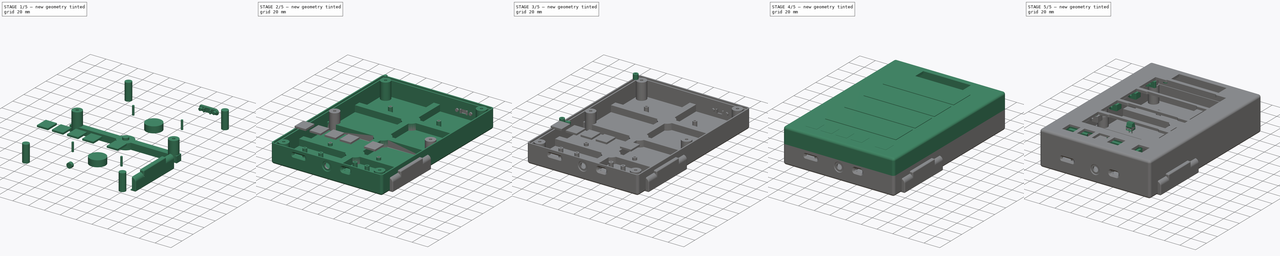
[diagram: build sequence overview — one tinted view per stage of 5, left to right]
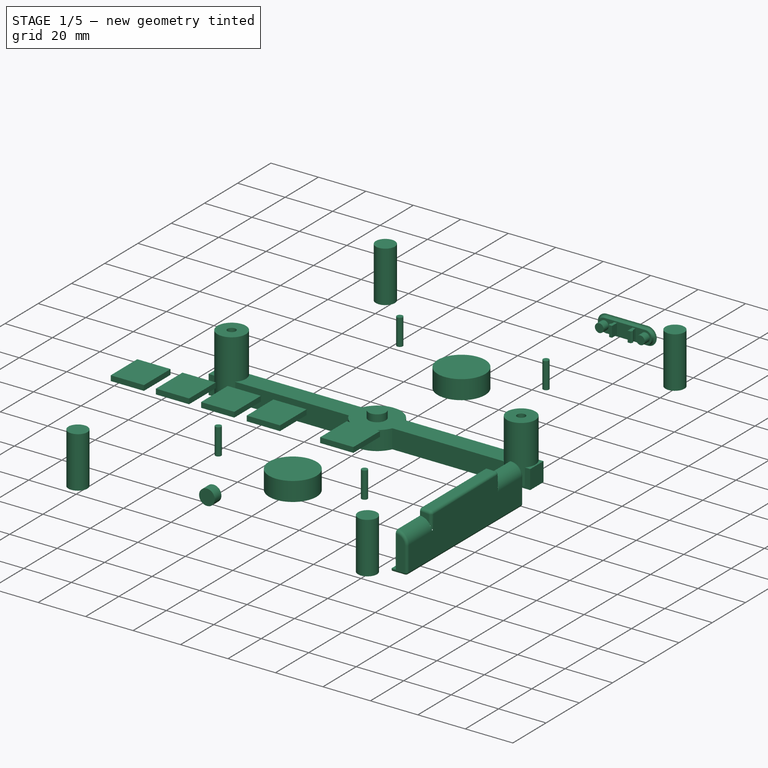
[diagram: stage 1 of 5 — iso view after this stage's code; geometry added in this stage tinted green]
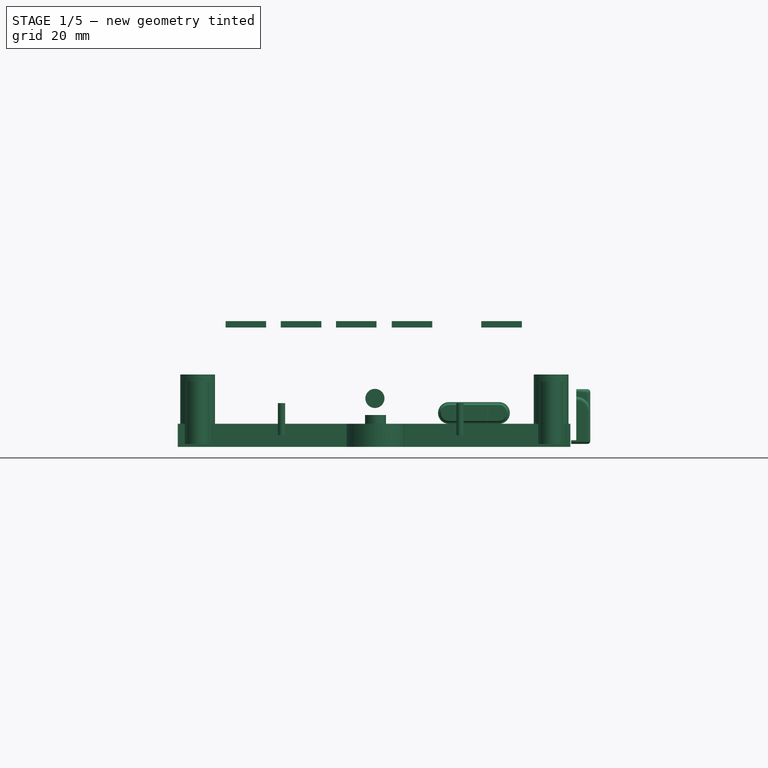
[diagram: stage 1 of 5 — front view after this stage's code; geometry added in this stage tinted green]
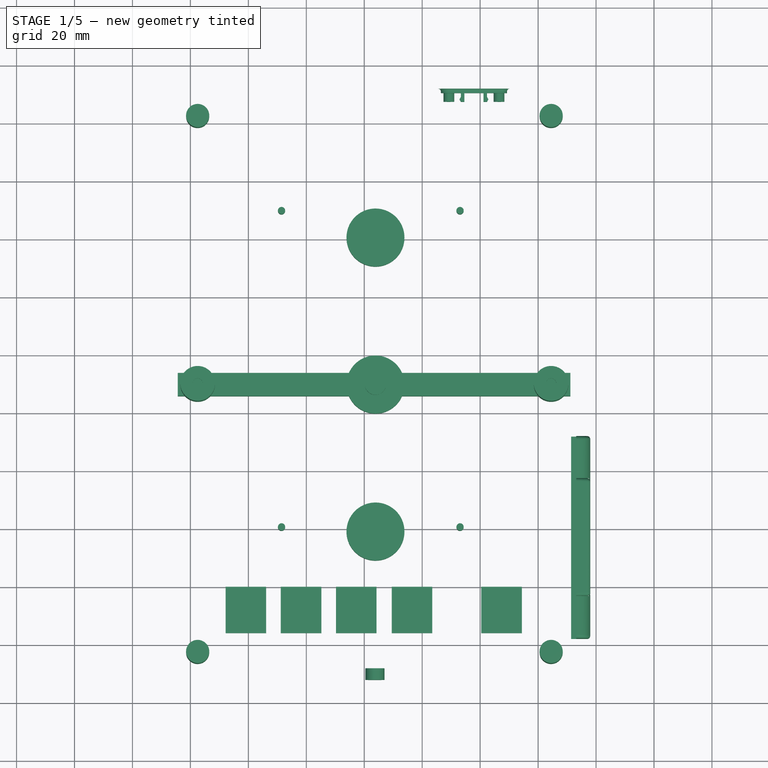
[diagram: stage 1 of 5 — top view after this stage's code; geometry added in this stage tinted green]
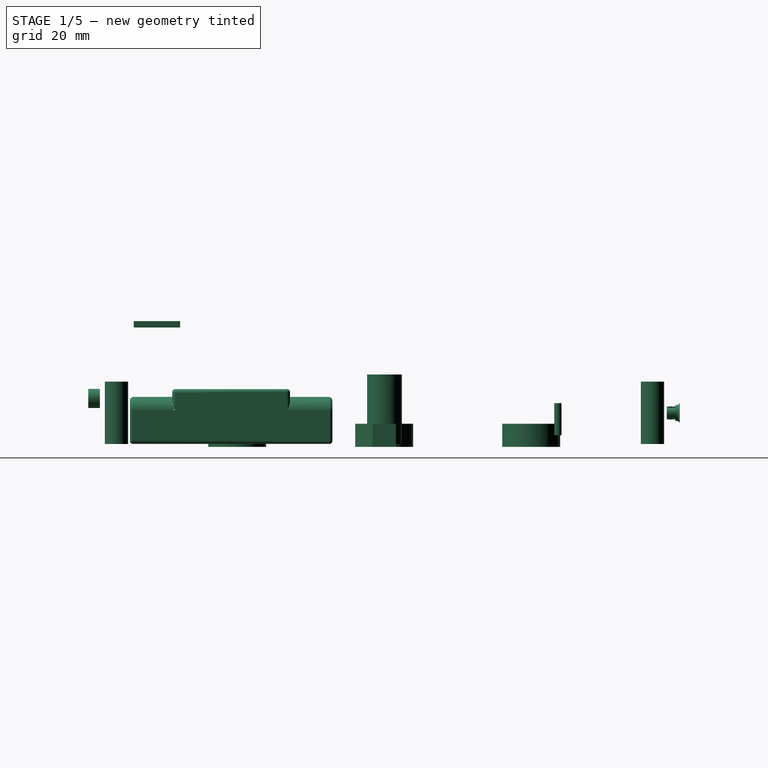
[diagram: stage 1 of 5 — right view after this stage's code; geometry added in this stage tinted green]
FCSTD DOCUMENT  (FreeCAD 1.0R39319 (Git))
Label: case_v2
License: All rights reserved
LicenseURL: https://en.wikipedia.org/wiki/All_rights_reserved
objects: Part::Feature×621, Part::Cylinder×62, Part::MultiFuse×54, Part::FeaturePython×40, Part::Box×29, Sketcher::SketchObject×23, Part::Extrusion×23, App::Link×21, App::Part×19, App::LinkGroup×19, PartDesign::FeatureBase×15, PartDesign::Body×15, Part::Cut×14, Part::Fillet×5, PartDesign::CoordinateSystem×2, Part::Thickness×2, Part::Compound2×1, Part::Chamfer×1, Part::Sweep×1
note: 945 computed .brp shape members not serialized (recipe doc carries the construction recipe); baked Part::Feature solids carry a one-line shape summary decoded from their .brp

FEATURE [Part::FeaturePython] Tube016  # WARN: FeaturePython — macro-defined, semantics opaque (R4)
  AttacherType = Attacher::AttachEngine3D
  Height = 24
  InnerRadius = 1.75
  OuterRadius = 6
  Placement = pos=(-57.5,50,-40.7) rot=(0,0,1;0rad)
FEATURE [Part::FeaturePython] Tube017  # WARN: FeaturePython — macro-defined, semantics opaque (R4)
  AttacherType = Attacher::AttachEngine3D
  Height = 24
  InnerRadius = 1.75
  OuterRadius = 6
  Placement = pos=(64.5,50,-40.7) rot=(0,0,1;0rad)
FEATURE [Part::Cylinder] Cylinder003
  Angle = 360
  AttacherType = Attacher::AttachEngine3D
  FirstAngle = 0
  Height = 21.5
  Placement = pos=(-57.5,-42.5,-40.7) rot=(0,0,1;0rad)
  Radius = 4
  SecondAngle = 0
FEATURE [Part::Cylinder] Cylinder004
  Angle = 360
  AttacherType = Attacher::AttachEngine3D
  FirstAngle = 0
  Height = 21.5
  Placement = pos=(64.5,-42.5,-40.7) rot=(0,0,1;0rad)
  Radius = 4
  SecondAngle = 0
FEATURE [Part::Cylinder] Cylinder005
  Angle = 360
  AttacherType = Attacher::AttachEngine3D
  FirstAngle = 0
  Height = 21.5
  Placement = pos=(64.5,142.5,-40.7) rot=(0,0,1;0rad)
  Radius = 4
  SecondAngle = 0
FEATURE [Part::Cylinder] Cylinder006
  Angle = 360
  AttacherType = Attacher::AttachEngine3D
  FirstAngle = 0
  Height = 21.5
  Placement = pos=(-57.5,142.5,-40.7) rot=(0,0,1;0rad)
  Radius = 4
  SecondAngle = 0
FEATURE [Part::Cylinder] Cylinder007
  Angle = 360
  AttacherType = Attacher::AttachEngine3D
  FirstAngle = 0
  Height = 21.5
  Placement = pos=(-57.5,50,-40.7) rot=(0,0,1;0rad)
  Radius = 4
  SecondAngle = 0
FEATURE [Part::Cylinder] Cylinder008
  Angle = 360
  AttacherType = Attacher::AttachEngine3D
  FirstAngle = 0
  Height = 21.5
  Placement = pos=(64.5,50,-40.7) rot=(0,0,1;0rad)
  Radius = 4
  SecondAngle = 0
FEATURE [Part::MultiFuse] Fusion009  label="bottom_mounting_post_countersink"
  Refine = true
  Shapes = -> [Cylinder003,Cylinder004,Cylinder005,Cylinder006,Cylinder007,Cylinder008]
FEATURE [Part::Feature] Feature  label="usb_programming"
  Placement = pos=(54,135.8,-25) rot=(1,0,0;4.71239rad)
  shape: bbox 25.56 x 29.34 x 10.01 mm, 623 faces, 4 solids (baked)
FEATURE [Part::Cylinder] Cylinder011
  Angle = 360
  AttacherType = Attacher::AttachEngine3D
  FirstAngle = 0
  Height = 1.5
  Placement = pos=(-21.5,150.4,-30) rot=(1,0,0;4.71239rad)
  Radius = 3
  SecondAngle = 0
FEATURE [Part::Cylinder] Cylinder012
  Angle = 360
  AttacherType = Attacher::AttachEngine3D
  FirstAngle = 0
  Height = 10
  Placement = pos=(-21.5,141.9,-30) rot=(1,0,0;4.71239rad)
  Radius = 2
  SecondAngle = 0
FEATURE [Part::MultiFuse] Fusion011  label="screw_cutout001"
  Refine = true
  Shapes = -> [Cylinder012,Cylinder011]
FEATURE [Part::Cylinder] Cylinder013
  Angle = 360
  AttacherType = Attacher::AttachEngine3D
  FirstAngle = 0
  Height = 1.5
  Placement = pos=(-21.5,150.4,-30) rot=(1,0,0;4.71239rad)
  Radius = 3
  SecondAngle = 0
FEATURE [Part::Cylinder] Cylinder014
  Angle = 360
  AttacherType = Attacher::AttachEngine3D
  FirstAngle = 0
  Height = 10
  Placement = pos=(-21.5,141.9,-30) rot=(1,0,0;4.71239rad)
  Radius = 2
  SecondAngle = 0
FEATURE [Part::MultiFuse] Fusion012  label="screw_cutout002"
  Placement = pos=(-17.3,0,0) rot=(0,0,1;0rad)
  Refine = true
  Shapes = -> [Cylinder014,Cylinder013]
FEATURE [Part::MultiFuse] Fusion013  label="usb_screw_cutouts"
  Refine = true
  Shapes = -> [Fusion012,Fusion011]
FEATURE [Part::Box] Box007  label="usb_plug_cutout"
  AttacherType = Attacher::AttachEngine3D
  Height = 4.8
  Length = 9.3
  Placement = pos=(-34.8,148.9,-32.4) rot=(0,0,1;0rad)
  Width = 3
FEATURE [Part::Box] Box008  label="usb_plug_cutout001"
  AttacherType = Attacher::AttachEngine3D
  Height = 5.97
  Length = 17.3
  Placement = pos=(-38.8,150.4,-32.98) rot=(0,0,1;0rad)
  Width = 1.5
FEATURE [Part::MultiFuse] Fusion014  label="usb_cutouts"
  Placement = pos=(68,0,0) rot=(0,0,1;0rad)
  Refine = true
  Shapes = -> [Box007,Fusion013,Box008]
FEATURE [Part::Cylinder] Cylinder015  label="antenna_pass_through"
  Angle = 360
  AttacherType = Attacher::AttachEngine3D
  FirstAngle = 0
  Height = 4
  Placement = pos=(3.68,-48.24,-24.98) rot=(1,0,0;1.5708rad)
  Radius = 3.3
  SecondAngle = 0
FEATURE [Part::Cylinder] Cylinder016
  Angle = 360
  AttacherType = Attacher::AttachEngine3D
  FirstAngle = 0
  Height = 11.1
  Placement = pos=(38.06,0.63,-37.7) rot=(0,0,1;0rad)
  Radius = 1.25
  SecondAngle = 0
FEATURE [Part::Cylinder] Cylinder017
  Angle = 360
  AttacherType = Attacher::AttachEngine3D
  FirstAngle = 0
  Height = 11.1
  Placement = pos=(-23.552,0.63,-37.7) rot=(0,0,1;0rad)
  Radius = 1.25
  SecondAngle = 0
FEATURE [Part::Cylinder] Cylinder018
  Angle = 360
  AttacherType = Attacher::AttachEngine3D
  FirstAngle = 0
  Height = 11.1
  Placement = pos=(-23.552,109.83,-37.7) rot=(0,0,1;0rad)
  Radius = 1.25
  SecondAngle = 0
FEATURE [Part::Cylinder] Cylinder019
  Angle = 360
  AttacherType = Attacher::AttachEngine3D
  FirstAngle = 0
  Height = 11.1
  Placement = pos=(38.06,109.83,-37.7) rot=(0,0,1;0rad)
  Radius = 1.25
  SecondAngle = 0
FEATURE [Part::MultiFuse] Fusion015  label="computer_mount_holes"
  Placement = pos=(-5,0,0) rot=(0,0,1;0rad)
  Refine = true
  Shapes = -> [Cylinder016,Cylinder017,Cylinder018,Cylinder019]
FEATURE [Part::Feature] Solid242  label="ZL202-16_P2-54_L20-3_W5-08_H8-9"
  Placement = pos=(-43.8,-5.7,-1.8) rot=(-0.57735,-0.57735,0.57735;2.0944rad)
  shape: bbox 5.08 x 20.32 x 11.94 mm, 372 faces (baked)
FEATURE [Part::Feature] Solid243  label="ZL202-16_P2-54_L20-3_W5-08_H8-010"
  Placement = pos=(-43.8,29.4,-1.8) rot=(-0.57735,-0.57735,0.57735;2.0944rad)
  shape: bbox 5.08 x 20.32 x 11.94 mm, 372 faces (baked)
FEATURE [Part::Feature] Solid244  label="ZL202-16_P2-54_L20-3_W5-08_H8-011"
  Placement = pos=(-43.8,64.4,-1.8) rot=(-0.57735,-0.57735,0.57735;2.0944rad)
  shape: bbox 5.08 x 20.32 x 11.94 mm, 372 faces (baked)
FEATURE [Part::Feature] Solid245  label="ZL202-16_P2-54_L20-3_W5-08_H8-012"
  Placement = pos=(-43.8,99.4,-1.8) rot=(-0.57735,-0.57735,0.57735;2.0944rad)
  shape: bbox 5.08 x 20.32 x 11.94 mm, 372 faces (baked)
FEATURE [Part::Feature] Feature001  label="Conector IDC 16"
  Placement = pos=(-43.8,3.2,-11.5) rot=(0,0,1;1.5708rad)
  shape: bbox 6.86 x 25 x 15.7 mm, 1071 faces, 19 solids (baked)
FEATURE [App::LinkGroup] LinkGroup013  label="oled_w_header001"
  ElementList = -> [Shape025,Solid242,Feature001]
  LinkMode = 0
FEATURE [Part::Feature] Feature002  label="Conector IDC 017"
  Placement = pos=(-43.8,38.3,-11.5) rot=(0,0,1;1.5708rad)
  shape: bbox 6.86 x 25 x 15.7 mm, 1071 faces, 19 solids (baked)
FEATURE [App::LinkGroup] LinkGroup014  label="oled_w_header002"
  ElementList = -> [Shape026,Solid243,Feature002]
  LinkMode = 0
FEATURE [Part::Feature] Feature003  label="Conector IDC 018"
  Placement = pos=(-43.8,73.3,-11.5) rot=(0,0,1;1.5708rad)
  shape: bbox 6.86 x 25 x 15.7 mm, 1071 faces, 19 solids (baked)
FEATURE [App::LinkGroup] LinkGroup015  label="oled_w_header003"
  ElementList = -> [Shape027,Solid244,Feature003]
  LinkMode = 0
FEATURE [Part::Feature] Feature004  label="Conector IDC 019"
  Placement = pos=(-43.8,108.3,-11.5) rot=(0,0,1;1.5708rad)
  shape: bbox 6.86 x 25 x 15.7 mm, 1071 faces, 19 solids (baked)
FEATURE [App::LinkGroup] LinkGroup016  label="oled_w_header004"
  ElementList = -> [Shape028,Solid245,Feature004]
  LinkMode = 0
FEATURE [App::LinkGroup] LinkGroup010  label="display"
  ElementList = -> [Board_df5f,LinkGroup013,LinkGroup016,LinkGroup015,LinkGroup014]
  LinkMode = 0
  Placement = pos=(1.19209e-07,3.8147e-06,1) rot=(0,0,1;0rad)
FEATURE [App::LinkGroup] LinkGroup011  label="electronics"
  ElementList = -> [Board_1dc7,LinkGroup,LinkGroup001,LinkGroup010,LinkGroup009,Solid241,Feature]
  LinkMode = 0
FEATURE [Part::Cylinder] Cylinder060
  Angle = 360
  AttacherType = Attacher::AttachEngine3D
  FirstAngle = 0
  Height = 9
  Placement = pos=(3.86881,49.9,-39.7) rot=(0,0,1;0rad)
  Radius = 3.625
  SecondAngle = 0
FEATURE [Part::Box] Box020  label="Cube016"
  AttacherType = Attacher::AttachEngine3D
  Height = 8
  Length = 135.5
  Placement = pos=(-64.35,45.91,-41.7) rot=(0,0,1;0rad)
  Width = 8
FEATURE [Part::Cylinder] Cylinder061
  Angle = 360
  AttacherType = Attacher::AttachEngine3D
  FirstAngle = 0
  Height = 8
  Placement = pos=(3.87,-0.84,-41.7) rot=(0,0,1;0rad)
  Radius = 10
  SecondAngle = 0
FEATURE [Part::Cylinder] Cylinder062
  Angle = 360
  AttacherType = Attacher::AttachEngine3D
  FirstAngle = 0
  Height = 8
  Placement = pos=(3.87,100.64,-41.7) rot=(0,0,1;0rad)
  Radius = 10
  SecondAngle = 0
FEATURE [Part::Cylinder] Cylinder063
  Angle = 360
  AttacherType = Attacher::AttachEngine3D
  FirstAngle = 0
  Height = 8
  Placement = pos=(3.87,49.9,-41.7) rot=(0,0,1;0rad)
  Radius = 10
  SecondAngle = 0
FEATURE [Part::Box] Box023  label="Cube023"
  AttacherType = Attacher::AttachEngine3D
  Height = 11.43
  Length = 69.85
  Placement = pos=(0,-1,0) rot=(0,0,1;0rad)
  Width = 4.81
FEATURE [Part::Box] Box024  label="Cube024"
  AttacherType = Attacher::AttachEngine3D
  Height = 7.62
  Length = 40.64
  Placement = pos=(14.605,-1,11.303) rot=(0,0,1;0rad)
  Width = 4.81
FEATURE [Part::Box] Box025  label="Cube025"
  AttacherType = Attacher::AttachEngine3D
  Height = 1.27
  Length = 69.85
  Placement = pos=(0,-2.77,0) rot=(0,0,1;0rad)
  Width = 2.27
FEATURE [Sketcher::SketchObject] Sketch015
  ArcFitTolerance = 1e-06
  AttachmentSupport = -> [Box023]
  ExternalGeometry = -> [Box023]
  FullyConstrained = true
  MakeInternals = false
  MapMode = 5
  Placement = pos=(69.85,-1,0) rot=(0.57735,0.57735,0.57735;2.0944rad)
  sketch-geometry (3):
    g0: ArcOfCircle CenterX=0 CenterY=11.43 CenterZ=0 NormalX=0 NormalY=0 NormalZ=1 AngleXU=0 Radius=4.81 StartAngle=0 EndAngle=1.5708
    g1: LineSegment StartX=3e-16 StartY=16.24 StartZ=0 EndX=0 EndY=11.43 EndZ=0
    g2: LineSegment StartX=0 StartY=11.43 StartZ=0 EndX=4.81 EndY=11.43 EndZ=0
  constraints (7):
    c: Coincident(g0,g-3)
    c: Coincident(g0,g-3)
    c: PointOnObject(g0,g-2)
    c: Coincident(g1,g0)
    c: Coincident(g1,g0)
    c: Coincident(g2,g0)
    c: Coincident(g2,g0)
FEATURE [Part::Extrusion] Extrude020
  Base = -> Sketch015
  Dir = (1,0,0)
  DirMode = 2
  FaceMakerClass = Part::FaceMakerBullseye
  FaceMakerMode = 3
  LengthFwd = 0
  LengthRev = 69.85
  Solid = true
  Symmetric = false
FEATURE [Part::MultiFuse] Fusion070  label="tablet_mount_base"
  Placement = pos=(74.17,32,-40.68) rot=(0,0,1;4.71239rad)
  Shapes = -> [Box023,Extrude020,Box024,Box025]
FEATURE [Part::Fillet] Fillet004  label="tablet_mount001"
  Base = -> Fusion070
  EdgeLinks = -> Fusion070 [Edge4,Edge6,Edge10,Edge11,Edge13,Edge18,Edge27,Edge29,Edge31,Edge33,Edge35,Edge36,Edge49,Edge53,Edge54,Edge56,Edge57,Edge58]
  Edges = 18 edges: [Edge4 r=1,Edge6 r=1,Edge10 r1=1 r2=1.3,Edge11 r=1,Edge13 r=1,Edge18 r=1,Edge27 r1=1 r2=1.3,Edge29 r1=1 r2=1.3,Edge31 r1=1 r2=1.3,Edge33 r1=1 r2=1.3,Edge35 r1=1 r2=1.3,Edge36 r=1,Edge49 r1=1 r2=1.3,Edge53 r1=1 r2=1.3,Edge54 r1=1 r2=1.3,Edge56 r1=1 r2=1.3,Edge57 r1=1 r2=1.3,Edge58 r1=1 r2=1.3]
FEATURE [PartDesign::FeatureBase] Clone015
  BaseFeature = -> Fillet004
  Suppressed = false
FEATURE [PartDesign::Body] Body015  label="tablet_mount002"
  AllowCompound = false
  Group = -> [Clone015]
  Origin = -> Origin039
  Placement = pos=(0,107,0) rot=(0,0,1;0rad)
  Tip = -> Clone015
FEATURE [PartDesign::FeatureBase] Clone016
  BaseFeature = -> Fillet004
  Suppressed = false
FEATURE [PartDesign::Body] Body016  label="tablet_mount003"
  AllowCompound = false
  Group = -> [Clone016]
  Origin = -> Origin040
  Placement = pos=(6.6,-6.7,0) rot=(0,0,1;3.14159rad)
  Tip = -> Clone016
FEATURE [PartDesign::FeatureBase] Clone017
  BaseFeature = -> Fillet004
  Suppressed = false
FEATURE [PartDesign::Body] Body017  label="tablet_mount004"
  AllowCompound = false
  Group = -> [Clone017]
  Origin = -> Origin041
  Placement = pos=(6.6,101.1,0) rot=(0,0,1;3.14159rad)
  Tip = -> Clone017
FEATURE [App::LinkGroup] LinkGroup017  label="tablet_mounts"
  ElementList = -> [Fillet004,Body015,Body016,Body017]
  LinkMode = 0
FEATURE [App::LinkGroup] LinkGroup018  label="lower_case_with_tablet_mounts"
  ElementList = -> [LinkGroup017,Cut007]
  LinkMode = 0
FEATURE [Part::Feature] Solid246  label="C-2015699-1-B-3D_ASM"
  Placement = pos=(10.68,33.36,-11.13) rot=(0,-1,0;3.14159rad)
  shape: bbox 10.85 x 3.001 x 2.061 mm, 157 faces (baked)
FEATURE [Part::Box] Box026  label="Cube026"
  AttacherType = Attacher::AttachEngine3D
  Height = 2.2
  Length = 14
  Placement = pos=(40.4,-36.55,-0.5) rot=(0,0,1;0rad)
  Width = 16
FEATURE [Part::Box] Box027  label="Cube027"
  AttacherType = Attacher::AttachEngine3D
  Height = 2.2
  Length = 14
  Placement = pos=(9.47,-36.55,-0.5) rot=(0,0,1;0rad)
  Width = 16
FEATURE [Part::Box] Box028  label="Cube028"
  AttacherType = Attacher::AttachEngine3D
  Height = 2.2
  Length = 14
  Placement = pos=(-9.77,-36.55,-0.5) rot=(0,0,1;0rad)
  Width = 16
FEATURE [Part::Box] Box029  label="Cube029"
  AttacherType = Attacher::AttachEngine3D
  Height = 2.2
  Length = 14
  Placement = pos=(-28.81,-36.55,-0.5) rot=(0,0,1;0rad)
  Width = 16
FEATURE [Part::Box] Box030  label="Cube030"
  AttacherType = Attacher::AttachEngine3D
  Height = 2.2
  Length = 14
  Placement = pos=(-47.85,-36.55,-0.5) rot=(0,0,1;0rad)
  Width = 16
FEATURE [Sketcher::SketchObject] Sketch016
  ArcFitTolerance = 1e-06
  AttachmentSupport = -> [Fusion014]
  ExternalGeometry = -> [Fusion014]
  FullyConstrained = true
  MakeInternals = false
  MapMode = 5
  Placement = pos=(68,151.9,0) rot=(0,0.707107,0.707107;3.14159rad)
  sketch-geometry (4):
    g0: LineSegment StartX=38.8 StartY=-27.25 StartZ=0 EndX=21.5 EndY=-27.25 EndZ=0
    g1: LineSegment StartX=38.8 StartY=-32.75 StartZ=0 EndX=21.5 EndY=-32.75 EndZ=0
    g2: ArcOfCircle CenterX=21.5 CenterY=-30 CenterZ=0 NormalX=0 NormalY=0 NormalZ=1 AngleXU=0 Radius=2.75 StartAngle=1.5708 EndAngle=4.71239
    g3: ArcOfCircle CenterX=38.8 CenterY=-30 CenterZ=0 NormalX=0 NormalY=0 NormalZ=1 AngleXU=0 Radius=2.75 StartAngle=4.71239 EndAngle=7.85398
  constraints (12):
    c: DistanceX(g0,g1) = 0
    c: Horizontal(g0)
    c: Equal(g0,g1)
    c: Angle(g2) = 3.14159
    c: Coincident(g1,g2)
    c: Coincident(g2,g0)
    c: Coincident(g2,g-11)
    c: Radius(g2) = 2.75
    c: Coincident(g3,g-6)
    c: Coincident(g3,g0)
    c: Coincident(g3,g1)
    c: Angle(g3) = 3.14159
FEATURE [Part::Extrusion] Extrude021
  Base = -> Sketch016
  Dir = (0,1,-2e-16)
  DirMode = 2
  FaceMakerClass = Part::FaceMakerBullseye
  FaceMakerMode = 3
  LengthFwd = 0
  LengthRev = 1.5
  Solid = true
  Symmetric = false
FEATURE [Sketcher::SketchObject] Sketch017
  ArcFitTolerance = 1e-06
  AttachmentSupport = -> [Extrude021]
  ExternalGeometry = -> [Fusion014]
  FullyConstrained = true
  MakeInternals = false
  MapMode = 5
  Placement = pos=(0,150.4,0) rot=(1,0,0;1.5708rad)
  sketch-geometry (10):
    g0: Circle CenterX=29.2 CenterY=-30 CenterZ=0 NormalX=0 NormalY=0 NormalZ=1 AngleXU=0 Radius=1.85
    g1: Circle CenterX=46.5 CenterY=-30 CenterZ=0 NormalX=0 NormalY=0 NormalZ=1 AngleXU=0 Radius=1.85
    g2: LineSegment StartX=33.35 StartY=-27.75 StartZ=0 EndX=33.35 EndY=-32.25 EndZ=0
    g3: LineSegment StartX=33.35 StartY=-32.25 StartZ=0 EndX=34.55 EndY=-32.25 EndZ=0
    g4: LineSegment StartX=42.35 StartY=-32.25 StartZ=0 EndX=42.35 EndY=-27.75 EndZ=0
    g5: LineSegment StartX=42.35 StartY=-27.75 StartZ=0 EndX=41.15 EndY=-27.75 EndZ=0
    g6: LineSegment StartX=34.55 StartY=-27.75 StartZ=0 EndX=34.55 EndY=-32.25 EndZ=0
    g7: LineSegment StartX=41.15 StartY=-27.75 StartZ=0 EndX=41.15 EndY=-32.25 EndZ=0
    g8: LineSegment StartX=34.55 StartY=-27.75 StartZ=0 EndX=33.35 EndY=-27.75 EndZ=0
    g9: LineSegment StartX=41.15 StartY=-32.25 StartZ=0 EndX=42.35 EndY=-32.25 EndZ=0
  constraints (30):
    c: Coincident(g0,g-3)
    c: Coincident(g1,g-8)
    c: Radius(g0) = 1.85
    c: Radius(g1) = 1.85
    c: Coincident(g2,g3)
    c: Coincident(g9,g4)
    c: Coincident(g4,g5)
    c: Coincident(g8,g2)
    c: Vertical(g2)
    c: Vertical(g4)
    c: Horizontal(g3)
    c: Horizontal(g5)
    c: DistanceX(g-7,g2) = 0.15
    c: DistanceY(g2,g-7) = 0.15
    c: DistanceY(g-6,g9) = 0.15
    c: DistanceX(g9,g-6) = 0.15
    c: PointOnObject(g6,g8)
    c: Vertical(g6)
    c: PointOnObject(g7,g9)
    c: Vertical(g7)
    c: Coincident(g5,g7)
    c: PointOnObject(g8,g6)
    c: Coincident(g3,g6)
    c: PointOnObject(g9,g7)
    c: DistanceY(g-7,g3) = 0.15
    c: DistanceY(g5,g-5) = 0.15
    c: DistanceX(g8,g8) = 1.2
    c: Horizontal(g8)
    c: Equal(g5,g8)
    c: Horizontal(g9)
FEATURE [Part::Extrusion] Extrude022
  Base = -> Sketch017
  Dir = (0,-1,2e-16)
  DirMode = 2
  FaceMakerClass = Part::FaceMakerBullseye
  FaceMakerMode = 3
  LengthFwd = 3
  LengthRev = 0
  Solid = true
  Symmetric = false
FEATURE [Sketcher::SketchObject] Sketch018
  ArcFitTolerance = 1e-06
  AttachmentSupport = -> [Extrude022]
  ExternalGeometry = -> [Extrude022]
  FullyConstrained = true
  MakeInternals = false
  MapMode = 5
  Placement = pos=(0,-6.2e-15,-27.75) rot=(0,0,1;0rad)
  sketch-geometry (6):
    g0: LineSegment StartX=33.35 StartY=147.4 StartZ=0 EndX=33.35 EndY=149.1 EndZ=0
    g1: LineSegment StartX=42.35 StartY=147.4 StartZ=0 EndX=42.35 EndY=149.1 EndZ=0
    g2: LineSegment StartX=33.35 StartY=149.1 StartZ=0 EndX=32.8593 EndY=148.25 EndZ=0
    g3: LineSegment StartX=32.8593 StartY=148.25 StartZ=0 EndX=33.35 EndY=147.4 EndZ=0
    g4: LineSegment StartX=42.35 StartY=149.1 StartZ=0 EndX=42.8407 EndY=148.25 EndZ=0
    g5: LineSegment StartX=42.8407 StartY=148.25 StartZ=0 EndX=42.35 EndY=147.4 EndZ=0
  constraints (16):
    c: Coincident(g0,g-3)
    c: PointOnObject(g0,g-3)
    c: Coincident(g1,g-4)
    c: PointOnObject(g1,g-4)
    c: DistanceY(g0,g0) = 1.7
    c: Equal(g0,g1)
    c: Coincident(g2,g0)
    c: Coincident(g3,g0)
    c: Coincident(g2,g3)
    c: Equal(g2,g3)
    c: Coincident(g4,g1)
    c: Coincident(g5,g4)
    c: Coincident(g5,g1)
    c: Equal(g4,g5)
    c: Angle(g3,g2) = 2.0944
    c: Equal(g4,g2)
FEATURE [Part::Extrusion] Extrude023
  Base = -> Sketch018
  Dir = (0,0,1)
  DirMode = 2
  FaceMakerClass = Part::FaceMakerBullseye
  FaceMakerMode = 3
  LengthFwd = 0
  LengthRev = 4.5
  Solid = true
  Symmetric = false
FEATURE [Sketcher::SketchObject] Sketch019
  ArcFitTolerance = 1e-06
  AttachmentSupport = -> [Extrude021]
  ExternalGeometry = -> [Extrude021]
  FullyConstrained = true
  MakeInternals = false
  MapMode = 1
  Placement = pos=(46.5,150.4,-27.25) rot=(0.57735,0.57735,0.57735;2.0944rad)
  sketch-geometry (3):
    g0: LineSegment StartX=0.5 StartY=3.96447e-11 StartZ=0 EndX=1.5 EndY=3.96447e-11 EndZ=0
    g1: LineSegment StartX=1.5 StartY=3.96447e-11 StartZ=0 EndX=1.5 EndY=1 EndZ=0
    g2: ArcOfCircle CenterX=0.5 CenterY=1 CenterZ=0 NormalX=0 NormalY=0 NormalZ=1 AngleXU=0 Radius=1 StartAngle=4.71239 EndAngle=6.28319
  constraints (9):
    c: Vertical(g1)
    c: Horizontal(g0)
    c: DistanceX(g0,g0) = 1
    c: Coincident(g0,g1)
    c: Coincident(g0,g-3)
    c: DistanceY(g1,g1) = 1
    c: Coincident(g1,g2)
    c: Coincident(g0,g2)
    c: DistanceX(g2,g0) = 0
FEATURE [Sketcher::SketchObject] Sketch020
  ArcFitTolerance = 1e-06
  AttachmentSupport = -> [Extrude021]
  ExternalGeometry = -> [Extrude021]
  FullyConstrained = true
  MakeInternals = false
  MapMode = 5
  Placement = pos=(0,150.4,0) rot=(1,0,0;1.5708rad)
  sketch-geometry (4):
    g0: LineSegment StartX=29.2 StartY=-27.25 StartZ=0 EndX=46.5 EndY=-27.25 EndZ=0
    g1: LineSegment StartX=29.2 StartY=-32.75 StartZ=0 EndX=46.5 EndY=-32.75 EndZ=0
    g2: ArcOfCircle CenterX=29.2 CenterY=-30 CenterZ=0 NormalX=0 NormalY=0 NormalZ=1 AngleXU=0 Radius=2.75 StartAngle=1.5708 EndAngle=4.71239
    g3: ArcOfCircle CenterX=46.5 CenterY=-30 CenterZ=0 NormalX=0 NormalY=0 NormalZ=1 AngleXU=0 Radius=2.75 StartAngle=4.71239 EndAngle=7.85398
  constraints (9):
    c: Coincident(g0,g-4)
    c: Coincident(g0,g-6)
    c: Coincident(g1,g-5)
    c: Coincident(g1,g-6)
    c: Coincident(g2,g-4)
    c: Coincident(g2,g0)
    c: Coincident(g3,g-6)
    c: Coincident(g3,g0)
    c: Coincident(g3,g1)
FEATURE [Part::Sweep] Sweep
  Frenet = true
  Sections = -> [Sketch019]
  Solid = true
  Spine = -> Sketch020
  Transition = 1
FEATURE [Part::MultiFuse] Fusion071  label="usb_cover"
  Refine = true
  Shapes = -> [Extrude021,Extrude022,Extrude023,Sweep]
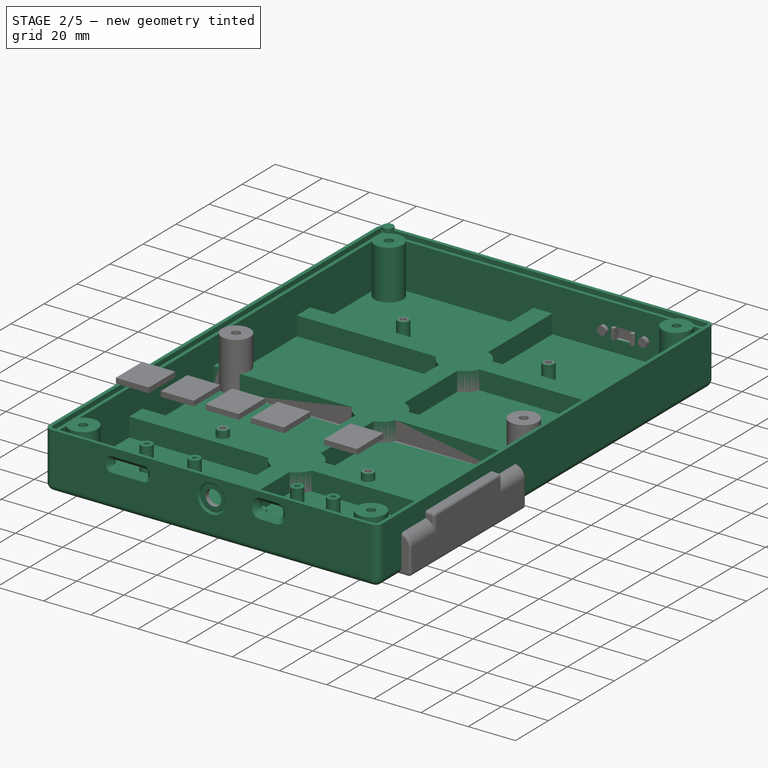
[diagram: stage 2 of 5 — iso view after this stage's code; geometry added in this stage tinted green]
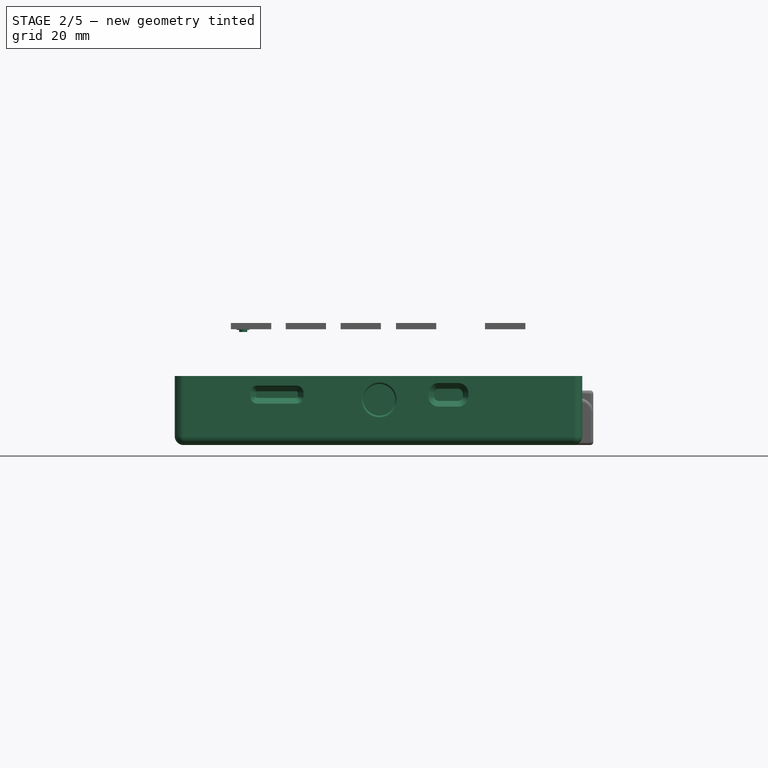
[diagram: stage 2 of 5 — front view after this stage's code; geometry added in this stage tinted green]
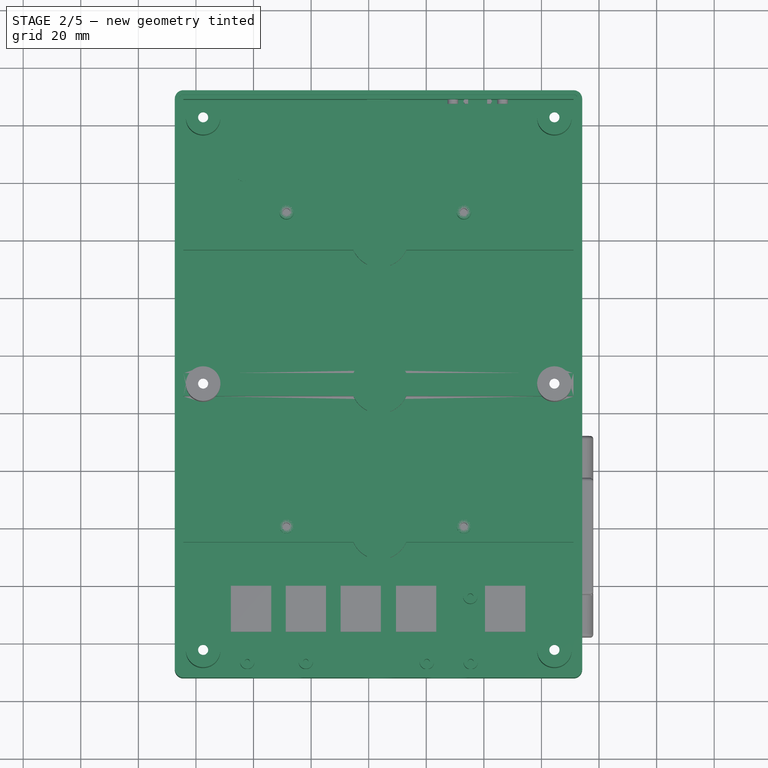
[diagram: stage 2 of 5 — top view after this stage's code; geometry added in this stage tinted green]
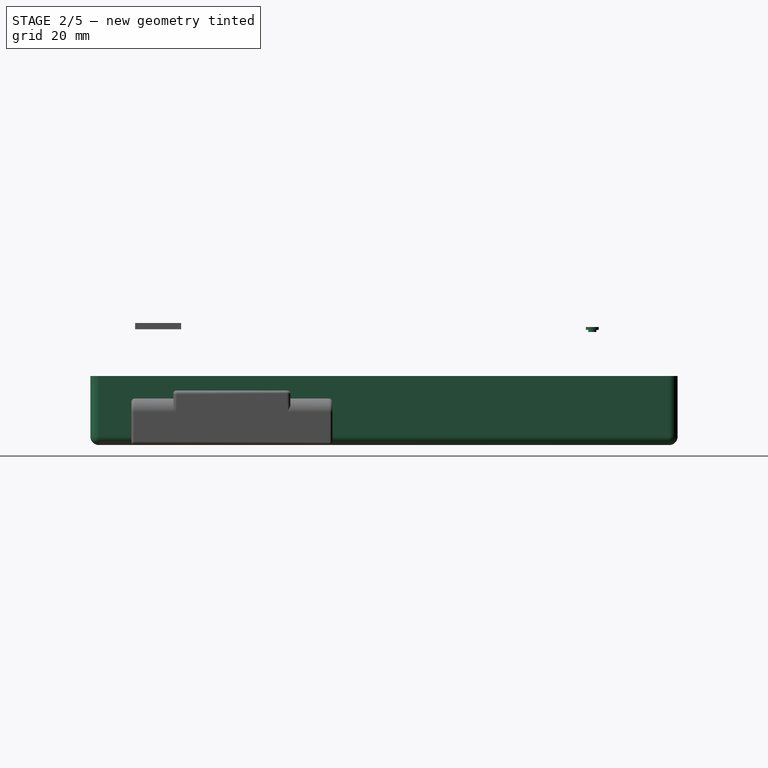
[diagram: stage 2 of 5 — right view after this stage's code; geometry added in this stage tinted green]
FEATURE [Part::Feature] Solid219  label="JST_SH4"
  Placement = pos=(3.112,16.256,1.57) rot=(0,0,-1;1.5708rad)
  shape: bbox 4.95 x 6 x 2.96 mm, 89 faces (baked)
FEATURE [App::LinkGroup] LinkGroup001  label="usb_pd"
  ElementList = -> [Solid215,Link,Compound,Link001,Solid217,Compound002,Compound005,Solid219,Compound003,Compound004]
  LinkMode = 0
  Placement = pos=(37.847,-21.2009,-26.443) rot=(0,0,1;3.14159rad)
FEATURE [Part::Feature] Compound006  label="KAILH_SOCKET"
  Placement = pos=(9.525,9.525,0) rot=(0,1,0;3.14159rad)
  shape: bbox 15.9 x 6.106 x 3 mm, 111 faces, 3 solids (baked)
FEATURE [Part::Feature] Compound007  label="NEO3535_REVERSE"
  Placement = pos=(9.525,4.826,0) rot=(1,0,0;3.14159rad)
  shape: bbox 5.88 x 2.8 x 1.78 mm, 41 faces, 5 solids (baked)
FEATURE [Part::Feature] Compound008  label="Pins"
  Placement = pos=(2.4,4.95,2) rot=(0,1,0;3.14159rad)
  shape: bbox 7.15 x 2.93 x 5.4 mm, 16 faces, 2 solids (baked)
FEATURE [Part::Feature] Solid220  label="Board001"
  shape: bbox 19.05 x 21.59 x 1.57 mm, 42 faces (baked)
FEATURE [Part::Feature] Solid221  label="SOD-323"
  Placement = pos=(6.477,8.509,1.57) rot=(0,0,1;1.5708rad)
  shape: bbox 1.35 x 2.7 x 1.1 mm, 38 faces (baked)
FEATURE [Part::Feature] Solid222  label="0603-NO"
  Placement = pos=(14.732,5.588,1.57) rot=(0,0,1;0rad)
  shape: bbox 1.6 x 0.9 x 0.8 mm, 14 faces (baked)
FEATURE [App::LinkGroup] LinkGroup002  label="PCB Component"
  ElementList = -> [Solid220,Compound006,Compound007,Solid221,Solid222]
  LinkMode = 0
FEATURE [Part::Feature] Solid223  label="Body"
  shape: bbox 15.6 x 15.6 x 14.1 mm, 109 faces (baked)
FEATURE [Part::Feature] Solid224  label="Button"
  Placement = pos=(0,-9e-16,11.1) rot=(0,0,1;0rad)
  shape: bbox 7.1 x 5.5 x 5.2 mm, 45 faces (baked)
FEATURE [App::LinkGroup] LinkGroup003  label="Kailh-MX-Switch v5"
  ElementList = -> [Solid223,Solid224,Compound008]
  LinkMode = 0
  Placement = pos=(9.53746,9.53746,-1.2e-15) rot=(0,1,0;3.14159rad)
FEATURE [App::LinkGroup] LinkGroup004  label="neokey"
  ElementList = -> [LinkGroup002,LinkGroup003]
  LinkMode = 0
  Placement = pos=(-26.284,-110.236,13.462) rot=(1,0,0;3.14159rad)
FEATURE [Part::Feature] Solid225  label="MX_Keycap"
  Placement = pos=(-7.8,-128.7,23.95) rot=(0,0.707107,0.707107;3.14159rad)
  shape: bbox 18.01 x 18 x 11.38 mm, 348 faces (baked)
FEATURE [App::LinkGroup] LinkGroup005  label="neokey001"
  ElementList = -> [LinkGroup004,Solid225]
  LinkMode = 0
  Placement = pos=(64.175,94.225,0.499999) rot=(0,0,1.01235;0rad)
FEATURE [Part::Feature] Compound009  label="KAILH_SOCKET001"
  shape: bbox 15.9 x 6.106 x 3 mm, 111 faces, 3 solids (baked)
FEATURE [Part::Feature] Compound010  label="NEO3535_REVERSE001"
  shape: bbox 5.88 x 2.8 x 1.78 mm, 41 faces, 5 solids (baked)
FEATURE [Part::Feature] Compound011  label="CHIPLED_0603_NOOUTLINE001"
  Placement = pos=(74.358,17.082,1.57) rot=(0,0,1;1.5708rad)
  shape: bbox 1.961 x 0.7932 x 0.7145 mm, 63 faces, 5 solids (baked)
FEATURE [Part::Feature] Compound012  label="QFN24_4MM"
  Placement = pos=(39.497,8.128,1.57) rot=(0,0,1;3.14159rad)
  shape: bbox 4.002 x 4.002 x 1 mm, 250 faces, 13 solids (baked)
FEATURE [Part::Feature] Compound013  label="Pins001"
  Placement = pos=(2.4,4.95,2) rot=(0,1,0;3.14159rad)
  shape: bbox 7.15 x 2.93 x 5.4 mm, 16 faces, 2 solids (baked)
FEATURE [App::Link] Link002  label="KAILH_SOCKET002"
  ElementCount = 4
  LinkedObject = -> Compound009
  PlacementList = 4 placements: arithmetic series from (9.525,10.795,0) step (19.05,0,0) to (66.675,10.795,0)
  ScaleList = (4) [(1,1,1),(1,1,1),(1,1,1),(1,1,1)]
  ShowElement = false
FEATURE [App::Link] Link003  label="NEO3535_REVERSE002"
  ElementCount = 4
  LinkedObject = -> Compound010
  PlacementList = 4 placements: [(66.675,5.715,0),(47.752,5.715,0),(28.575,5.715,0),(9.652,5.715,0)]
  ScaleList = (4) [(1,1,1),(1,1,1),(1,1,1),(1,1,1)]
  ShowElement = false
FEATURE [App::Link] Link004  label="0603-NO001"
  ElementCount = 8
  LinkedObject = -> Solid227
  PlacementList = 8 placements: [(63.818,8.826,1.57),(58.102,11.43,1.57),(74.358,15.621,1.57),(50.356,8.192,1.57),(24.32,5.778,1.57),(6.604,8.763,1.57),(20.193,6.731,1.57),(57.976,5.842,1.57)]
  ScaleList = (8) [(1,1,1),(1,1,1),(1,1,1),(1,1,1),(1,1,1),(1,1,1),(1,1,1),(1,1,1)]
  ShowElement = false
FEATURE [App::Link] Link005  label="0805-NO002"
  ElementCount = 2
  LinkedObject = -> Solid228
  PlacementList = 2 placements: [(60.96,8.128,1.57),(54.546,8.382,1.57)]
  ScaleList = (2) [(1,1,1),(1,1,1)]
  ShowElement = false
FEATURE [App::Link] Link006  label="JST_SH005"
  ElementCount = 2
  LinkedObject = -> Solid232
  PlacementList = 2 placements: [(2.54,7.62,1.57),(73.66,7.62,1.57)]
  ScaleList = (2) [(1,1,1),(1,1,1)]
  ShowElement = false
FEATURE [Part::Feature] Solid226  label="Board002"
  shape: bbox 76.2 x 21.59 x 1.57 mm, 134 faces (baked)
FEATURE [Part::Feature] Solid227  label="0603-NO002"
  shape: bbox 1.6 x 0.9 x 0.8 mm, 14 faces (baked)
FEATURE [Part::Feature] Solid228  label="0805-NO003"
  shape: bbox 2.198 x 1.45 x 0.1 mm, 6 faces (baked)
FEATURE [Part::Feature] Solid229  label="SOT23-5"
  Placement = pos=(57.34,8.7,1.57) rot=(0,0,1;0rad)
  shape: bbox 3 x 3 x 1.4 mm, 75 faces (baked)
FEATURE [Part::Feature] Solid230  label="RESPACK_4X0603"
  Placement = pos=(14.859,4.064,1.57) rot=(0,0,1;0rad)
  shape: bbox 3.05 x 1.6 x 0.5 mm, 62 faces (baked)
FEATURE [Part::Feature] Solid231  label="SOT363"
  Placement = pos=(14.986,8.255,1.57) rot=(0,0,1;1.5708rad)
  shape: bbox 2.1 x 2 x 1.1 mm, 98 faces (baked)
FEATURE [Part::Feature] Solid232  label="JST_SH006"
  shape: bbox 6 x 4.95 x 2.96 mm, 89 faces (baked)
FEATURE [Part::Feature] Solid233  label="SOT23-5 (1)"
  Placement = pos=(61.341,4.636,1.57) rot=(0,0,1;0rad)
  shape: bbox 3 x 3 x 1.4 mm, 75 faces (baked)
FEATURE [App::LinkGroup] LinkGroup006  label="U7_NeoKey 1x4 QT rev C v2_28bad4062a94"
  ElementList = -> [Solid226,Link002,Link003,Link004,Link005,Solid229,Solid230,Solid231,Link006,Compound011,Compound012,Solid233]
  LinkMode = 0
  Placement = pos=(185.801,-134.366,13.716) rot=(0,1,0;3.14159rad)
FEATURE [Part::Feature] Solid234  label="Body001"
  shape: bbox 15.6 x 15.6 x 14.1 mm, 109 faces (baked)
FEATURE [Part::Feature] Solid235  label="Button001"
  Placement = pos=(0,-9e-16,11.1) rot=(0,0,1;0rad)
  shape: bbox 7.1 x 5.5 x 5.2 mm, 45 faces (baked)
FEATURE [App::LinkGroup] LinkGroup007  label="U7_REDragon-MX-ZT02_28bad4062a94[10]"
  ElementList = -> [Solid234,Solid235,Compound013]
  LinkMode = 0
  Placement = pos=(176.276,-123.571,13.97) rot=(0,0,1;0rad)
FEATURE [App::Link] U7_REDragon_MX_ZT02_28bad4062a94_10__ln_  label="U7_REDragon-MX-ZT02_28bad4062a94[11]"
  LinkPlacement = pos=(157.226,-123.571,13.97) rot=(0,0,1;0rad)
  LinkedObject = -> LinkGroup007
  Placement = pos=(157.226,-123.571,13.97) rot=(0,0,1;0rad)
FEATURE [App::Link] U7_REDragon_MX_ZT02_28bad4062a94_10__ln_001  label="U7_REDragon-MX-ZT02_28bad4062a94[12]"
  LinkPlacement = pos=(138.176,-123.571,13.97) rot=(0,0,1;0rad)
  LinkedObject = -> LinkGroup007
  Placement = pos=(138.176,-123.571,13.97) rot=(0,0,1;0rad)
FEATURE [App::Link] U7_REDragon_MX_ZT02_28bad4062a94_10__ln_002  label="U7_REDragon-MX-ZT02_28bad4062a94[13]"
  LinkPlacement = pos=(119.126,-123.571,13.97) rot=(0,0,1;0rad)
  LinkedObject = -> LinkGroup007
  Placement = pos=(119.126,-123.571,13.97) rot=(0,0,1;0rad)
FEATURE [App::Part] Top_df5f  label="neokey_1x4_breakout"
  Group = -> [LinkGroup006,LinkGroup007,U7_REDragon_MX_ZT02_28bad4062a94_10__ln_,U7_REDragon_MX_ZT02_28bad4062a94_10__ln_001,U7_REDragon_MX_ZT02_28bad4062a94_10__ln_002]
  Origin = -> Origin018
  Placement = pos=(-222.8,0,0) rot=(0,0,1;0rad)
FEATURE [Part::Feature] Solid236  label="MX_Keycap001"
  Placement = pos=(-55.6,-114.5,24.5) rot=(-1,0,0;4.71239rad)
  shape: bbox 18.01 x 18 x 11.38 mm, 348 faces (baked)
FEATURE [Part::Feature] Solid237  label="MX_Keycap002"
  Placement = pos=(-74.55,-114.55,24.5) rot=(-1,0,0;4.71239rad)
  shape: bbox 18.01 x 18 x 11.38 mm, 348 faces (baked)
FEATURE [Part::Feature] Solid238  label="MX_Keycap003"
  Placement = pos=(-93.6,-114.575,24.5) rot=(-1,0,0;4.71239rad)
  shape: bbox 18.01 x 18 x 11.38 mm, 348 faces (baked)
FEATURE [Part::Feature] Solid239  label="MX_Keycap004"
  Placement = pos=(-112.65,-114.55,24.5) rot=(-1,0,0;4.71239rad)
  shape: bbox 18.01 x 18 x 11.38 mm, 348 faces (baked)
FEATURE [App::LinkGroup] LinkGroup008  label="neokey_1x4"
  ElementList = -> [Top_df5f,Solid236,Solid237,Solid238,Solid239]
  LinkMode = 0
  Placement = pos=(63,98,4.76837e-07) rot=(0,0,1;0rad)
FEATURE [Part::Feature] Pcb_df5f
  shape: bbox 82.55 x 15.24 x 1.6 mm, 44 faces (baked)
FEATURE [Part::Feature] Shape024  label="REF_Cut_929557a10a3f"
  Placement = pos=(167.488,-119.888,0.635) rot=(1,0,0;1.5708rad)
  shape: bbox 30 x 14 x 11.01 mm, 506 faces, 45 solids (baked)
FEATURE [App::Link] REF_Cut_929557a10a3f_ln_  label="REF_REF_Cut_acb3d9b169c2"
  LinkPlacement = pos=(137.341,-119.913,0.635) rot=(1,0,0;1.5708rad)
  LinkedObject = -> Shape024
  Placement = pos=(137.341,-119.913,0.635) rot=(1,0,0;1.5708rad)
FEATURE [App::Part] Top_df5f001  label="Top_df5f002"
  Group = -> [Shape024,REF_Cut_929557a10a3f_ln_]
  Origin = -> Origin022
FEATURE [App::Part] Step_Models_df5f
  Group = -> [Top_df5f001]
  Origin = -> Origin021
FEATURE [Sketcher::SketchObject] PCB_Sketch_df5f
  ArcFitTolerance = 1e-06
  FullyConstrained = false
  MakeInternals = false
  sketch-geometry (8):
    g0: LineSegment StartX=109.601 StartY=-112.268 StartZ=0 EndX=192.151 EndY=-112.268 EndZ=0
    g1: LineSegment StartX=192.151 StartY=-112.268 StartZ=0 EndX=192.151 EndY=-127.508 EndZ=0
    g2: LineSegment StartX=192.151 StartY=-127.508 StartZ=0 EndX=109.601 EndY=-127.508 EndZ=0
    g3: LineSegment StartX=109.601 StartY=-127.508 StartZ=0 EndX=109.601 EndY=-112.268 EndZ=0
    g4: Circle CenterX=112.141 CenterY=-124.968 CenterZ=0 NormalX=0 NormalY=0 NormalZ=1 AngleXU=0 Radius=1.88799
    g5: Circle CenterX=112.141 CenterY=-114.8 CenterZ=0 NormalX=0 NormalY=0 NormalZ=1 AngleXU=0 Radius=1.88799
    g6: Circle CenterX=189.611 CenterY=-124.968 CenterZ=0 NormalX=0 NormalY=0 NormalZ=1 AngleXU=0 Radius=1.88799
    g7: Circle CenterX=189.611 CenterY=-114.808 CenterZ=0 NormalX=0 NormalY=0 NormalZ=1 AngleXU=0 Radius=1.88799
  constraints (4):
    c: Coincident(g2,g3)
    c: Coincident(g0,g3)
    c: Coincident(g1,g2)
    c: Coincident(g0,g1)
FEATURE [App::Part] Board_Geoms_df5f
  Group = -> [Pcb_df5f,PCB_Sketch_df5f]
  Origin = -> Origin019
FEATURE [PartDesign::CoordinateSystem] Local_CS_df5f
  AttacherType = Attacher::AttachEngine3D
  MapMode = 2
FEATURE [App::Part] Board_df5f  label="led_disp"
  Group = -> [Local_CS_df5f,Board_Geoms_df5f,Step_Models_df5f]
  Origin = -> Origin020
  Placement = pos=(-147.35,255.8,-5.56) rot=(0,0,1;0rad)
FEATURE [Part::Feature] Shape025  label="oled001"
  Placement = pos=(0,0,-1) rot=(0,0,1;0rad)
  shape: bbox 100.5 x 33.5 x 6.3 mm, 900 faces, 54 solids (baked)
FEATURE [Part::Feature] Shape026  label="oled002"
  Placement = pos=(0,35,-1) rot=(0,0,1;0rad)
  shape: bbox 100.5 x 33.5 x 6.3 mm, 900 faces, 54 solids (baked)
FEATURE [Part::Feature] Shape027  label="oled003"
  Placement = pos=(0,70,-1) rot=(0,0,1;0rad)
  shape: bbox 100.5 x 33.5 x 6.3 mm, 900 faces, 54 solids (baked)
FEATURE [Part::Feature] Shape028  label="oled004"
  Placement = pos=(0,105,-1) rot=(0,0,1;0rad)
  shape: bbox 100.5 x 33.5 x 6.3 mm, 900 faces, 54 solids (baked)
FEATURE [App::LinkGroup] LinkGroup009  label="keypad"
  ElementList = -> [LinkGroup008,LinkGroup005]
  LinkMode = 0
  Placement = pos=(-1.19209e-06,-6,-15.65) rot=(0,0,1;0rad)
FEATURE [Part::Box] Box  label="Cube"
  AttacherType = Attacher::AttachEngine3D
  Height = 21
  Length = 135.5
  Placement = pos=(-64.35,-49.1,-41.7) rot=(0,0,1;0rad)
  Width = 198
FEATURE [Part::Thickness] Thickness  label="lower_case_shell"
  Faces = -> Box [Face6]
  Intersection = false
  Join = 0
  Mode = 0
  Placement = pos=(0,0,4) rot=(0,0,1;0rad)
  SelfIntersection = false
  Value = 3
FEATURE [Part::Box] Box002  label="Cube002"
  AttacherType = Attacher::AttachEngine3D
  Height = 8
  Length = 8
  Placement = pos=(-0.6,-49.1,-41.7) rot=(0,0,1;0rad)
  Width = 198
FEATURE [Part::Box] Box003  label="Cube003"
  AttacherType = Attacher::AttachEngine3D
  Height = 8
  Length = 135.5
  Placement = pos=(-64.35,-4.85,-41.7) rot=(0,0,1;0rad)
  Width = 8
FEATURE [Part::Box] Box004  label="Cube004"
  AttacherType = Attacher::AttachEngine3D
  Height = 8
  Length = 135.5
  Placement = pos=(-64.35,96.65,-41.7) rot=(0,0,1;0rad)
  Width = 8
FEATURE [Sketcher::SketchObject] Sketch
  ArcFitTolerance = 1e-06
  AttachmentSupport = -> [Box]
  ExternalGeometry = -> [Box]
  FullyConstrained = true
  MakeInternals = false
  MapMode = 5
  Placement = pos=(-64.35,-49.1,-20.7) rot=(0,0,1;0rad)
  sketch-geometry (20):
    g0: LineSegment StartX=0 StartY=198 StartZ=0 EndX=0 EndY=0 EndZ=0
    g1: LineSegment StartX=0 StartY=0 StartZ=0 EndX=135.5 EndY=0 EndZ=0
    g2: LineSegment StartX=135.5 StartY=0 StartZ=0 EndX=135.5 EndY=198 EndZ=0
    g3: LineSegment StartX=135.5 StartY=198 StartZ=0 EndX=0 EndY=198 EndZ=0
    g4: LineSegment StartX=-1.5 StartY=198 StartZ=0 EndX=-1.5 EndY=0 EndZ=0
    g5: LineSegment StartX=-3e-16 StartY=-1.5 StartZ=0 EndX=135.5 EndY=-1.5 EndZ=0
    g6: LineSegment StartX=137 StartY=-4e-16 StartZ=0 EndX=137 EndY=198 EndZ=0
    g7: LineSegment StartX=135.5 StartY=199.5 StartZ=0 EndX=0 EndY=199.5 EndZ=0
    g8: ArcOfCircle CenterX=0 CenterY=198 CenterZ=0 NormalX=0 NormalY=0 NormalZ=1 AngleXU=0 Radius=1.5 StartAngle=1.5708 EndAngle=3.14159
    g9: GeomPoint [constr] X=-1.5 Y=199.5 Z=0
    g10: ArcOfCircle CenterX=135.5 CenterY=198 CenterZ=0 NormalX=0 NormalY=0 NormalZ=1 AngleXU=0 Radius=1.5 StartAngle=-1.137e-13 EndAngle=1.5708
    g11: GeomPoint [constr] X=137 Y=199.5 Z=0
    g12: ArcOfCircle CenterX=135.5 CenterY=0 CenterZ=0 NormalX=0 NormalY=0 NormalZ=1 AngleXU=0 Radius=1.5 StartAngle=4.71239 EndAngle=6.28319
    g13: GeomPoint [constr] X=137 Y=-1.5 Z=0
    g14: ArcOfCircle CenterX=0 CenterY=0 CenterZ=0 NormalX=0 NormalY=0 NormalZ=1 AngleXU=0 Radius=1.5 StartAngle=3.14159 EndAngle=4.71239
    g15: GeomPoint [constr] X=-1.5 Y=-1.5 Z=0
    g16: LineSegment StartX=0 StartY=198 StartZ=0 EndX=0 EndY=0 EndZ=0
    g17: LineSegment StartX=0 StartY=0 StartZ=0 EndX=135.5 EndY=0 EndZ=0
    g18: LineSegment StartX=135.5 StartY=0 StartZ=0 EndX=135.5 EndY=198 EndZ=0
    g19: LineSegment StartX=135.5 StartY=198 StartZ=0 EndX=0 EndY=198 EndZ=0
  constraints (48):
    c: Coincident(g0,g1)
    c: Coincident(g1,g2)
    c: Coincident(g2,g3)
    c: Coincident(g3,g0)
    c: Vertical(g0)
    c: Vertical(g2)
    c: Horizontal(g1)
    c: Horizontal(g3)
    c: Vertical(g4)
    c: Vertical(g6)
    c: Horizontal(g5)
    c: Horizontal(g7)
    c: DistanceX(g1,g13) = 1.5
    c: DistanceY(g13,g1) = 1.5
    c: DistanceX(g9,g0) = 1.5
    c: DistanceY(g0,g9) = 1.5
    c: PointOnObject(g9,g7)
    c: PointOnObject(g9,g4)
    c: Tangent(g7,g8) = -1.5708
    c: Tangent(g4,g8) = -1.5708
    c: DistanceY(g8,g7) = 1.5
    c: PointOnObject(g11,g7)
    c: PointOnObject(g11,g6)
    c: Tangent(g7,g10) = -1.5708
    c: Tangent(g6,g10) = -1.5708
    c: DistanceY(g10,g7) = 1.5
    c: PointOnObject(g13,g6)
    c: PointOnObject(g13,g5)
    c: Tangent(g6,g12) = -1.5708
    c: Tangent(g5,g12) = -1.5708
    c: DistanceY(g5,g12) = 1.5
    c: PointOnObject(g15,g4)
    c: PointOnObject(g15,g5)
    c: Tangent(g4,g14) = -1.5708
    c: Tangent(g5,g14) = -1.5708
    c: DistanceY(g5,g14) = 1.5
    c: Coincident(g16,g17)
    c: Coincident(g17,g18)
    c: Coincident(g18,g19)
    c: Coincident(g19,g16)
    c: Vertical(g16)
    c: Vertical(g18)
    c: Horizontal(g17)
    c: Horizontal(g19)
    c: Coincident(g16,g8)
    c: Coincident(g17,g12)
    c: Coincident(g-1,g14)
    c: Coincident(g10,g-3)
FEATURE [Part::Extrusion] Extrude001
  Base = -> Sketch
  Dir = (0,0,1)
  DirMode = 2
  FaceMakerClass = Part::FaceMakerBullseye
  FaceMakerMode = 3
  LengthFwd = 0
  LengthRev = 2
  Placement = pos=(0,0,4) rot=(0,0,1;0rad)
  Solid = true
  Symmetric = false
FEATURE [Part::Cut] Cut  label="lower_case_shell_w_lip"
  Base = -> Thickness
  Refine = true
  Tool = -> Extrude001
FEATURE [Part::Cylinder] Cylinder
  Angle = 360
  AttacherType = Attacher::AttachEngine3D
  FirstAngle = 0
  Height = 9
  Placement = pos=(3.86881,-0.84,-39.7) rot=(0,0,1;0rad)
  Radius = 3.625
  SecondAngle = 0
FEATURE [Part::Cylinder] Cylinder001
  Angle = 360
  AttacherType = Attacher::AttachEngine3D
  FirstAngle = 0
  Height = 9
  Placement = pos=(3.86881,100.639,-39.7) rot=(0,0,1;0rad)
  Radius = 3.625
  SecondAngle = 0
FEATURE [Part::FeaturePython] Tube  # WARN: FeaturePython — macro-defined, semantics opaque (R4)
  AttacherType = Attacher::AttachEngine3D
  Height = 11.25
  InnerRadius = 1.025
  OuterRadius = 2.5
  Placement = pos=(20.0611,-18.7357,-37.7) rot=(0,0,1;0rad)
FEATURE [Part::FeaturePython] Tube001  # WARN: FeaturePython — macro-defined, semantics opaque (R4)
  AttacherType = Attacher::AttachEngine3D
  Height = 11.25
  InnerRadius = 1.025
  OuterRadius = 2.5
  Placement = pos=(20.2011,-41.4857,-37.7) rot=(0,0,1;0rad)
FEATURE [Part::FeaturePython] Tube002  # WARN: FeaturePython — macro-defined, semantics opaque (R4)
  AttacherType = Attacher::AttachEngine3D
  Height = 11.25
  InnerRadius = 1.025
  OuterRadius = 2.5
  Placement = pos=(35.4311,-41.4857,-37.7) rot=(0,0,1;0rad)
FEATURE [Part::FeaturePython] Tube003  # WARN: FeaturePython — macro-defined, semantics opaque (R4)
  AttacherType = Attacher::AttachEngine3D
  Height = 11.25
  InnerRadius = 1.025
  OuterRadius = 2.5
  Placement = pos=(35.3111,-18.7357,-37.7) rot=(0,0,1;0rad)
FEATURE [Part::MultiFuse] Fusion004  label="usb_pd_mount"
  Placement = pos=(0,-5,0) rot=(0,0,1;0rad)
  Refine = true
  Shapes = -> [Tube003,Tube002,Tube001,Tube]
FEATURE [Part::FeaturePython] Tube004  # WARN: FeaturePython — macro-defined, semantics opaque (R4)
  AttacherType = Attacher::AttachEngine3D
  Height = 11.7
  InnerRadius = 0.9
  OuterRadius = 2.5
  Placement = pos=(-21.8489,-21.0557,-37.7) rot=(0,0,1;0rad)
FEATURE [Part::FeaturePython] Tube005  # WARN: FeaturePython — macro-defined, semantics opaque (R4)
  AttacherType = Attacher::AttachEngine3D
  Height = 11.7
  InnerRadius = 0.9
  OuterRadius = 2.5
  Placement = pos=(-42.1689,-21.0757,-37.7) rot=(0,0,1;0rad)
FEATURE [Part::FeaturePython] Tube006  # WARN: FeaturePython — macro-defined, semantics opaque (R4)
  AttacherType = Attacher::AttachEngine3D
  Height = 11.7
  InnerRadius = 0.9
  OuterRadius = 2.5
  Placement = pos=(-21.8489,-41.3757,-37.7) rot=(0,0,1;0rad)
FEATURE [Part::FeaturePython] Tube007  # WARN: FeaturePython — macro-defined, semantics opaque (R4)
  AttacherType = Attacher::AttachEngine3D
  Height = 11.7
  InnerRadius = 0.9
  OuterRadius = 2.5
  Placement = pos=(-42.1689,-41.4057,-37.7) rot=(0,0,1;0rad)
FEATURE [Part::MultiFuse] Fusion005  label="microsd_mount"
  Placement = pos=(0,-5,0) rot=(0,0,1;0rad)
  Refine = true
  Shapes = -> [Tube004,Tube005,Tube006,Tube007]
FEATURE [Part::FeaturePython] Tube008  # WARN: FeaturePython — macro-defined, semantics opaque (R4)
  AttacherType = Attacher::AttachEngine3D
  Height = 11.1
  InnerRadius = 1.25
  OuterRadius = 2.5
  Placement = pos=(38.0611,0.634265,-37.7) rot=(0,0,1;0rad)
FEATURE [Part::FeaturePython] Tube009  # WARN: FeaturePython — macro-defined, semantics opaque (R4)
  AttacherType = Attacher::AttachEngine3D
  Height = 11.1
  InnerRadius = 1.25
  OuterRadius = 2.5
  Placement = pos=(-23.5189,0.634265,-37.7) rot=(0,0,1;0rad)
FEATURE [Part::FeaturePython] Tube010  # WARN: FeaturePython — macro-defined, semantics opaque (R4)
  AttacherType = Attacher::AttachEngine3D
  Height = 11.1
  InnerRadius = 1.25
  OuterRadius = 2.5
  Placement = pos=(-23.5189,109.834,-37.7) rot=(0,0,1;0rad)
FEATURE [Part::FeaturePython] Tube011  # WARN: FeaturePython — macro-defined, semantics opaque (R4)
  AttacherType = Attacher::AttachEngine3D
  Height = 11.1
  InnerRadius = 1.25
  OuterRadius = 2.5
  Placement = pos=(38.0611,109.834,-37.7) rot=(0,0,1;0rad)
FEATURE [Part::MultiFuse] Fusion006  label="computer_mount"
  Placement = pos=(-5,0,0) rot=(0,0,1;0rad)
  Refine = true
  Shapes = -> [Tube008,Tube009,Tube010,Tube011]
FEATURE [Part::Feature] Solid240  label="USB_C_CUSB31-CFM2AX-01-X001"
  Placement = pos=(10.16,23.876,1.57) rot=(0,0,1;3.14159rad)
  shape: bbox 8.952 x 7.912 x 4.212 mm, 337 faces (baked)
FEATURE [Sketcher::SketchObject] Sketch001
  ArcFitTolerance = 1e-06
  AttachmentSupport = -> [Solid240]
  ExternalGeometry = -> [Solid240]
  FullyConstrained = true
  MakeInternals = false
  MapMode = 3
  Placement = pos=(10.16,23.876,1.57) rot=(0,0.707107,0.707107;3.14159rad)
  sketch-geometry (12):
    g0: LineSegment StartX=-4.9773 StartY=2.1 StartZ=0 EndX=-4.9773 EndY=1.09 EndZ=0
    g1: LineSegment StartX=-3.3773 StartY=-0.51 StartZ=0 EndX=3.3627 EndY=-0.51 EndZ=0
    g2: LineSegment StartX=4.9627 StartY=1.09 StartZ=0 EndX=4.9627 EndY=2.1 EndZ=0
    g3: LineSegment StartX=3.3627 StartY=3.7 StartZ=0 EndX=-3.3773 EndY=3.7 EndZ=0
    g4: ArcOfCircle CenterX=3.3627 CenterY=2.1 CenterZ=0 NormalX=0 NormalY=0 NormalZ=1 AngleXU=0 Radius=1.6 StartAngle=0 EndAngle=1.5708
    g5: GeomPoint [constr] X=4.9627 Y=3.7 Z=0
    g6: ArcOfCircle CenterX=3.3627 CenterY=1.09 CenterZ=0 NormalX=0 NormalY=0 NormalZ=1 AngleXU=0 Radius=1.6 StartAngle=4.71239 EndAngle=6.28319
    g7: GeomPoint [constr] X=4.9627 Y=-0.51 Z=0
    g8: ArcOfCircle CenterX=-3.3773 CenterY=1.09 CenterZ=0 NormalX=0 NormalY=0 NormalZ=1 AngleXU=0 Radius=1.6 StartAngle=3.14159 EndAngle=4.71239
    g9: GeomPoint [constr] X=-4.9773 Y=-0.51 Z=0
    g10: ArcOfCircle CenterX=-3.3773 CenterY=2.1 CenterZ=0 NormalX=0 NormalY=0 NormalZ=1 AngleXU=0 Radius=1.6 StartAngle=1.5708 EndAngle=3.14159
    g11: GeomPoint [constr] X=-4.9773 Y=3.7 Z=0
  constraints (28):
    c: Vertical(g0)
    c: Vertical(g2)
    c: Horizontal(g1)
    c: Horizontal(g3)
    c: DistanceY(g-3,g11) = 0.5
    c: DistanceX(g-6,g5) = 0.5
    c: DistanceX(g9,g-5) = 0.5
    c: DistanceY(g9,g-4) = 0.5
    c: PointOnObject(g5,g3)
    c: PointOnObject(g5,g2)
    c: Tangent(g3,g4) = -1.5708
    c: Tangent(g2,g4) = -1.5708
    c: PointOnObject(g7,g1)
    c: PointOnObject(g7,g2)
    c: Tangent(g1,g6) = -1.5708
    c: Tangent(g2,g6) = -1.5708
    c: PointOnObject(g9,g0)
    c: PointOnObject(g9,g1)
    c: Tangent(g0,g8) = -1.5708
    c: Tangent(g1,g8) = -1.5708
    c: PointOnObject(g11,g0)
    c: PointOnObject(g11,g3)
    c: Tangent(g0,g10) = -1.5708
    c: Tangent(g3,g10) = -1.5708
    c: Radius(g4) = 1.6
    c: Radius(g6) = 1.6
    c: Radius(g10) = 1.6
    c: Radius(g8) = 1.6
FEATURE [Part::Extrusion] Extrude002  label="usb_pd_plug_cut"
  Base = -> Sketch001
  Dir = (0,1,-2e-16)
  DirMode = 2
  FaceMakerClass = Part::FaceMakerBullseye
  FaceMakerMode = 3
  LengthFwd = 4
  LengthRev = 0
  Placement = pos=(17.51,-71.33,-26.42) rot=(0,0,1;0rad)
  Solid = true
  Symmetric = false
FEATURE [Part::Box] Box006  label="Cube006"
  AttacherType = Attacher::AttachEngine3D
  Height = 2.3
  Length = 14.5
  Placement = pos=(-39.14,-47.58,-24.33) rot=(0,0,1;0rad)
  Width = 4
FEATURE [Part::Fillet] Fillet  label="microsd_plug_cut"
  Base = -> Box006
  EdgeLinks = -> Box006 [Edge2,Edge4,Edge6,Edge8]
  Edges = 4 edges r=0.5: [Edge2,Edge4,Edge6,Edge8]
FEATURE [Part::Feature] Solid241  label="ant_sma"
  Placement = pos=(3.68,-60.52,-24.98) rot=(1,0,0;1.5708rad)
  shape: bbox 10.21 x 16.97 x 10.21 mm, 172 faces (baked)
FEATURE [Part::Cylinder] Cylinder002  label="antenna_pocket"
  Angle = 360
  AttacherType = Attacher::AttachEngine3D
  FirstAngle = 0
  Height = 1
  Placement = pos=(3.69,-46.1,-24.98) rot=(1,0,0;1.5708rad)
  Radius = 5.5
  SecondAngle = 0
FEATURE [App::LinkGroup] LinkGroup012  label="lower_exterior_cuts"
  ElementList = -> [Extrude002,Fillet,Cylinder002]
  LinkMode = 0
  Placement = pos=(-2.38419e-07,-5,-2.86102e-06) rot=(0,0,1;0rad)
FEATURE [Part::FeaturePython] Tube012  # WARN: FeaturePython — macro-defined, semantics opaque (R4)
  AttacherType = Attacher::AttachEngine3D
  Height = 24
  InnerRadius = 1.75
  OuterRadius = 6
  Placement = pos=(-57.5,-42.5,-40.7) rot=(0,0,1;0rad)
FEATURE [Part::FeaturePython] Tube013  # WARN: FeaturePython — macro-defined, semantics opaque (R4)
  AttacherType = Attacher::AttachEngine3D
  Height = 24
  InnerRadius = 1.75
  OuterRadius = 6
  Placement = pos=(64.5,-42.5,-40.7) rot=(0,0,1;0rad)
FEATURE [Part::FeaturePython] Tube014  # WARN: FeaturePython — macro-defined, semantics opaque (R4)
  AttacherType = Attacher::AttachEngine3D
  Height = 24
  InnerRadius = 1.75
  OuterRadius = 6
  Placement = pos=(64.5,142.5,-40.7) rot=(0,0,1;0rad)
FEATURE [Part::FeaturePython] Tube015  # WARN: FeaturePython — macro-defined, semantics opaque (R4)
  AttacherType = Attacher::AttachEngine3D
  Height = 24
  InnerRadius = 1.75
  OuterRadius = 6
  Placement = pos=(-57.5,142.5,-40.7) rot=(0,0,1;0rad)
FEATURE [Part::MultiFuse] Fusion007  label="bottom_mounting_posts"
  Refine = true
  Shapes = -> [Tube012,Tube017,Tube016,Tube015,Tube014,Tube013]
FEATURE [Part::Cylinder] Cylinder058
  Angle = 360
  AttacherType = Attacher::AttachEngine3D
  FirstAngle = 0
  Height = 1
  Placement = pos=(51.4,-11.25,-1.45) rot=(0,0,1;0rad)
  Radius = 1.4
  SecondAngle = 0
FEATURE [Part::Cylinder] Cylinder059
  Angle = 360
  AttacherType = Attacher::AttachEngine3D
  FirstAngle = 0
  Height = 1
  Placement = pos=(51.4,-11.25,-0.7) rot=(0,0,1;0rad)
  Radius = 2.25
  SecondAngle = 0
FEATURE [Part::MultiFuse] Fusion036  label="oled_mounting_post016"
  Placement = pos=(-95,133.5,0) rot=(0,0,1;0rad)
  Refine = true
  Shapes = -> [Cylinder059,Cylinder058]
FEATURE [Part::MultiFuse] Fusion002  label="mounting_holes"
  Placement = pos=(0,0,-1) rot=(0,0,1;0rad)
  Refine = true
  Shapes = -> [Cylinder,Cylinder001,Cylinder060]
FEATURE [Part::MultiFuse] Fusion  label="mounting_brace"
  Placement = pos=(0,0,4) rot=(0,0,1;0rad)
  Refine = true
  Shapes = -> [Box002,Box003,Box004,Box020,Cylinder061,Cylinder062,Cylinder063]
FEATURE [Part::MultiFuse] Fusion003  label="braced_lower_case"
  Refine = true
  Shapes = -> [Cut,Fusion]
FEATURE [Part::Cut] Cut002  label="braced_lower_w_mounting_holes"
  Base = -> Fusion003
  Refine = true
  Tool = -> Fusion002
FEATURE [Part::Cut] Cut003  label="bottom_case_w_cutouts"
  Base = -> Cut002
  Refine = true
  Tool = -> LinkGroup012
FEATURE [Part::MultiFuse] Fusion008  label="bottom_with_mounts"
  Refine = true
  Shapes = -> [Fusion007,Cut003,Fusion006,Fusion005,Fusion004]
FEATURE [Part::Cut] Cut004  label="bottom_w_countersunk_mounting"
  Base = -> Fusion008
  Refine = true
  Tool = -> Fusion009
FEATURE [Part::Fillet] Fillet001
  Base = -> Cut004
  EdgeLinks = -> Cut004 [Edge301,Edge337,Edge339,Edge340,Edge341,Edge343]
  Edges = 6 edges r=1: [Edge301,Edge337,Edge339,Edge340,Edge341,Edge343]
FEATURE [Part::Fillet] Fillet002
  Base = -> Fillet001
  EdgeLinks = -> Fillet001 [Edge66]
  Edges = 1 edges r=0.75: [Edge66]
FEATURE [Part::Chamfer] Chamfer  label="lower_case_no_usb"
  Base = -> Fillet002
  EdgeLinks = -> Fillet002 [Edge6,Edge7,Edge8,Edge9,Edge10,Edge11,Edge12,Edge13,Edge14,Edge15,Edge16,Edge17,Edge18,Edge19,Edge20,Edge21]
  Edges = 16 edges r=2: [Edge6,Edge7,Edge8,Edge9,Edge10,Edge11,Edge12,Edge13,Edge14,Edge15,Edge16,Edge17,Edge18,Edge19,Edge20,Edge21]
FEATURE [Part::Cut] Cut005
  Base = -> Chamfer
  Refine = true
  Tool = -> Fusion014
FEATURE [Part::Fillet] Fillet003  label="lower_case_no_antenna_through"
  Base = -> Cut005
  EdgeLinks = -> Cut005 [Edge117,Edge118,Edge119,Edge120,Edge121]
  Edges = 5 edges r=1: [Edge117,Edge118,Edge119,Edge120,Edge121]
FEATURE [Part::Cut] Cut006  label="lower_case_pre_mount_clear"
  Base = -> Fillet003
  Refine = true
  Tool = -> Cylinder015
FEATURE [Part::Cut] Cut007  label="lower_case"
  Base = -> Cut006
  Refine = true
  Tool = -> Fusion015
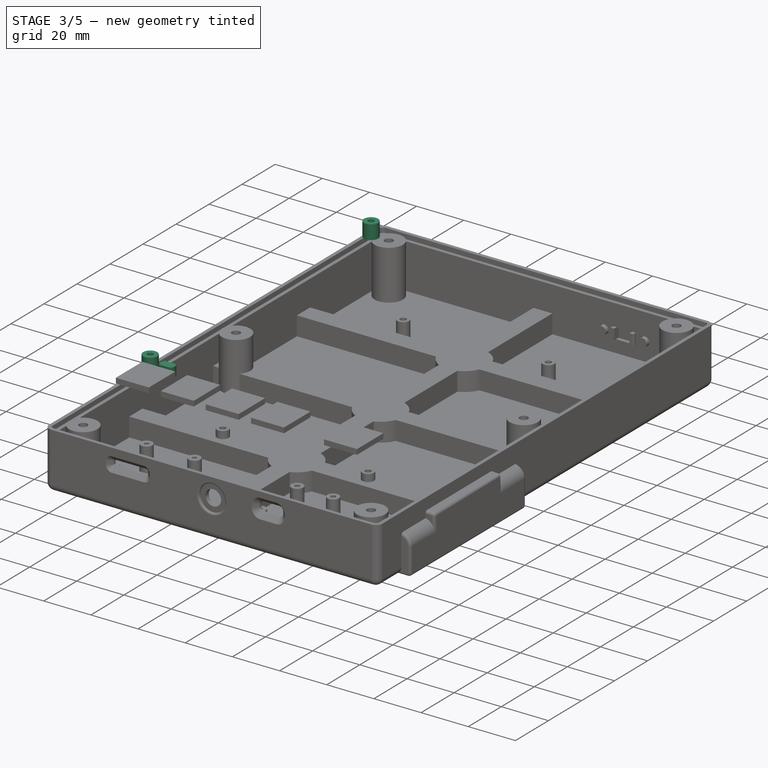
[diagram: stage 3 of 5 — iso view after this stage's code; geometry added in this stage tinted green]
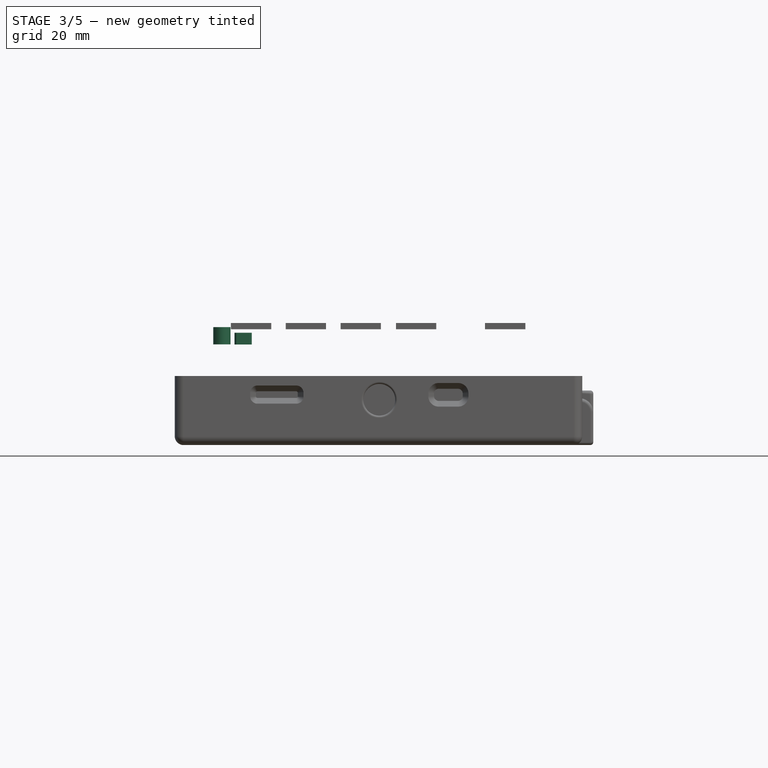
[diagram: stage 3 of 5 — front view after this stage's code; geometry added in this stage tinted green]
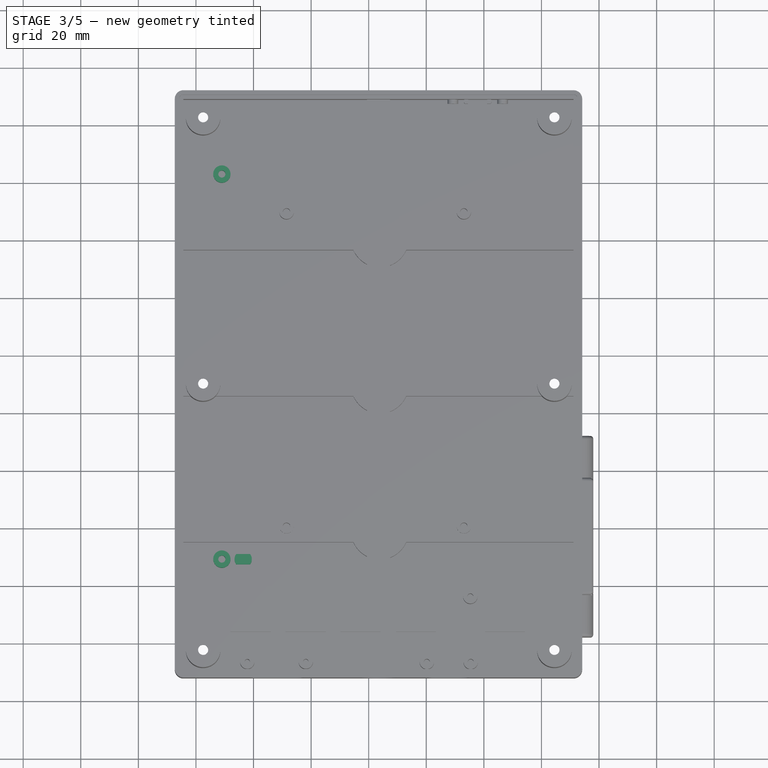
[diagram: stage 3 of 5 — top view after this stage's code; geometry added in this stage tinted green]
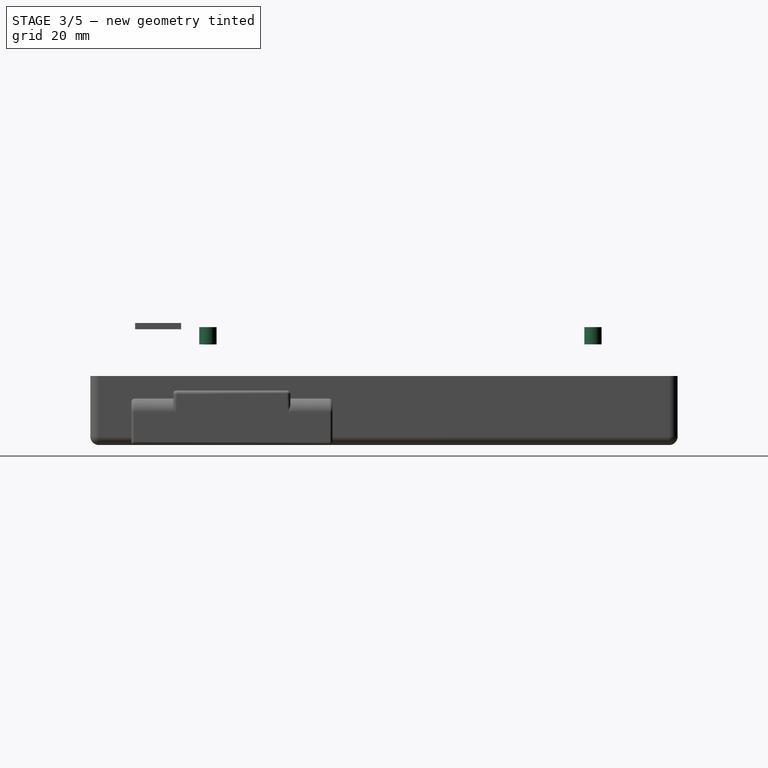
[diagram: stage 3 of 5 — right view after this stage's code; geometry added in this stage tinted green]
FEATURE [Part::Cylinder] Cylinder028
  Angle = 360
  AttacherType = Attacher::AttachEngine3D
  FirstAngle = 0
  Height = 1
  Placement = pos=(51.4,-11.25,-1.45) rot=(0,0,1;0rad)
  Radius = 1.4
  SecondAngle = 0
FEATURE [Part::Cylinder] Cylinder029
  Angle = 360
  AttacherType = Attacher::AttachEngine3D
  FirstAngle = 0
  Height = 1
  Placement = pos=(51.4,-11.25,-0.7) rot=(0,0,1;0rad)
  Radius = 2.25
  SecondAngle = 0
FEATURE [Part::MultiFuse] Fusion021  label="oled_mounting_post001"
  Refine = true
  Shapes = -> [Cylinder029,Cylinder028]
FEATURE [Part::Cylinder] Cylinder030
  Angle = 360
  AttacherType = Attacher::AttachEngine3D
  FirstAngle = 0
  Height = 1
  Placement = pos=(51.4,-11.25,-1.45) rot=(0,0,1;0rad)
  Radius = 1.4
  SecondAngle = 0
FEATURE [Part::Cylinder] Cylinder031
  Angle = 360
  AttacherType = Attacher::AttachEngine3D
  FirstAngle = 0
  Height = 1
  Placement = pos=(51.4,-11.25,-0.7) rot=(0,0,1;0rad)
  Radius = 2.25
  SecondAngle = 0
FEATURE [Part::MultiFuse] Fusion022  label="oled_mounting_post002"
  Placement = pos=(-95,0,0) rot=(0,0,1;0rad)
  Refine = true
  Shapes = -> [Cylinder031,Cylinder030]
FEATURE [Part::Cylinder] Cylinder032
  Angle = 360
  AttacherType = Attacher::AttachEngine3D
  FirstAngle = 0
  Height = 1
  Placement = pos=(51.4,-11.25,-1.45) rot=(0,0,1;0rad)
  Radius = 1.4
  SecondAngle = 0
FEATURE [Part::Cylinder] Cylinder033
  Angle = 360
  AttacherType = Attacher::AttachEngine3D
  FirstAngle = 0
  Height = 1
  Placement = pos=(51.4,-11.25,-0.7) rot=(0,0,1;0rad)
  Radius = 2.25
  SecondAngle = 0
FEATURE [Part::MultiFuse] Fusion023  label="oled_mounting_post003"
  Placement = pos=(0,28.5,0) rot=(0,0,1;0rad)
  Refine = true
  Shapes = -> [Cylinder033,Cylinder032]
FEATURE [Part::Cylinder] Cylinder034
  Angle = 360
  AttacherType = Attacher::AttachEngine3D
  FirstAngle = 0
  Height = 1
  Placement = pos=(51.4,-11.25,-1.45) rot=(0,0,1;0rad)
  Radius = 1.4
  SecondAngle = 0
FEATURE [Part::Cylinder] Cylinder035
  Angle = 360
  AttacherType = Attacher::AttachEngine3D
  FirstAngle = 0
  Height = 1
  Placement = pos=(51.4,-11.25,-0.7) rot=(0,0,1;0rad)
  Radius = 2.25
  SecondAngle = 0
FEATURE [Part::MultiFuse] Fusion024  label="oled_mounting_post004"
  Placement = pos=(0,35,0) rot=(0,0,1;0rad)
  Refine = true
  Shapes = -> [Cylinder035,Cylinder034]
FEATURE [Part::Cylinder] Cylinder036
  Angle = 360
  AttacherType = Attacher::AttachEngine3D
  FirstAngle = 0
  Height = 1
  Placement = pos=(51.4,-11.25,-1.45) rot=(0,0,1;0rad)
  Radius = 1.4
  SecondAngle = 0
FEATURE [Part::Cylinder] Cylinder037
  Angle = 360
  AttacherType = Attacher::AttachEngine3D
  FirstAngle = 0
  Height = 1
  Placement = pos=(51.4,-11.25,-0.7) rot=(0,0,1;0rad)
  Radius = 2.25
  SecondAngle = 0
FEATURE [Part::MultiFuse] Fusion025  label="oled_mounting_post005"
  Placement = pos=(0,63.5,0) rot=(0,0,1;0rad)
  Refine = true
  Shapes = -> [Cylinder037,Cylinder036]
FEATURE [Part::Cylinder] Cylinder038
  Angle = 360
  AttacherType = Attacher::AttachEngine3D
  FirstAngle = 0
  Height = 1
  Placement = pos=(51.4,-11.25,-1.45) rot=(0,0,1;0rad)
  Radius = 1.4
  SecondAngle = 0
FEATURE [Part::Cylinder] Cylinder039
  Angle = 360
  AttacherType = Attacher::AttachEngine3D
  FirstAngle = 0
  Height = 1
  Placement = pos=(51.4,-11.25,-0.7) rot=(0,0,1;0rad)
  Radius = 2.25
  SecondAngle = 0
FEATURE [Part::MultiFuse] Fusion026  label="oled_mounting_post006"
  Placement = pos=(0,70,0) rot=(0,0,1;0rad)
  Refine = true
  Shapes = -> [Cylinder039,Cylinder038]
FEATURE [Part::Cylinder] Cylinder040
  Angle = 360
  AttacherType = Attacher::AttachEngine3D
  FirstAngle = 0
  Height = 1
  Placement = pos=(51.4,-11.25,-1.45) rot=(0,0,1;0rad)
  Radius = 1.4
  SecondAngle = 0
FEATURE [Part::Cylinder] Cylinder041
  Angle = 360
  AttacherType = Attacher::AttachEngine3D
  FirstAngle = 0
  Height = 1
  Placement = pos=(51.4,-11.25,-0.7) rot=(0,0,1;0rad)
  Radius = 2.25
  SecondAngle = 0
FEATURE [Part::MultiFuse] Fusion027  label="oled_mounting_post007"
  Placement = pos=(0,98.5,0) rot=(0,0,1;0rad)
  Refine = true
  Shapes = -> [Cylinder041,Cylinder040]
FEATURE [Part::Cylinder] Cylinder042
  Angle = 360
  AttacherType = Attacher::AttachEngine3D
  FirstAngle = 0
  Height = 1
  Placement = pos=(51.4,-11.25,-1.45) rot=(0,0,1;0rad)
  Radius = 1.4
  SecondAngle = 0
FEATURE [Part::Cylinder] Cylinder043
  Angle = 360
  AttacherType = Attacher::AttachEngine3D
  FirstAngle = 0
  Height = 1
  Placement = pos=(51.4,-11.25,-0.7) rot=(0,0,1;0rad)
  Radius = 2.25
  SecondAngle = 0
FEATURE [Part::MultiFuse] Fusion028  label="oled_mounting_post008"
  Placement = pos=(0,105,0) rot=(0,0,1;0rad)
  Refine = true
  Shapes = -> [Cylinder043,Cylinder042]
FEATURE [Part::Cylinder] Cylinder044
  Angle = 360
  AttacherType = Attacher::AttachEngine3D
  FirstAngle = 0
  Height = 1
  Placement = pos=(51.4,-11.25,-1.45) rot=(0,0,1;0rad)
  Radius = 1.4
  SecondAngle = 0
FEATURE [Part::Cylinder] Cylinder045
  Angle = 360
  AttacherType = Attacher::AttachEngine3D
  FirstAngle = 0
  Height = 1
  Placement = pos=(51.4,-11.25,-0.7) rot=(0,0,1;0rad)
  Radius = 2.25
  SecondAngle = 0
FEATURE [Part::MultiFuse] Fusion029  label="oled_mounting_post009"
  Placement = pos=(0,133.5,0) rot=(0,0,1;0rad)
  Refine = true
  Shapes = -> [Cylinder045,Cylinder044]
FEATURE [Part::Cylinder] Cylinder046
  Angle = 360
  AttacherType = Attacher::AttachEngine3D
  FirstAngle = 0
  Height = 1
  Placement = pos=(51.4,-11.25,-1.45) rot=(0,0,1;0rad)
  Radius = 1.4
  SecondAngle = 0
FEATURE [Part::Cylinder] Cylinder047
  Angle = 360
  AttacherType = Attacher::AttachEngine3D
  FirstAngle = 0
  Height = 1
  Placement = pos=(51.4,-11.25,-0.7) rot=(0,0,1;0rad)
  Radius = 2.25
  SecondAngle = 0
FEATURE [Part::MultiFuse] Fusion030  label="oled_mounting_post010"
  Placement = pos=(-95,28.5,0) rot=(0,0,1;0rad)
  Refine = true
  Shapes = -> [Cylinder047,Cylinder046]
FEATURE [Part::Cylinder] Cylinder048
  Angle = 360
  AttacherType = Attacher::AttachEngine3D
  FirstAngle = 0
  Height = 1
  Placement = pos=(51.4,-11.25,-1.45) rot=(0,0,1;0rad)
  Radius = 1.4
  SecondAngle = 0
FEATURE [Part::Cylinder] Cylinder049
  Angle = 360
  AttacherType = Attacher::AttachEngine3D
  FirstAngle = 0
  Height = 1
  Placement = pos=(51.4,-11.25,-0.7) rot=(0,0,1;0rad)
  Radius = 2.25
  SecondAngle = 0
FEATURE [Part::MultiFuse] Fusion031  label="oled_mounting_post011"
  Placement = pos=(-95,35,0) rot=(0,0,1;0rad)
  Refine = true
  Shapes = -> [Cylinder049,Cylinder048]
FEATURE [Part::Cylinder] Cylinder050
  Angle = 360
  AttacherType = Attacher::AttachEngine3D
  FirstAngle = 0
  Height = 1
  Placement = pos=(51.4,-11.25,-1.45) rot=(0,0,1;0rad)
  Radius = 1.4
  SecondAngle = 0
FEATURE [Part::Cylinder] Cylinder051
  Angle = 360
  AttacherType = Attacher::AttachEngine3D
  FirstAngle = 0
  Height = 1
  Placement = pos=(51.4,-11.25,-0.7) rot=(0,0,1;0rad)
  Radius = 2.25
  SecondAngle = 0
FEATURE [Part::MultiFuse] Fusion032  label="oled_mounting_post012"
  Placement = pos=(-95,63.5,0) rot=(0,0,1;0rad)
  Refine = true
  Shapes = -> [Cylinder051,Cylinder050]
FEATURE [Part::Cylinder] Cylinder052
  Angle = 360
  AttacherType = Attacher::AttachEngine3D
  FirstAngle = 0
  Height = 1
  Placement = pos=(51.4,-11.25,-1.45) rot=(0,0,1;0rad)
  Radius = 1.4
  SecondAngle = 0
FEATURE [Part::Cylinder] Cylinder053
  Angle = 360
  AttacherType = Attacher::AttachEngine3D
  FirstAngle = 0
  Height = 1
  Placement = pos=(51.4,-11.25,-0.7) rot=(0,0,1;0rad)
  Radius = 2.25
  SecondAngle = 0
FEATURE [Part::MultiFuse] Fusion033  label="oled_mounting_post013"
  Placement = pos=(-95,70,0) rot=(0,0,1;0rad)
  Refine = true
  Shapes = -> [Cylinder053,Cylinder052]
FEATURE [Part::Cylinder] Cylinder054
  Angle = 360
  AttacherType = Attacher::AttachEngine3D
  FirstAngle = 0
  Height = 1
  Placement = pos=(51.4,-11.25,-1.45) rot=(0,0,1;0rad)
  Radius = 1.4
  SecondAngle = 0
FEATURE [Part::Cylinder] Cylinder055
  Angle = 360
  AttacherType = Attacher::AttachEngine3D
  FirstAngle = 0
  Height = 1
  Placement = pos=(51.4,-11.25,-0.7) rot=(0,0,1;0rad)
  Radius = 2.25
  SecondAngle = 0
FEATURE [Part::MultiFuse] Fusion034  label="oled_mounting_post014"
  Placement = pos=(-95,98.5,0) rot=(0,0,1;0rad)
  Refine = true
  Shapes = -> [Cylinder055,Cylinder054]
FEATURE [Part::Cylinder] Cylinder056
  Angle = 360
  AttacherType = Attacher::AttachEngine3D
  FirstAngle = 0
  Height = 1
  Placement = pos=(51.4,-11.25,-1.45) rot=(0,0,1;0rad)
  Radius = 1.4
  SecondAngle = 0
FEATURE [Part::Cylinder] Cylinder057
  Angle = 360
  AttacherType = Attacher::AttachEngine3D
  FirstAngle = 0
  Height = 1
  Placement = pos=(51.4,-11.25,-0.7) rot=(0,0,1;0rad)
  Radius = 2.25
  SecondAngle = 0
FEATURE [Part::MultiFuse] Fusion035  label="oled_mounting_post015"
  Placement = pos=(-95,105,0) rot=(0,0,1;0rad)
  Refine = true
  Shapes = -> [Cylinder057,Cylinder056]
FEATURE [Part::MultiFuse] Fusion037  label="oled_mounting_posts"
  Refine = true
  Shapes = -> [Fusion021,Fusion022,Fusion023,Fusion024,Fusion025,Fusion026,Fusion027,Fusion028,Fusion029,Fusion030,Fusion031,Fusion032,Fusion033,Fusion034,Fusion035,Fusion036]
FEATURE [Part::FeaturePython] Tube032  # WARN: FeaturePython — macro-defined, semantics opaque (R4)
  AttacherType = Attacher::AttachEngine3D
  Height = 6
  InnerRadius = 1.25
  OuterRadius = 3
  Placement = pos=(-51,122.5,-5.75) rot=(0,0,1;0rad)
FEATURE [Part::FeaturePython] Tube033  # WARN: FeaturePython — macro-defined, semantics opaque (R4)
  AttacherType = Attacher::AttachEngine3D
  Height = 6
  InnerRadius = 1.25
  OuterRadius = 3
  Placement = pos=(-51,-11.25,-5.75) rot=(0,0,1;0rad)
FEATURE [Sketcher::SketchObject] Sketch006
  ArcFitTolerance = 1e-06
  AttachmentSupport = -> [Sketch005]
  ExternalGeometry = -> [Fusion037]
  FullyConstrained = true
  MakeInternals = false
  MapMode = 2
  sketch-geometry (4):
    g0: ArcOfCircle CenterX=-43.6 CenterY=-11.25 CenterZ=0 NormalX=0 NormalY=0 NormalZ=1 AngleXU=0 Radius=3 StartAngle=2.49809 EndAngle=3.78509
    g1: LineSegment StartX=-41.2 StartY=-9.45 StartZ=0 EndX=-46 EndY=-9.45 EndZ=0
    g2: LineSegment StartX=-46 StartY=-13.05 StartZ=0 EndX=-41.2 EndY=-13.05 EndZ=0
    g3: ArcOfCircle CenterX=-43.6 CenterY=-11.25 CenterZ=0 NormalX=0 NormalY=0 NormalZ=1 AngleXU=0 Radius=3 StartAngle=5.63968 EndAngle=6.92669
  constraints (13):
    c: Coincident(g0,g-3)
    c: Radius(g0) = 3
    c: Horizontal(g1)
    c: DistanceX(g1,g1) = 4.8
    c: PointOnObject(g2,g3)
    c: Horizontal(g2)
    c: Equal(g2,g1)
    c: Coincident(g3,g1)
    c: Coincident(g0,g1)
    c: Equal(g0,g3)
    c: Coincident(g0,g2)
    c: PointOnObject(g3,g2)
    c: Coincident(g0,g3)
FEATURE [Part::Extrusion] Extrude010
  Base = -> Sketch006
  Dir = (0,0,1)
  DirMode = 2
  FaceMakerClass = Part::FaceMakerBullseye
  FaceMakerMode = 3
  LengthFwd = 4.1
  LengthRev = 0
  Placement = pos=(0,0,-5.8) rot=(0,0,1;0rad)
  Solid = true
  Symmetric = false
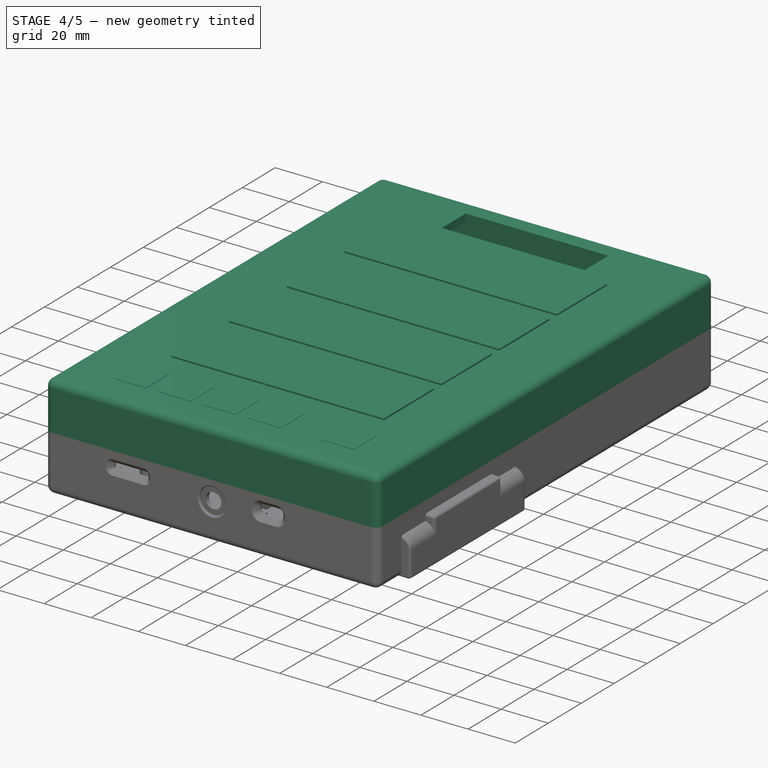
[diagram: stage 4 of 5 — iso view after this stage's code; geometry added in this stage tinted green]
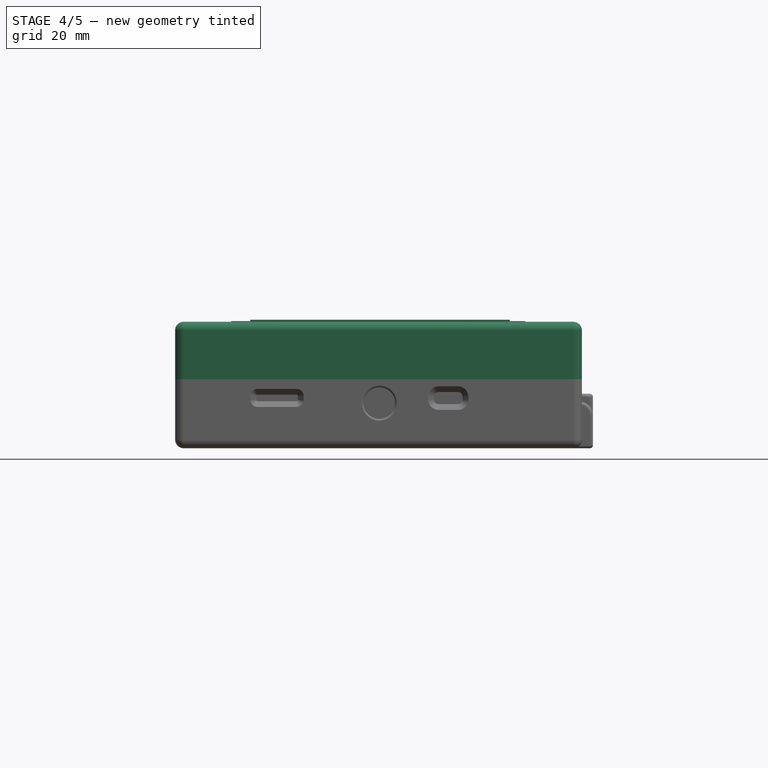
[diagram: stage 4 of 5 — front view after this stage's code; geometry added in this stage tinted green]
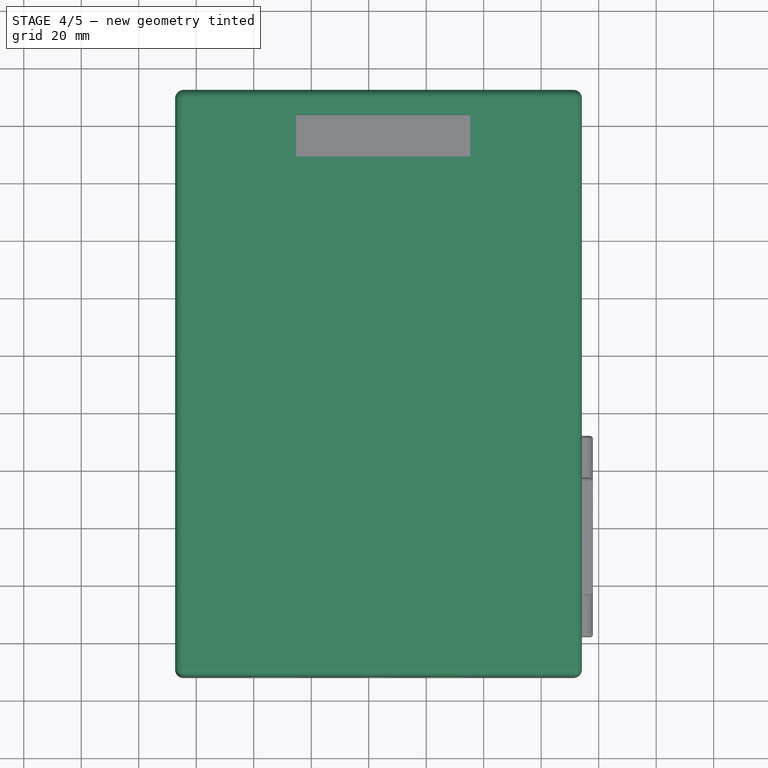
[diagram: stage 4 of 5 — top view after this stage's code; geometry added in this stage tinted green]
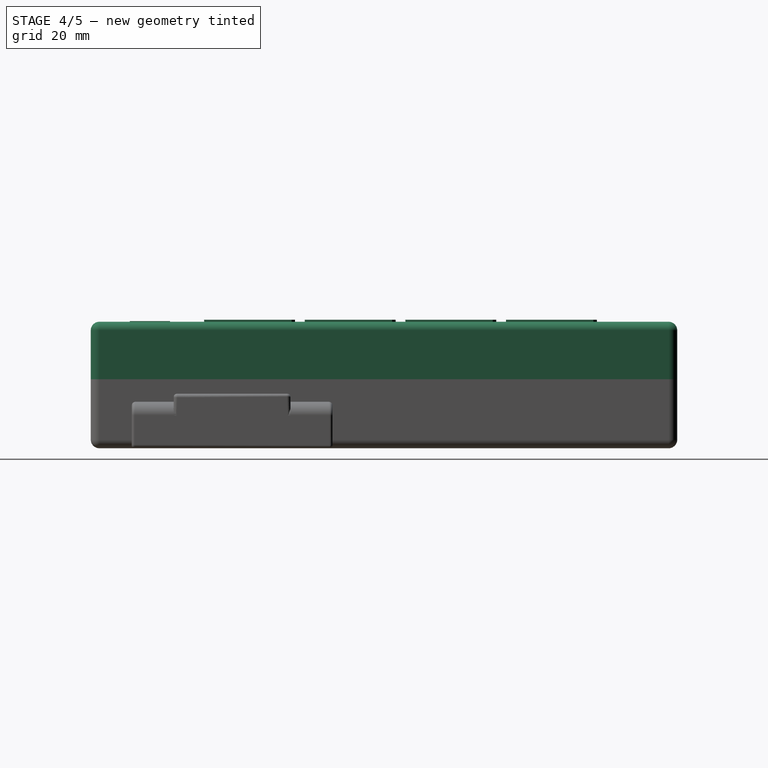
[diagram: stage 4 of 5 — right view after this stage's code; geometry added in this stage tinted green]
FEATURE [Part::Box] Box001  label="Cube001"
  AttacherType = Attacher::AttachEngine3D
  Height = 17
  Length = 135.5
  Placement = pos=(-64.35,-49.1,-16.7) rot=(0,0,1;0rad)
  Width = 198
FEATURE [Part::Thickness] Thickness001  label="upper_case_shell"
  Faces = -> Box001 [Face5]
  Intersection = false
  Join = 0
  Mode = 0
  SelfIntersection = false
  Value = 3
FEATURE [Part::Extrusion] Extrude
  Base = -> Sketch
  Dir = (0,0,1)
  DirMode = 2
  FaceMakerClass = Part::FaceMakerBullseye
  FaceMakerMode = 3
  LengthFwd = 0
  LengthRev = 1.5
  Placement = pos=(0,0,4) rot=(0,0,1;0rad)
  Solid = true
  Symmetric = false
FEATURE [Part::Box] Box005  label="Cube005"
  AttacherType = Attacher::AttachEngine3D
  Height = 1.5
  Length = 135.5
  Placement = pos=(-64.35,-49.1,-18.2) rot=(0,0,1;0rad)
  Width = 198
FEATURE [Part::Cut] Cut001
  Base = -> Extrude
  Refine = true
  Tool = -> Box005
FEATURE [Part::MultiFuse] Fusion001  label="upper_case_shell_w_lip"
  Refine = true
  Shapes = -> [Thickness001,Cut001]
FEATURE [Part::Cylinder] Cylinder024
  Angle = 360
  AttacherType = Attacher::AttachEngine3D
  FirstAngle = 0
  Height = 4.85
  Placement = pos=(41.75,131.675,-4.55) rot=(0,0,1;0rad)
  Radius = 2.5
  SecondAngle = 0
FEATURE [Part::Cylinder] Cylinder026
  Angle = 360
  AttacherType = Attacher::AttachEngine3D
  FirstAngle = 0
  Height = 4.85
  Placement = pos=(41.75,140.175,-4.55) rot=(0,0,1;0rad)
  Radius = 2.5
  SecondAngle = 0
FEATURE [Part::Box] Box009  label="LED_display_cutout"
  AttacherType = Attacher::AttachEngine3D
  Height = 4
  Length = 60.63
  Placement = pos=(-25.25,128.65,-0.25) rot=(0,0,1;0rad)
  Width = 14.49
FEATURE [Part::Cut] Cut008
  Base = -> Fusion001
  Refine = true
  Tool = -> Box009
FEATURE [Sketcher::SketchObject] Sketch002
  ArcFitTolerance = 1e-06
  AttachmentSupport = -> [Cut009]
  FullyConstrained = false
  MakeInternals = false
  MapMode = 2
  sketch-geometry (8):
    g0: LineSegment StartX=-41.192 StartY=17.7482 StartZ=0 EndX=-41.192 EndY=-12.6618 EndZ=0
    g1: LineSegment StartX=-41.192 StartY=-12.6618 StartZ=0 EndX=49.0743 EndY=-12.6618 EndZ=0
    g2: LineSegment StartX=49.0743 StartY=-12.6618 StartZ=0 EndX=49.0743 EndY=17.7482 EndZ=0
    g3: LineSegment StartX=49.0743 StartY=17.7482 StartZ=0 EndX=36.265 EndY=17.7482 EndZ=0
    g4: LineSegment StartX=36.265 StartY=17.7482 StartZ=0 EndX=35.0572 EndY=18.956 EndZ=0
    g5: LineSegment StartX=35.0572 StartY=18.956 StartZ=0 EndX=-27.3162 EndY=18.956 EndZ=0
    g6: LineSegment StartX=-27.3162 StartY=18.956 StartZ=0 EndX=-28.524 EndY=17.7482 EndZ=0
    g7: LineSegment StartX=-28.524 StartY=17.7482 StartZ=0 EndX=-41.192 EndY=17.7482 EndZ=0
  constraints (18):
    c: Vertical(g0)
    c: Horizontal(g1)
    c: Vertical(g2)
    c: Coincident(g3,g2)
    c: Horizontal(g3)
    c: Coincident(g4,g3)
    c: Horizontal(g5)
    c: Horizontal(g7)
    c: DistanceY(g0,g0) = 30.41
    c: Equal(g0,g2)
    c: Coincident(g0,g1)
    c: Coincident(g1,g2)
    c: Angle(g3,g4) = 2.35619
    c: Coincident(g6,g7)
    c: Angle(g6,g7) = 2.35619
    c: Coincident(g5,g6)
    c: Coincident(g4,g5)
    c: Coincident(g0,g7)
FEATURE [Part::Extrusion] Extrude003  label="OLED_cutout001"
  Base = -> Sketch002
  Dir = (0,0,1)
  DirMode = 2
  FaceMakerClass = Part::FaceMakerBullseye
  FaceMakerMode = 3
  LengthFwd = 4
  LengthRev = 0
  Solid = true
  Symmetric = false
FEATURE [Part::Extrusion] Extrude004  label="OLED_cutout002"
  Base = -> Sketch002
  Dir = (0,0,1)
  DirMode = 2
  FaceMakerClass = Part::FaceMakerBullseye
  FaceMakerMode = 3
  LengthFwd = 4
  LengthRev = 0
  Placement = pos=(0,35,0) rot=(0,0,1;0rad)
  Solid = true
  Symmetric = false
FEATURE [Part::Extrusion] Extrude005  label="OLED_cutout003"
  Base = -> Sketch002
  Dir = (0,0,1)
  DirMode = 2
  FaceMakerClass = Part::FaceMakerBullseye
  FaceMakerMode = 3
  LengthFwd = 4
  LengthRev = 0
  Placement = pos=(0,70,0) rot=(0,0,1;0rad)
  Solid = true
  Symmetric = false
FEATURE [Part::Extrusion] Extrude006  label="OLED_cutout004"
  Base = -> Sketch002
  Dir = (0,0,1)
  DirMode = 2
  FaceMakerClass = Part::FaceMakerBullseye
  FaceMakerMode = 3
  LengthFwd = 4
  LengthRev = 0
  Placement = pos=(0,105,0) rot=(0,0,1;0rad)
  Solid = true
  Symmetric = false
FEATURE [Part::MultiFuse] Fusion019  label="OLED_cutouts"
  Refine = true
  Shapes = -> [Extrude003,Extrude004,Extrude005,Extrude006]
FEATURE [Part::Box] Box010  label="Cube007"
  AttacherType = Attacher::AttachEngine3D
  Height = 4
  Length = 14
  Placement = pos=(40.4,-35.55,-0.5) rot=(0,0,1;0rad)
  Width = 14
FEATURE [Part::Box] Box011  label="Cube008"
  AttacherType = Attacher::AttachEngine3D
  Height = 4
  Length = 14
  Placement = pos=(9.47,-35.55,-0.5) rot=(0,0,1;0rad)
  Width = 14
FEATURE [Part::Box] Box012  label="Cube009"
  AttacherType = Attacher::AttachEngine3D
  Height = 4
  Length = 14
  Placement = pos=(-9.77,-35.55,-0.5) rot=(0,0,1;0rad)
  Width = 14
FEATURE [Part::Box] Box013  label="Cube010"
  AttacherType = Attacher::AttachEngine3D
  Height = 4
  Length = 14
  Placement = pos=(-28.81,-35.55,-0.5) rot=(0,0,1;0rad)
  Width = 14
FEATURE [Part::Box] Box014  label="Cube011"
  AttacherType = Attacher::AttachEngine3D
  Height = 4
  Length = 14
  Placement = pos=(-47.85,-35.55,-0.5) rot=(0,0,1;0rad)
  Width = 14
FEATURE [Part::FeaturePython] Tube024  # WARN: FeaturePython — macro-defined, semantics opaque (R4)
  AttacherType = Attacher::AttachEngine3D
  Height = 6
  InnerRadius = 1.25
  OuterRadius = 3
  Placement = pos=(-51,20.5,-5.75) rot=(0,0,1;0rad)
FEATURE [Part::FeaturePython] Tube025  # WARN: FeaturePython — macro-defined, semantics opaque (R4)
  AttacherType = Attacher::AttachEngine3D
  Height = 6
  InnerRadius = 1.25
  OuterRadius = 3
  Placement = pos=(-51,55.5,-5.75) rot=(0,0,1;0rad)
FEATURE [Part::FeaturePython] Tube026  # WARN: FeaturePython — macro-defined, semantics opaque (R4)
  AttacherType = Attacher::AttachEngine3D
  Height = 6
  InnerRadius = 1.25
  OuterRadius = 3
  Placement = pos=(-51,90.5,-5.75) rot=(0,0,1;0rad)
FEATURE [Part::FeaturePython] Tube027  # WARN: FeaturePython — macro-defined, semantics opaque (R4)
  AttacherType = Attacher::AttachEngine3D
  Height = 6
  InnerRadius = 1.25
  OuterRadius = 3
  Placement = pos=(57.75,20.5,-5.75) rot=(0,0,1;0rad)
FEATURE [Part::FeaturePython] Tube028  # WARN: FeaturePython — macro-defined, semantics opaque (R4)
  AttacherType = Attacher::AttachEngine3D
  Height = 6
  InnerRadius = 1.25
  OuterRadius = 3
  Placement = pos=(57.75,55.5,-5.75) rot=(0,0,1;0rad)
FEATURE [Part::FeaturePython] Tube029  # WARN: FeaturePython — macro-defined, semantics opaque (R4)
  AttacherType = Attacher::AttachEngine3D
  Height = 6
  InnerRadius = 1.25
  OuterRadius = 3
  Placement = pos=(57.75,90.5,-5.75) rot=(0,0,1;0rad)
FEATURE [Part::FeaturePython] Tube030  # WARN: FeaturePython — macro-defined, semantics opaque (R4)
  AttacherType = Attacher::AttachEngine3D
  Height = 6
  InnerRadius = 1.25
  OuterRadius = 3
  Placement = pos=(57.75,122.5,-5.75) rot=(0,0,1;0rad)
FEATURE [Part::FeaturePython] Tube031  # WARN: FeaturePython — macro-defined, semantics opaque (R4)
  AttacherType = Attacher::AttachEngine3D
  Height = 6
  InnerRadius = 1.25
  OuterRadius = 3
  Placement = pos=(57.75,-11.25,-5.75) rot=(0,0,1;0rad)
FEATURE [Part::MultiFuse] Fusion039  label="oled_screw_posts"
  Refine = true
  Shapes = -> [Tube024,Tube025,Tube026,Tube027,Tube028,Tube029,Tube030,Tube031,Tube032,Tube033]
FEATURE [Sketcher::SketchObject] Sketch003
  ArcFitTolerance = 1e-06
  AttachmentSupport = -> [Fusion039]
  ExternalGeometry = -> [Fusion039,Fusion037]
  FullyConstrained = true
  MakeInternals = false
  MapMode = 2
  sketch-geometry (9):
    g0: ArcOfCircle CenterX=-51 CenterY=20.5 CenterZ=0 NormalX=0 NormalY=0 NormalZ=1 AngleXU=0 Radius=3 StartAngle=1.9761 EndAngle=4.30709
    g1: ArcOfCircle CenterX=-43.6 CenterY=17.25 CenterZ=0 NormalX=0 NormalY=0 NormalZ=1 AngleXU=0 Radius=3 StartAngle=5.79449 EndAngle=6.28319
    g2: ArcOfCircle CenterX=-43.6 CenterY=23.75 CenterZ=0 NormalX=0 NormalY=0 NormalZ=1 AngleXU=0 Radius=3 StartAngle=3e-16 EndAngle=0.488692
    g3: LineSegment StartX=-52.1829 StartY=23.257 StartZ=0 EndX=-47.7512 EndY=25.1584 EndZ=0
    g4: LineSegment StartX=-52.1829 StartY=17.743 StartZ=0 EndX=-47.7512 EndY=15.8416 EndZ=0
    g5: LineSegment StartX=-40.6 StartY=17.25 StartZ=0 EndX=-40.6 EndY=23.75 EndZ=0
    g6: Circle CenterX=-51 CenterY=20.5 CenterZ=0 NormalX=0 NormalY=0 NormalZ=1 AngleXU=0 Radius=1.6
    g7: LineSegment StartX=-40.9512 StartY=25.1584 StartZ=0 EndX=-47.7512 EndY=25.1584 EndZ=0
    g8: LineSegment StartX=-40.9512 StartY=15.8416 StartZ=0 EndX=-47.7512 EndY=15.8416 EndZ=0
  constraints (22):
    c: Coincident(g0,g-3)
    c: Coincident(g1,g-5)
    c: Coincident(g2,g-4)
    c: Radius(g2) = 3
    c: Radius(g1) = 3
    c: Radius(g0) = 3
    c: Tangent(g2,g5) = -1.5708
    c: Tangent(g0,g4) = -1.5708
    c: Tangent(g0,g3) = 1.5708
    c: Tangent(g1,g5) = -1.5708
    c: Coincident(g6,g0)
    c: Radius(g6) = 1.6
    c: Horizontal(g7)
    c: Horizontal(g8)
    c: Coincident(g3,g7)
    c: Coincident(g2,g7)
    c: Coincident(g1,g8)
    c: Coincident(g4,g8)
    c: DistanceX(g8,g8) = 6.8
    c: Angle(g1) = 0.488692
    c: Equal(g7,g8)
    c: Equal(g3,g4)
FEATURE [Part::Extrusion] Extrude007
  Base = -> Sketch003
  Dir = (0,0,1)
  DirMode = 2
  FaceMakerClass = Part::FaceMakerBullseye
  FaceMakerMode = 3
  LengthFwd = 0
  LengthRev = 3
  Placement = pos=(0,0,-5.8) rot=(0,0,1;0rad)
  Solid = true
  Symmetric = false
FEATURE [Sketcher::SketchObject] Sketch004
  ArcFitTolerance = 1e-06
  AttachmentSupport = -> [Extrude007]
  ExternalGeometry = -> [Fusion037,Extrude007]
  FullyConstrained = false
  MakeInternals = false
  MapMode = 2
  Placement = pos=(0,0,-5.8) rot=(0,0,1;0rad)
  sketch-geometry (8):
    g0: ArcOfCircle CenterX=-43.6 CenterY=23.75 CenterZ=0 NormalX=0 NormalY=0 NormalZ=1 AngleXU=0 Radius=3 StartAngle=2e-16 EndAngle=0.48787
    g1: ArcOfCircle CenterX=-43.6 CenterY=17.25 CenterZ=0 NormalX=0 NormalY=0 NormalZ=1 AngleXU=0 Radius=3 StartAngle=3.14159 EndAngle=3.62946
    g2: LineSegment StartX=-46.6 StartY=23.75 StartZ=0 EndX=-46.6 EndY=17.25 EndZ=0
    g3: LineSegment StartX=-40.6 StartY=23.75 StartZ=0 EndX=-40.6086 EndY=17.0232 EndZ=0
    g4: LineSegment StartX=-46.25 StartY=25.1562 StartZ=0 EndX=-40.95 EndY=25.1562 EndZ=0
    g5: LineSegment StartX=-46.25 StartY=15.8438 StartZ=0 EndX=-40.95 EndY=15.8438 EndZ=0
    g6: ArcOfCircle CenterX=-43.6 CenterY=23.75 CenterZ=0 NormalX=0 NormalY=0 NormalZ=1 AngleXU=0 Radius=3 StartAngle=2.65372 EndAngle=3.14159
    g7: ArcOfCircle CenterX=-43.6 CenterY=17.25 CenterZ=0 NormalX=0 NormalY=0 NormalZ=1 AngleXU=0 Radius=3 StartAngle=5.79532 EndAngle=6.20751
  constraints (20):
    c: Coincident(g0,g-5)
    c: Coincident(g1,g-6)
    c: Equal(g1,g-6)
    c: Coincident(g3,g-5)
    c: Coincident(g6,g2)
    c: Coincident(g0,g3)
    c: Coincident(g7,g3)
    c: Tangent(g1,g2) = -1.5708
    c: Radius(g0) = 3
    c: Radius(g1) = 3
    c: Horizontal(g4)
    c: Horizontal(g5)
    c: DistanceX(g5,g5) = 5.3
    c: Equal(g5,g4)
    c: Equal(g0,g6)
    c: Coincident(g0,g4)
    c: Coincident(g0,g6)
    c: Coincident(g6,g4)
    c: Coincident(g1,g5)
    c: Coincident(g5,g7)
FEATURE [Part::Extrusion] Extrude008
  Base = -> Sketch004
  Dir = (0,0,1)
  DirMode = 2
  FaceMakerClass = Part::FaceMakerBullseye
  FaceMakerMode = 3
  LengthFwd = 4.1
  LengthRev = 0
  Solid = true
  Symmetric = false
FEATURE [Part::MultiFuse] Fusion041  label="oled_retaining_clip_dual001"
  Refine = true
  Shapes = -> [Extrude008,Extrude007]
FEATURE [Sketcher::SketchObject] Sketch005
  ArcFitTolerance = 1e-06
  AttachmentSupport = -> [Fusion039]
  ExternalGeometry = -> [Fusion039,Fusion037]
  FullyConstrained = false
  MakeInternals = false
  MapMode = 2
  sketch-geometry (5):
    g0: ArcOfCircle CenterX=-51 CenterY=-11.25 CenterZ=0 NormalX=0 NormalY=0 NormalZ=1 AngleXU=0 Radius=3 StartAngle=0.644667 EndAngle=5.6405
    g1: ArcOfCircle CenterX=-43.6 CenterY=-11.25 CenterZ=0 NormalX=0 NormalY=0 NormalZ=1 AngleXU=0 Radius=3 StartAngle=5.6405 EndAngle=6.92785
    g2: Circle CenterX=-51 CenterY=-11.25 CenterZ=0 NormalX=0 NormalY=0 NormalZ=1 AngleXU=0 Radius=1.6
    g3: LineSegment StartX=-41.2021 StartY=-9.4472 StartZ=0 EndX=-48.6021 EndY=-9.4472 EndZ=0
    g4: LineSegment StartX=-41.1985 StartY=-13.048 StartZ=0 EndX=-48.5985 EndY=-13.048 EndZ=0
  constraints (13):
    c: Coincident(g0,g-3)
    c: Equal(g0,g-3)
    c: Coincident(g1,g-4)
    c: Radius(g1) = 3
    c: Coincident(g2,g0)
    c: Radius(g2) = 1.6
    c: Coincident(g3,g0)
    c: Horizontal(g3)
    c: Coincident(g4,g0)
    c: Horizontal(g4)
    c: Coincident(g1,g3)
    c: Coincident(g1,g4)
    c: Angle(g0) = 4.99583
FEATURE [Part::Extrusion] Extrude009
  Base = -> Sketch005
  Dir = (0,0,1)
  DirMode = 2
  FaceMakerClass = Part::FaceMakerBullseye
  FaceMakerMode = 3
  LengthFwd = 3
  LengthRev = 0
  Placement = pos=(0,0,-8.8) rot=(0,0,1;0rad)
  Solid = true
  Symmetric = false
FEATURE [Part::MultiFuse] Fusion042  label="oled_retaining _clip_single001"
  Refine = true
  Shapes = -> [Extrude010,Extrude009]
FEATURE [Part::FeaturePython] Tube040  # WARN: FeaturePython — macro-defined, semantics opaque (R4)
  AttacherType = Attacher::AttachEngine3D
  Height = 16.9
  InnerRadius = 2.25
  OuterRadius = 5
  Placement = pos=(64.5,-42.5,-16.6) rot=(0,0,1;0rad)
FEATURE [Part::FeaturePython] Tube041  # WARN: FeaturePython — macro-defined, semantics opaque (R4)
  AttacherType = Attacher::AttachEngine3D
  Height = 16.9
  InnerRadius = 2.25
  OuterRadius = 5
  Placement = pos=(64.5,50,-16.6) rot=(0,0,1;0rad)
FEATURE [Part::FeaturePython] Tube042  # WARN: FeaturePython — macro-defined, semantics opaque (R4)
  AttacherType = Attacher::AttachEngine3D
  Height = 16.9
  InnerRadius = 2.25
  OuterRadius = 5
  Placement = pos=(64.5,142.5,-16.6) rot=(0,0,1;0rad)
FEATURE [Part::FeaturePython] Tube043  # WARN: FeaturePython — macro-defined, semantics opaque (R4)
  AttacherType = Attacher::AttachEngine3D
  Height = 16.9
  InnerRadius = 2.25
  OuterRadius = 5
  Placement = pos=(-57.5,-42.5,-16.6) rot=(0,0,1;0rad)
FEATURE [Part::FeaturePython] Tube044  # WARN: FeaturePython — macro-defined, semantics opaque (R4)
  AttacherType = Attacher::AttachEngine3D
  Height = 16.9
  InnerRadius = 2.25
  OuterRadius = 5
  Placement = pos=(-57.5,50,-16.6) rot=(0,0,1;0rad)
FEATURE [Part::FeaturePython] Tube045  # WARN: FeaturePython — macro-defined, semantics opaque (R4)
  AttacherType = Attacher::AttachEngine3D
  Height = 16.9
  InnerRadius = 2.25
  OuterRadius = 5
  Placement = pos=(-57.5,142.5,-16.6) rot=(0,0,1;0rad)
FEATURE [Part::MultiFuse] Fusion068  label="upper_mounting_posts"
  Refine = true
  Shapes = -> [Tube040,Tube041,Tube042,Tube043,Tube044,Tube045]
FEATURE [PartDesign::FeatureBase] Clone
  BaseFeature = -> Fusion041
  Suppressed = false
FEATURE [PartDesign::Body] Body  label="oled_retaining_clip_dual002"
  AllowCompound = false
  Group = -> [Clone]
  Origin = -> Origin028
  Placement = pos=(0,35,0) rot=(0,0,1;0rad)
  Tip = -> Clone
FEATURE [PartDesign::FeatureBase] Clone005
  BaseFeature = -> Fusion041
  Suppressed = false
FEATURE [PartDesign::Body] Body005  label="oled_retaining_clip_dual003"
  AllowCompound = false
  Group = -> [Clone005]
  Origin = -> Origin029
  Placement = pos=(0,70,0) rot=(0,0,1;0rad)
  Tip = -> Clone005
FEATURE [PartDesign::FeatureBase] Clone006
  BaseFeature = -> Fusion041
  Suppressed = false
FEATURE [PartDesign::Body] Body006  label="oled_retaining_clip_dual004"
  AllowCompound = false
  Group = -> [Clone006]
  Origin = -> Origin030
  Placement = pos=(6.75,41,0) rot=(0,0,1;3.14159rad)
  Tip = -> Clone006
FEATURE [PartDesign::FeatureBase] Clone007
  BaseFeature = -> Fusion041
  Suppressed = false
FEATURE [PartDesign::Body] Body007  label="oled_retaining_clip_dual005"
  AllowCompound = false
  Group = -> [Clone007]
  Origin = -> Origin031
  Placement = pos=(6.75,76,0) rot=(0,0,1;3.14159rad)
  Tip = -> Clone007
FEATURE [PartDesign::FeatureBase] Clone008
  BaseFeature = -> Fusion041
  Suppressed = false
FEATURE [PartDesign::Body] Body008  label="oled_retaining_clip_dual006"
  AllowCompound = false
  Group = -> [Clone008]
  Origin = -> Origin032
  Placement = pos=(6.75,111,0) rot=(0,0,1;3.14159rad)
  Tip = -> Clone008
FEATURE [PartDesign::FeatureBase] Clone009
  BaseFeature = -> Fusion042
  Suppressed = false
FEATURE [PartDesign::Body] Body009  label="oled_retaining_clip_single002"
  AllowCompound = false
  Group = -> [Clone009]
  Origin = -> Origin033
  Placement = pos=(6.75,-22.5,0) rot=(0,0,1;3.14159rad)
  Tip = -> Clone009
FEATURE [PartDesign::FeatureBase] Clone010
  BaseFeature = -> Fusion042
  Suppressed = false
FEATURE [PartDesign::Body] Body010  label="oled_retaiging_clip_single003"
  AllowCompound = false
  Group = -> [Clone010]
  Origin = -> Origin034
  Placement = pos=(6.75,111.25,0) rot=(0,0,1;3.14159rad)
  Tip = -> Clone010
FEATURE [PartDesign::FeatureBase] Clone011
  BaseFeature = -> Fusion042
  Suppressed = false
FEATURE [Part::MultiFuse] Fusion020  label="keypad_cutout"
  Placement = pos=(0,-3,0) rot=(0,0,1;0rad)
  Refine = true
  Shapes = -> [Box010,Box011,Box012,Box013,Box014,Box026,Box027,Box028,Box029,Box030]
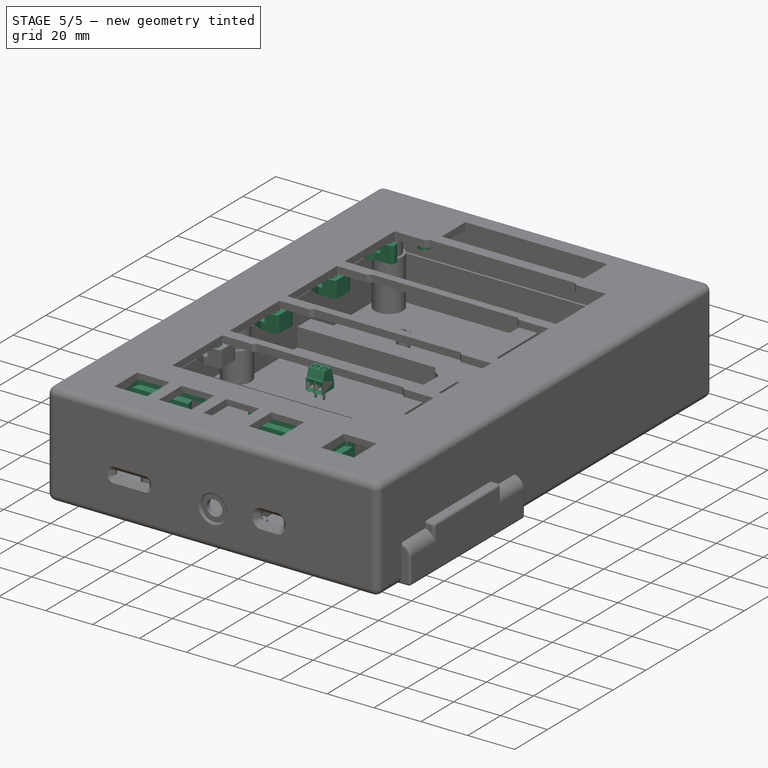
[diagram: stage 5 of 5 — iso view after this stage's code; geometry added in this stage tinted green]
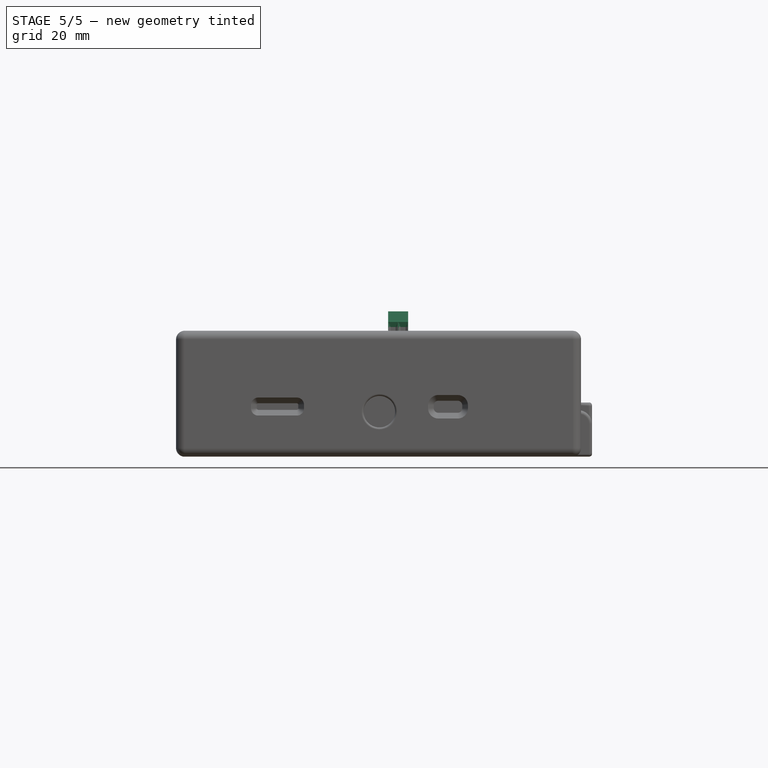
[diagram: stage 5 of 5 — front view after this stage's code; geometry added in this stage tinted green]
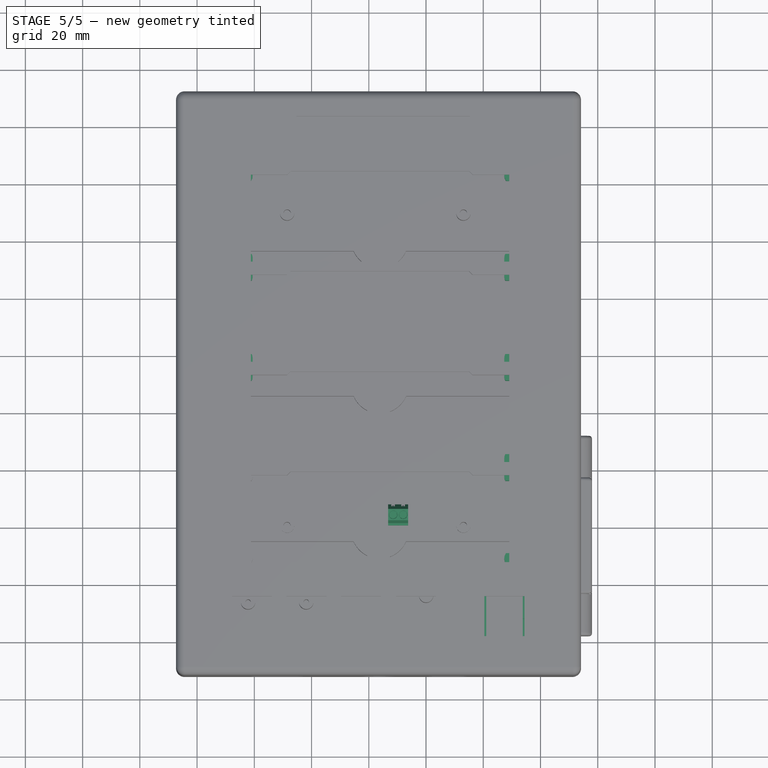
[diagram: stage 5 of 5 — top view after this stage's code; geometry added in this stage tinted green]
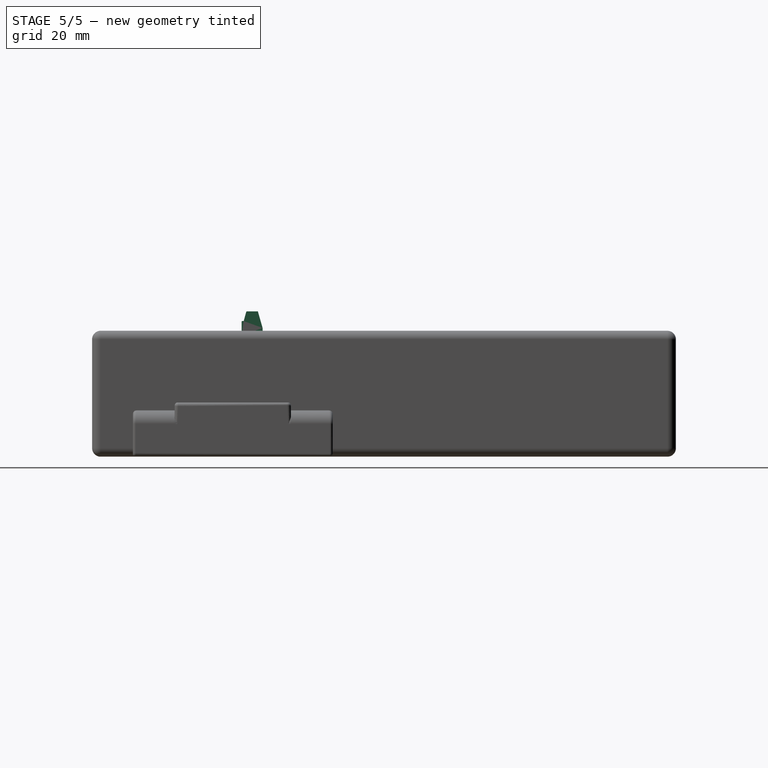
[diagram: stage 5 of 5 — right view after this stage's code; geometry added in this stage tinted green]
FEATURE [PartDesign::CoordinateSystem] Local_CS_1dc7
  AttacherType = Attacher::AttachEngine3D
  MapMode = 2
FEATURE [Part::Feature] Pcb_1dc7
  shape: bbox 121.2 x 73.53 x 1.6 mm, 181 faces (baked)
FEATURE [Sketcher::SketchObject] PCB_Sketch_1dc7
  ArcFitTolerance = 1e-06
  FullyConstrained = false
  MakeInternals = false
  sketch-geometry (4):
    g0: LineSegment StartX=91.186 StartY=-68.961 StartZ=0 EndX=212.344 EndY=-68.961 EndZ=0
    g1: LineSegment StartX=212.344 StartY=-68.961 StartZ=0 EndX=212.344 EndY=-142.494 EndZ=0
    g2: LineSegment StartX=212.344 StartY=-142.494 StartZ=0 EndX=91.186 EndY=-142.494 EndZ=0
    g3: LineSegment StartX=91.186 StartY=-142.494 StartZ=0 EndX=91.186 EndY=-68.961 EndZ=0
  constraints (4):
    c: Coincident(g2,g3)
    c: Coincident(g0,g3)
    c: Coincident(g1,g2)
    c: Coincident(g0,g1)
FEATURE [App::Part] Board_Geoms_1dc7
  Group = -> [Pcb_1dc7,PCB_Sketch_1dc7]
  Origin = -> Origin
FEATURE [Part::Feature] Shape  label="U4_JST_B2B_XH_A_40f5631435e5"
  Placement = pos=(201.185,-84.475,0) rot=(0,0,-1;1.5708rad)
  shape: bbox 5.75 x 7.4 x 10.4 mm, 89 faces (baked)
FEATURE [Part::Feature] Part__Feature  label="Sparkfun_Ublox_M9N"
  shape: bbox 15.88 x 2 x 12.08 mm, 6 faces (baked)
FEATURE [Part::Feature] Part__Feature001  label="Sparkfun_Ublox_M9N001"
  shape: bbox 33.02 x 1.5 x 40.46 mm, 30 faces (baked)
FEATURE [Part::Feature] Part__Feature002  label="Sparkfun_Ublox_M9N002"
  shape: bbox 1.122 x 0.6 x 1.632 mm, 6 faces (baked)
FEATURE [Part::Feature] Part__Feature003  label="Sparkfun_Ublox_M9N003"
  shape: bbox 3.027 x 0.5 x 2.649 mm, 6 faces (baked)
FEATURE [Part::Feature] Part__Feature004  label="Sparkfun_Ublox_M9N004"
  shape: bbox 2.266 x 1 x 2.266 mm, 6 faces (baked)
FEATURE [Part::Feature] Part__Feature005  label="Sparkfun_Ublox_M9N005"
  shape: bbox 5.478 x 1 x 5.478 mm, 4 faces (baked)
FEATURE [Part::Feature] Part__Feature006  label="Sparkfun_Ublox_M9N006"
  shape: bbox 0.581 x 0.1 x 0.7208 mm, 6 faces (baked)
FEATURE [Part::Feature] Part__Feature007  label="Sparkfun_Ublox_M9N007"
  shape: bbox 0.5549 x 0.1 x 0.8987 mm, 6 faces (baked)
FEATURE [Part::Feature] Part__Feature008  label="Sparkfun_Ublox_M9N008"
  shape: bbox 0.7262 x 0.1 x 0.893 mm, 6 faces (baked)
FEATURE [Part::Feature] Part__Feature009  label="Sparkfun_Ublox_M9N009"
  shape: bbox 0.5926 x 0.1 x 0.9033 mm, 6 faces (baked)
FEATURE [Part::Feature] Part__Feature010  label="Sparkfun_Ublox_M9N010"
  shape: bbox 0.6357 x 0.1 x 0.8826 mm, 6 faces (baked)
FEATURE [Part::Feature] Part__Feature011  label="Sparkfun_Ublox_M9N011"
  shape: bbox 0.7007 x 0.1 x 0.8876 mm, 6 faces (baked)
FEATURE [Part::Feature] Part__Feature012  label="Sparkfun_Ublox_M9N012"
  shape: bbox 0.7543 x 0.1 x 0.9015 mm, 6 faces (baked)
FEATURE [Part::Feature] Part__Feature013  label="Sparkfun_Ublox_M9N013"
  shape: bbox 0.6214 x 0.1 x 0.9178 mm, 6 faces (baked)
FEATURE [Part::Feature] Part__Feature014  label="Sparkfun_Ublox_M9N014"
  shape: bbox 0.4889 x 0.1 x 0.8184 mm, 6 faces (baked)
FEATURE [Part::Feature] Part__Feature015  label="Sparkfun_Ublox_M9N015"
  shape: bbox 0.5624 x 0.1 x 0.7333 mm, 6 faces (baked)
FEATURE [Part::Feature] Part__Feature016  label="Sparkfun_Ublox_M9N016"
  shape: bbox 0.2082 x 0.1 x 0.1615 mm, 6 faces (baked)
FEATURE [Part::Feature] Part__Feature017  label="Sparkfun_Ublox_M9N017"
  shape: bbox 0.2191 x 0.1 x 0.1974 mm, 6 faces (baked)
FEATURE [Part::Feature] Part__Feature018  label="Sparkfun_Ublox_M9N018"
  shape: bbox 0.28 x 0.1 x 0.2153 mm, 6 faces (baked)
FEATURE [Part::Feature] Part__Feature019  label="Sparkfun_Ublox_M9N019"
  shape: bbox 0.2437 x 0.1 x 0.1487 mm, 6 faces (baked)
FEATURE [Part::Feature] Part__Feature020  label="Sparkfun_Ublox_M9N020"
  shape: bbox 0.3083 x 0.1 x 0.2153 mm, 6 faces (baked)
FEATURE [Part::Feature] Part__Feature021  label="Sparkfun_Ublox_M9N021"
  shape: bbox 0.5177 x 0.1 x 0.7573 mm, 6 faces (baked)
FEATURE [Part::Feature] Part__Feature022  label="Sparkfun_Ublox_M9N022"
  shape: bbox 0.5757 x 0.1 x 0.7269 mm, 6 faces (baked)
FEATURE [Part::Feature] Part__Feature023  label="Sparkfun_Ublox_M9N023"
  shape: bbox 1.068 x 0.1 x 0.9045 mm, 6 faces (baked)
FEATURE [Part::Feature] Part__Feature024  label="Sparkfun_Ublox_M9N024"
  shape: bbox 0.8968 x 0.1 x 0.9479 mm, 6 faces (baked)
FEATURE [Part::Feature] Part__Feature025  label="Sparkfun_Ublox_M9N025"
  shape: bbox 0.9092 x 0.1 x 0.9623 mm, 6 faces (baked)
FEATURE [Part::Feature] Part__Feature026  label="Sparkfun_Ublox_M9N026"
  shape: bbox 0.8828 x 0.1 x 0.9623 mm, 6 faces (baked)
FEATURE [Part::Feature] Part__Feature027  label="Sparkfun_Ublox_M9N027"
  shape: bbox 0.9045 x 0.1 x 0.9623 mm, 6 faces (baked)
FEATURE [Part::Feature] Part__Feature028  label="Sparkfun_Ublox_M9N028"
  shape: bbox 1.172 x 0.1 x 0.7236 mm, 6 faces (baked)
FEATURE [Part::Feature] Part__Feature029  label="Sparkfun_Ublox_M9N029"
  shape: bbox 1.131 x 0.1 x 0.6563 mm, 6 faces (baked)
FEATURE [Part::Feature] Part__Feature030  label="Sparkfun_Ublox_M9N030"
  shape: bbox 1.038 x 0.1 x 0.636 mm, 6 faces (baked)
FEATURE [Part::Feature] Part__Feature031  label="Sparkfun_Ublox_M9N031"
  shape: bbox 1.085 x 0.1 x 0.6563 mm, 6 faces (baked)
FEATURE [Part::Feature] Part__Feature032  label="Sparkfun_Ublox_M9N032"
  shape: bbox 1.108 x 0.1 x 0.636 mm, 6 faces (baked)
FEATURE [Part::Feature] Part__Feature033  label="Sparkfun_Ublox_M9N033"
  shape: bbox 1.085 x 0.1 x 0.6563 mm, 6 faces (baked)
FEATURE [Part::Feature] Part__Feature034  label="Sparkfun_Ublox_M9N034"
  shape: bbox 1.085 x 0.1 x 0.5691 mm, 6 faces (baked)
FEATURE [Part::Feature] Part__Feature035  label="Sparkfun_Ublox_M9N035"
  shape: bbox 1.085 x 0.1 x 0.5904 mm, 6 faces (baked)
FEATURE [Part::Feature] Part__Feature036  label="Sparkfun_Ublox_M9N036"
  shape: bbox 1.085 x 0.1 x 0.5857 mm, 6 faces (baked)
FEATURE [Part::Feature] Part__Feature037  label="Sparkfun_Ublox_M9N037"
  shape: bbox 0.909 x 0.1 x 0.7012 mm, 6 faces (baked)
FEATURE [Part::Feature] Part__Feature038  label="Sparkfun_Ublox_M9N038"
  shape: bbox 1.088 x 0.1 x 0.4763 mm, 6 faces (baked)
FEATURE [Part::Feature] Part__Feature039  label="Sparkfun_Ublox_M9N039"
  shape: bbox 1.088 x 0.1 x 0.7012 mm, 6 faces (baked)
FEATURE [Part::Feature] Part__Feature040  label="Sparkfun_Ublox_M9N040"
  shape: bbox 1.093 x 0.1 x 0.4069 mm, 6 faces (baked)
FEATURE [Part::Feature] Part__Feature041  label="Sparkfun_Ublox_M9N041"
  shape: bbox 0.9396 x 0.1 x 0.7231 mm, 6 faces (baked)
FEATURE [Part::Feature] Part__Feature042  label="Sparkfun_Ublox_M9N042"
  shape: bbox 1.372 x 0.1 x 0.5767 mm, 6 faces (baked)
FEATURE [Part::Feature] Part__Feature043  label="Sparkfun_Ublox_M9N043"
  shape: bbox 1.283 x 0.1 x 0.4764 mm, 6 faces (baked)
FEATURE [Part::Feature] Part__Feature044  label="Sparkfun_Ublox_M9N044"
  shape: bbox 1.009 x 0.1 x 0.9623 mm, 6 faces (baked)
FEATURE [Part::Feature] Part__Feature045  label="Sparkfun_Ublox_M9N045"
  shape: bbox 0.9688 x 0.1 x 0.9623 mm, 6 faces (baked)
FEATURE [Part::Feature] Part__Feature046  label="Sparkfun_Ublox_M9N046"
  shape: bbox 0.9336 x 0.1 x 0.9623 mm, 6 faces (baked)
FEATURE [Part::Feature] Part__Feature047  label="Sparkfun_Ublox_M9N047"
  shape: bbox 0.837 x 0.1 x 0.9623 mm, 6 faces (baked)
FEATURE [Part::Feature] Part__Feature048  label="Sparkfun_Ublox_M9N048"
  shape: bbox 0.8236 x 0.1 x 0.9045 mm, 6 faces (baked)
FEATURE [Part::Feature] Part__Feature049  label="Sparkfun_Ublox_M9N049"
  shape: bbox 0.777 x 0.1 x 0.9045 mm, 6 faces (baked)
FEATURE [Part::Feature] Part__Feature050  label="Sparkfun_Ublox_M9N050"
  shape: bbox 0.8271 x 0.1 x 0.9623 mm, 6 faces (baked)
FEATURE [Part::Feature] Part__Feature051  label="Sparkfun_Ublox_M9N051"
  shape: bbox 1.105 x 0.1 x 0.6487 mm, 6 faces (baked)
FEATURE [Part::Feature] Part__Feature052  label="Sparkfun_Ublox_M9N052"
  shape: bbox 0.9035 x 0.1 x 0.6487 mm, 6 faces (baked)
FEATURE [Part::Feature] Part__Feature053  label="Sparkfun_Ublox_M9N053"
  shape: bbox 0.8811 x 0.1 x 0.6487 mm, 6 faces (baked)
FEATURE [Part::Feature] Part__Feature054  label="Sparkfun_Ublox_M9N054"
  shape: bbox 0.9841 x 0.1 x 0.6487 mm, 6 faces (baked)
FEATURE [Part::Feature] Part__Feature055  label="Sparkfun_Ublox_M9N055"
  shape: bbox 0.893 x 0.1 x 0.6487 mm, 6 faces (baked)
FEATURE [Part::Feature] Part__Feature056  label="Sparkfun_Ublox_M9N056"
  shape: bbox 0.777 x 0.1 x 0.6487 mm, 6 faces (baked)
FEATURE [Part::Feature] Part__Feature057  label="Sparkfun_Ublox_M9N057"
  shape: bbox 0.8271 x 0.1 x 0.6487 mm, 6 faces (baked)
FEATURE [Part::Feature] Part__Feature058  label="Sparkfun_Ublox_M9N058"
  shape: bbox 1.078 x 0.1 x 0.5965 mm, 6 faces (baked)
FEATURE [Part::Feature] Part__Feature059  label="Sparkfun_Ublox_M9N059"
  shape: bbox 1.024 x 0.1 x 0.7091 mm, 6 faces (baked)
FEATURE [Part::Feature] Part__Feature060  label="Sparkfun_Ublox_M9N060"
  shape: bbox 1.006 x 0.1 x 0.6487 mm, 6 faces (baked)
FEATURE [Part::Feature] Part__Feature061  label="Sparkfun_Ublox_M9N061"
  shape: bbox 0.9012 x 0.1 x 0.7091 mm, 6 faces (baked)
FEATURE [Part::Feature] Part__Feature062  label="Sparkfun_Ublox_M9N062"
  shape: bbox 0.8587 x 0.1 x 0.7091 mm, 6 faces (baked)
FEATURE [Part::Feature] Part__Feature063  label="Sparkfun_Ublox_M9N063"
  shape: bbox 2.032 x 0.1 x 0.5289 mm, 6 faces (baked)
FEATURE [Part::Feature] Part__Feature064  label="Sparkfun_Ublox_M9N064"
  shape: bbox 1.756 x 0.1 x 0.7297 mm, 6 faces (baked)
FEATURE [Part::Feature] Part__Feature065  label="Sparkfun_Ublox_M9N065"
  shape: bbox 2.766 x 0.1 x 0.861 mm, 6 faces (baked)
FEATURE [Part::Feature] Part__Feature066  label="Sparkfun_Ublox_M9N066"
  shape: bbox 1.567 x 0.1 x 0.8444 mm, 6 faces (baked)
FEATURE [Part::Feature] Part__Feature067  label="Sparkfun_Ublox_M9N067"
  shape: bbox 0.5874 x 0.1 x 0.7647 mm, 6 faces (baked)
FEATURE [Part::Feature] Part__Feature068  label="Sparkfun_Ublox_M9N068"
  shape: bbox 0.7001 x 0.1 x 0.8047 mm, 6 faces (baked)
FEATURE [Part::Feature] Part__Feature069  label="Sparkfun_Ublox_M9N069"
  shape: bbox 0.7729 x 0.1 x 0.8812 mm, 6 faces (baked)
FEATURE [Part::Feature] Part__Feature070  label="Sparkfun_Ublox_M9N070"
  shape: bbox 0.7091 x 0.1 x 0.8812 mm, 6 faces (baked)
FEATURE [Part::Feature] Part__Feature071  label="Sparkfun_Ublox_M9N071"
  shape: bbox 0.5773 x 0.1 x 1.015 mm, 6 faces (baked)
FEATURE [Part::Feature] Part__Feature072  label="Sparkfun_Ublox_M9N072"
  shape: bbox 0.8942 x 0.1 x 0.7729 mm, 6 faces (baked)
FEATURE [Part::Feature] Part__Feature073  label="Sparkfun_Ublox_M9N073"
  shape: bbox 0.4536 x 0.1 x 2.048 mm, 6 faces (baked)
FEATURE [Part::Feature] Part__Feature074  label="Sparkfun_Ublox_M9N074"
  shape: bbox 1.082 x 0.1 x 0.8104 mm, 6 faces (baked)
FEATURE [Part::Feature] Part__Feature075  label="Sparkfun_Ublox_M9N075"
  shape: bbox 0.5893 x 0.1 x 2.098 mm, 6 faces (baked)
FEATURE [Part::Feature] Part__Feature076  label="Sparkfun_Ublox_M9N076"
  shape: bbox 1.228 x 0.1 x 0.4603 mm, 6 faces (baked)
FEATURE [Part::Feature] Part__Feature077  label="Sparkfun_Ublox_M9N077"
  shape: bbox 2.571 x 0.1 x 0.7333 mm, 6 faces (baked)
FEATURE [Part::Feature] Part__Feature078  label="Sparkfun_Ublox_M9N078"
  shape: bbox 0.6455 x 0.1 x 0.6596 mm, 6 faces (baked)
FEATURE [Part::Feature] Part__Feature079  label="Sparkfun_Ublox_M9N079"
  shape: bbox 0.6883 x 0.1 x 0.7486 mm, 6 faces (baked)
FEATURE [Part::Feature] Part__Feature080  label="Sparkfun_Ublox_M9N080"
  shape: bbox 6 x 2.96 x 4.95 mm, 89 faces (baked)
FEATURE [Part::Feature] Part__Feature081  label="Sparkfun_Ublox_M9N081"
  shape: bbox 6.8 x 4.223 x 8.94 mm, 275 faces (baked)
FEATURE [Part::Feature] Part__Feature082  label="Sparkfun_Ublox_M9N082"
  shape: bbox 0.65 x 0.4101 x 0.6 mm, 9 faces (baked)
FEATURE [Part::Feature] Part__Feature083  label="Sparkfun_Ublox_M9N083"
  shape: bbox 0.65 x 0.4101 x 0.6 mm, 9 faces (baked)
FEATURE [Part::Feature] Part__Feature084  label="Sparkfun_Ublox_M9N084"
  shape: bbox 0.65 x 0.4101 x 0.6 mm, 9 faces (baked)
FEATURE [Part::Feature] Part__Feature085  label="Sparkfun_Ublox_M9N085"
  shape: bbox 0.65 x 0.4101 x 0.6 mm, 9 faces (baked)
FEATURE [Part::Feature] Part__Feature086  label="Sparkfun_Ublox_M9N086"
  shape: bbox 0.65 x 0.4101 x 0.6 mm, 9 faces (baked)
FEATURE [Part::Feature] Part__Feature087  label="Sparkfun_Ublox_M9N087"
  shape: bbox 0.65 x 0.4101 x 0.6 mm, 9 faces (baked)
FEATURE [Part::Feature] Part__Feature088  label="Sparkfun_Ublox_M9N088"
  shape: bbox 2.175 x 0.15 x 0.725 mm, 15 faces (baked)
FEATURE [Part::Feature] Part__Feature089  label="Sparkfun_Ublox_M9N089"
  shape: bbox 2.175 x 0.15 x 0.725 mm, 15 faces (baked)
FEATURE [Part::Feature] Part__Feature090  label="Sparkfun_Ublox_M9N090"
  shape: bbox 6.555 x 2.595 x 8.325 mm, 120 faces (baked)
FEATURE [Part::Feature] Part__Feature091  label="Sparkfun_Ublox_M9N091"
  shape: bbox 2.411 x 0.2 x 0.23 mm, 6 faces (baked)
FEATURE [Part::Feature] Part__Feature092  label="Sparkfun_Ublox_M9N092"
  shape: bbox 2.411 x 0.2 x 0.23 mm, 6 faces (baked)
FEATURE [Part::Feature] Part__Feature093  label="Sparkfun_Ublox_M9N093"
  shape: bbox 2.411 x 0.2 x 0.23 mm, 6 faces (baked)
FEATURE [Part::Feature] Part__Feature094  label="Sparkfun_Ublox_M9N094"
  shape: bbox 2.411 x 0.2 x 0.23 mm, 6 faces (baked)
FEATURE [Part::Feature] Part__Feature095  label="Sparkfun_Ublox_M9N095"
  shape: bbox 2.411 x 0.2 x 0.23 mm, 6 faces (baked)
FEATURE [Part::Feature] Part__Feature096  label="Sparkfun_Ublox_M9N096"
  shape: bbox 2.411 x 0.2 x 0.23 mm, 6 faces (baked)
FEATURE [Part::Feature] Part__Feature097  label="Sparkfun_Ublox_M9N097"
  shape: bbox 2.712 x 0.1 x 2.124 mm, 6 faces (baked)
FEATURE [Part::Feature] Part__Feature098  label="Sparkfun_Ublox_M9N098"
  shape: bbox 2.341 x 0.1 x 1.74 mm, 6 faces (baked)
FEATURE [Part::Feature] Part__Feature099  label="Sparkfun_Ublox_M9N099"
  shape: bbox 6 x 2.96 x 4.95 mm, 89 faces (baked)
FEATURE [Part::Feature] Part__Feature100  label="Sparkfun_Ublox_M9N100"
  shape: bbox 0.5732 x 0.1 x 0.7049 mm, 6 faces (baked)
FEATURE [Part::Feature] Part__Feature101  label="Sparkfun_Ublox_M9N101"
  shape: bbox 0.6791 x 0.1 x 0.8224 mm, 6 faces (baked)
FEATURE [Part::Feature] Part__Feature102  label="Sparkfun_Ublox_M9N102"
  shape: bbox 0.5846 x 0.1 x 0.8972 mm, 6 faces (baked)
FEATURE [Part::Feature] Part__Feature103  label="Sparkfun_Ublox_M9N103"
  shape: bbox 0.6782 x 0.1 x 0.8972 mm, 6 faces (baked)
FEATURE [Part::Feature] Part__Feature104  label="Sparkfun_Ublox_M9N104"
  shape: bbox 2.207 x 0.1 x 1.076 mm, 9 faces (baked)
FEATURE [Part::Feature] Part__Feature105  label="Sparkfun_Ublox_M9N105"
  shape: bbox 2.558 x 0.1 x 0.9145 mm, 9 faces (baked)
FEATURE [Part::Feature] Part__Feature106  label="Sparkfun_Ublox_M9N106"
  shape: bbox 1.434 x 0.1 x 0.2293 mm, 6 faces (baked)
FEATURE [Part::Feature] Part__Feature107  label="Sparkfun_Ublox_M9N107"
  shape: bbox 1.434 x 0.1 x 0.2293 mm, 6 faces (baked)
FEATURE [Part::Feature] Part__Feature108  label="Sparkfun_Ublox_M9N108"
  shape: bbox 1.434 x 0.1 x 0.2293 mm, 6 faces (baked)
FEATURE [Part::Feature] Part__Feature109  label="Sparkfun_Ublox_M9N109"
  shape: bbox 1.434 x 0.1 x 0.2293 mm, 6 faces (baked)
FEATURE [Part::Feature] Part__Feature110  label="Sparkfun_Ublox_M9N110"
  shape: bbox 1.434 x 0.1 x 0.2293 mm, 6 faces (baked)
FEATURE [Part::Feature] Part__Feature111  label="Sparkfun_Ublox_M9N111"
  shape: bbox 1.434 x 0.1 x 0.2293 mm, 6 faces (baked)
FEATURE [Part::Feature] Part__Feature112  label="Sparkfun_Ublox_M9N112"
  shape: bbox 1.434 x 0.1 x 0.2293 mm, 6 faces (baked)
FEATURE [Part::Feature] Part__Feature113  label="Sparkfun_Ublox_M9N113"
  shape: bbox 1.434 x 0.1 x 0.2293 mm, 6 faces (baked)
FEATURE [Part::Feature] Part__Feature114  label="Sparkfun_Ublox_M9N114"
  shape: bbox 0.5732 x 0.1 x 0.7049 mm, 6 faces (baked)
FEATURE [Part::Feature] Part__Feature115  label="Sparkfun_Ublox_M9N115"
  shape: bbox 0.6791 x 0.1 x 0.8224 mm, 6 faces (baked)
FEATURE [Part::Feature] Part__Feature116  label="Sparkfun_Ublox_M9N116"
  shape: bbox 0.5846 x 0.1 x 0.8972 mm, 6 faces (baked)
FEATURE [Part::Feature] Part__Feature117  label="Sparkfun_Ublox_M9N117"
  shape: bbox 0.6782 x 0.1 x 0.8972 mm, 6 faces (baked)
FEATURE [Part::Feature] Part__Feature118  label="Sparkfun_Ublox_M9N118"
  shape: bbox 2.811 x 0.6 x 1.678 mm, 6 faces (baked)
FEATURE [Part::Feature] Part__Feature119  label="Sparkfun_Ublox_M9N119"
  shape: bbox 1.546 x 0.6 x 0.8714 mm, 6 faces (baked)
FEATURE [Part::Feature] Part__Feature120  label="Sparkfun_Ublox_M9N120"
  shape: bbox 1.673 x 0.6 x 0.8433 mm, 6 faces (baked)
FEATURE [Part::Feature] Part__Feature121  label="Sparkfun_Ublox_M9N121"
  shape: bbox 1.743 x 0.6 x 0.9417 mm, 6 faces (baked)
FEATURE [Part::Feature] Part__Feature122  label="Sparkfun_Ublox_M9N122"
  shape: bbox 1.743 x 0.6 x 0.9136 mm, 6 faces (baked)
FEATURE [Part::Feature] Part__Feature123  label="Sparkfun_Ublox_M9N123"
  shape: bbox 1.518 x 0.6 x 0.9136 mm, 6 faces (baked)
FEATURE [Part::Feature] Part__Feature124  label="Sparkfun_Ublox_M9N124"
  shape: bbox 1.771 x 0.6 x 0.8855 mm, 6 faces (baked)
FEATURE [Part::Feature] Part__Feature125  label="Sparkfun_Ublox_M9N125"
  shape: bbox 1.068 x 0.6 x 1.504 mm, 6 faces (baked)
FEATURE [Part::Feature] Part__Feature126  label="Sparkfun_Ublox_M9N126"
  shape: bbox 0.9698 x 0.6 x 1.504 mm, 6 faces (baked)
FEATURE [Part::Feature] Part__Feature127  label="Sparkfun_Ublox_M9N127"
  shape: bbox 0.9683 x 0.6 x 1.422 mm, 6 faces (baked)
FEATURE [Part::Feature] Part__Feature128  label="Sparkfun_Ublox_M9N128"
  shape: bbox 0.9392 x 0.6 x 1.297 mm, 6 faces (baked)
FEATURE [Part::Feature] Part__Feature129  label="Sparkfun_Ublox_M9N129"
  shape: bbox 0.9335 x 0.6 x 1.437 mm, 6 faces (baked)
FEATURE [Part::Feature] Part__Feature130  label="Sparkfun_Ublox_M9N130"
  shape: bbox 0.9005 x 0.6 x 1.422 mm, 6 faces (baked)
FEATURE [Part::Feature] Part__Feature131  label="Sparkfun_Ublox_M9N131"
  shape: bbox 1.249 x 0.6 x 1.644 mm, 6 faces (baked)
FEATURE [Part::Feature] Part__Feature132  label="Sparkfun_Ublox_M9N132"
  shape: bbox 1.241 x 0.6 x 0.8428 mm, 6 faces (baked)
FEATURE [Part::Feature] Part__Feature133  label="Sparkfun_Ublox_M9N133"
  shape: bbox 0.9965 x 0.5 x 1.398 mm, 6 faces (baked)
FEATURE [Part::Feature] Part__Feature134  label="Sparkfun_Ublox_M9N134"
  shape: bbox 1.653 x 0.5 x 0.8861 mm, 6 faces (baked)
FEATURE [Part::Feature] Part__Feature135  label="Sparkfun_Ublox_M9N135"
  shape: bbox 1.644 x 0.5 x 0.7813 mm, 6 faces (baked)
FEATURE [Part::Feature] Part__Feature136  label="Sparkfun_Ublox_M9N136"
  shape: bbox 0.7956 x 0.5 x 1.496 mm, 6 faces (baked)
FEATURE [Part::Feature] Part__Feature137  label="Sparkfun_Ublox_M9N137"
  shape: bbox 1.753 x 0.5 x 0.8146 mm, 6 faces (baked)
FEATURE [Part::Feature] Part__Feature138  label="Sparkfun_Ublox_M9N138"
  shape: bbox 1.701 x 0.5 x 0.8203 mm, 6 faces (baked)
FEATURE [Part::Feature] Part__Feature139  label="Sparkfun_Ublox_M9N139"
  shape: bbox 1.762 x 0.5 x 0.9077 mm, 6 faces (baked)
FEATURE [Part::Feature] Part__Feature140  label="Sparkfun_Ublox_M9N140"
  shape: bbox 0.5754 x 0.1 x 0.7851 mm, 6 faces (baked)
FEATURE [Part::Feature] Part__Feature141  label="Sparkfun_Ublox_M9N141"
  shape: bbox 1.095 x 0.1 x 0.5389 mm, 6 faces (baked)
FEATURE [Part::Feature] Part__Feature142  label="Sparkfun_Ublox_M9N142"
  shape: bbox 1.262 x 0.1 x 0.5758 mm, 6 faces (baked)
FEATURE [Part::Feature] Part__Feature143  label="Sparkfun_Ublox_M9N143"
  shape: bbox 1.205 x 0.1 x 0.6099 mm, 6 faces (baked)
FEATURE [Part::Feature] Part__Feature144  label="Sparkfun_Ublox_M9N144"
  shape: bbox 0.5641 x 0.1 x 0.7425 mm, 6 faces (baked)
FEATURE [Part::Feature] Part__Feature145  label="Sparkfun_Ublox_M9N145"
  shape: bbox 0.4432 x 0.1 x 0.7728 mm, 6 faces (baked)
FEATURE [Part::Feature] Part__Feature146  label="Sparkfun_Ublox_M9N146"
  shape: bbox 0.3639 x 0.1 x 0.7851 mm, 6 faces (baked)
FEATURE [App::Part] Sparkfun_Ublox_M9N  label="U2_Sparkfun_Ublox_M9N147_9d512738489d"
  Group = -> [Part__Feature,Part__Feature001,Part__Feature002,Part__Feature003,Part__Feature004,Part__Feature005,Part__Feature006,Part__Feature007,Part__Feature008,Part__Feature009,Part__Feature010,Part__Feature011,Part__Feature012,Part__Feature013,Part__Feature014,Part__Feature015,Part__Feature016,Part__Feature017,Part__Feature018,Part__Feature019,Part__Feature020,Part__Feature021,Part__Feature022,+124 more]
  Origin = -> Origin008
  Placement = pos=(162.814,-90.805,13.335) rot=(0.57735,0.57735,0.57735;2.0944rad)
FEATURE [Part::Feature] Shape001  label="U2_PinSocket_1x08_P2.54mm_Vertical_9d512738489d[2]"
  Placement = pos=(156.464,-108.204,0.127) rot=(0,0,1;1.5708rad)
  shape: bbox 20.32 x 2.54 x 11.6 mm, 218 faces (baked)
FEATURE [Part::Feature] Shape002  label="U2_PinHeader_1x08_P254mm_Vertical_9d512738489d[3]"
  Placement = pos=(156.464,-108.204,11.43) rot=(0.707107,-0.707107,0;3.14159rad)
  shape: bbox 20.32 x 2.54 x 11.54 mm, 196 faces (baked)
FEATURE [Part::Feature] Shape003  label="U2_PinSocket_1x07_P2.54mm_Vertical_9d512738489d[4]"
  Placement = pos=(161.544,-77.724,0.127) rot=(0,0,1;1.5708rad)
  shape: bbox 17.78 x 2.54 x 11.6 mm, 192 faces (baked)
FEATURE [Part::Feature] Shape004  label="U2_PinHeader_1x07_P254mm_Vertical_9d512738489d[5]"
  Placement = pos=(161.544,-77.724,11.43) rot=(0.707107,-0.707107,0;3.14159rad)
  shape: bbox 17.78 x 2.54 x 11.54 mm, 172 faces (baked)
FEATURE [Part::Feature] Shape005  label="U2_Mounting_Wuerth_WA_SMST_33mm_H12mm_9774120960_9d512738489d[6]"
  Placement = pos=(145.161,-78.994,0) rot=(0,0,1;0rad)
  shape: bbox 6 x 6 x 13.4 mm, 6 faces (baked)
FEATURE [App::Link] U2_Mounting_Wuerth_WA_SMST_33mm_H12mm_9774120960_9d512738489d_6__ln_  label="U2_Mounting_Wuerth_WA_SMST_33mm_H12mm_9774120960_9d512738489d[7]"
  LinkPlacement = pos=(145.161,-106.934,0) rot=(0,0,1;0rad)
  LinkedObject = -> Shape005
  Placement = pos=(145.161,-106.934,0) rot=(0,0,1;0rad)
FEATURE [App::Link] U2_Mounting_Wuerth_WA_SMST_33mm_H12mm_9774120960_9d512738489d_6__ln_001  label="U2_Mounting_Wuerth_WA_SMST_33mm_H12mm_9774120960_9d512738489d[8]"
  LinkPlacement = pos=(180.721,-106.934,0) rot=(0,0,1;0rad)
  LinkedObject = -> Shape005
  Placement = pos=(180.721,-106.934,0) rot=(0,0,1;0rad)
FEATURE [App::Link] U2_Mounting_Wuerth_WA_SMST_33mm_H12mm_9774120960_9d512738489d_6__ln_002  label="U2_Mounting_Wuerth_WA_SMST_33mm_H12mm_9774120960_9d512738489d[9]"
  LinkPlacement = pos=(180.721,-78.994,0) rot=(0,0,1;0rad)
  LinkedObject = -> Shape005
  Placement = pos=(180.721,-78.994,0) rot=(0,0,1;0rad)
FEATURE [Part::Feature] Shape006  label="U7_PinHeader_1x06_P254mm_Vertical_ec8322c6d4ba"
  Placement = pos=(199.39,-95.25,0) rot=(0,0,1;0rad)
  shape: bbox 2.54 x 15.24 x 11.54 mm, 148 faces (baked)
FEATURE [Part::Feature] Shape007  label="U6_PinHeader_1x05_P254mm_Vertical_0f8c9febcc9a"
  Placement = pos=(190.5,-80.65,0) rot=(0,0,1;0rad)
  shape: bbox 2.54 x 12.7 x 11.54 mm, 124 faces (baked)
FEATURE [Part::Feature] Part__Feature147  label="DEV-15583 board"
  shape: bbox 1.63 x 1.57 x 1.63 mm, 6 faces (baked)
FEATURE [Part::Feature] Part__Feature148  label="DEV-15583 board001"
  shape: bbox 1.63 x 1.57 x 1.63 mm, 6 faces (baked)
FEATURE [Part::Feature] Part__Feature149  label="DEV-15583 board002"
  shape: bbox 1.63 x 1.57 x 1.63 mm, 6 faces (baked)
FEATURE [Part::Feature] Part__Feature150  label="DEV-15583 board003"
  shape: bbox 1.63 x 1.57 x 1.63 mm, 6 faces (baked)
FEATURE [Part::Feature] Part__Feature151  label="DEV-15583 board004"
  shape: bbox 1.63 x 1.57 x 1.63 mm, 6 faces (baked)
FEATURE [Part::Feature] Part__Feature152  label="DEV-15583 board005"
  shape: bbox 1.63 x 1.57 x 1.63 mm, 6 faces (baked)
FEATURE [Part::Feature] Part__Feature153  label="DEV-15583 board006"
  shape: bbox 1.63 x 1.57 x 1.63 mm, 6 faces (baked)
FEATURE [Part::Feature] Part__Feature154  label="DEV-15583 board007"
  shape: bbox 1.63 x 1.57 x 1.63 mm, 6 faces (baked)
FEATURE [Part::Feature] Part__Feature155  label="DEV-15583 board008"
  shape: bbox 1.63 x 1.57 x 1.63 mm, 6 faces (baked)
FEATURE [Part::Feature] Part__Feature156  label="DEV-15583 board009"
  shape: bbox 1.63 x 1.57 x 1.63 mm, 6 faces (baked)
FEATURE [Part::Feature] Part__Feature157  label="DEV-15583 board010"
  shape: bbox 1.63 x 1.57 x 1.63 mm, 6 faces (baked)
FEATURE [Part::Feature] Part__Feature158  label="DEV-15583 board011"
  shape: bbox 1.63 x 1.57 x 1.63 mm, 6 faces (baked)
FEATURE [Part::Feature] Part__Feature159  label="DEV-15583 board012"
  shape: bbox 1.63 x 1.57 x 1.63 mm, 6 faces (baked)
FEATURE [Part::Feature] Part__Feature160  label="DEV-15583 board013"
  shape: bbox 1.63 x 1.57 x 1.63 mm, 6 faces (baked)
FEATURE [Part::Feature] Part__Feature161  label="DEV-15583 board014"
  shape: bbox 1.63 x 1.57 x 1.63 mm, 6 faces (baked)
FEATURE [Part::Feature] Part__Feature162  label="DEV-15583 board015"
  shape: bbox 1.63 x 1.57 x 1.63 mm, 6 faces (baked)
FEATURE [Part::Feature] Part__Feature163  label="DEV-15583 board016"
  shape: bbox 1.63 x 1.57 x 1.63 mm, 6 faces (baked)
FEATURE [Part::Feature] Part__Feature164  label="DEV-15583 board017"
  shape: bbox 1.63 x 1.57 x 1.63 mm, 6 faces (baked)
FEATURE [Part::Feature] Part__Feature165  label="DEV-15583 board018"
  shape: bbox 1.63 x 1.57 x 1.63 mm, 6 faces (baked)
FEATURE [Part::Feature] Part__Feature166  label="DEV-15583 board019"
  shape: bbox 1.63 x 1.57 x 1.63 mm, 6 faces (baked)
FEATURE [Part::Feature] Part__Feature167  label="DEV-15583 board020"
  shape: bbox 1.63 x 1.57 x 1.63 mm, 6 faces (baked)
FEATURE [Part::Feature] Part__Feature168  label="DEV-15583 board021"
  shape: bbox 1.63 x 1.57 x 1.63 mm, 6 faces (baked)
FEATURE [Part::Feature] Part__Feature169  label="DEV-15583 board022"
  shape: bbox 1.63 x 1.57 x 1.63 mm, 6 faces (baked)
FEATURE [Part::Feature] Part__Feature170  label="DEV-15583 board023"
  shape: bbox 1.63 x 1.57 x 1.63 mm, 6 faces (baked)
FEATURE [Part::Feature] Part__Feature171  label="DEV-15583 board024"
  shape: bbox 1.63 x 1.57 x 1.63 mm, 6 faces (baked)
FEATURE [Part::Feature] Part__Feature172  label="DEV-15583 board025"
  shape: bbox 1.63 x 1.57 x 1.63 mm, 6 faces (baked)
FEATURE [Part::Feature] Part__Feature173  label="DEV-15583 board026"
  shape: bbox 1.63 x 1.57 x 1.63 mm, 6 faces (baked)
FEATURE [Part::Feature] Part__Feature174  label="DEV-15583 board027"
  shape: bbox 1.63 x 1.57 x 1.63 mm, 6 faces (baked)
FEATURE [Part::Feature] Part__Feature175  label="DEV-15583 board028"
  shape: bbox 1.63 x 1.57 x 1.63 mm, 6 faces (baked)
FEATURE [Part::Feature] Part__Feature176  label="DEV-15583 board029"
  shape: bbox 1.63 x 1.57 x 1.63 mm, 6 faces (baked)
FEATURE [Part::Feature] Part__Feature177  label="DEV-15583 board030"
  shape: bbox 1.63 x 1.57 x 1.63 mm, 6 faces (baked)
FEATURE [Part::Feature] Part__Feature178  label="DEV-15583 board031"
  shape: bbox 1.63 x 1.57 x 1.63 mm, 6 faces (baked)
FEATURE [Part::Feature] Part__Feature179  label="DEV-15583 board032"
  shape: bbox 1.63 x 1.57 x 1.63 mm, 6 faces (baked)
FEATURE [Part::Feature] Part__Feature180  label="DEV-15583 board033"
  shape: bbox 1.63 x 1.57 x 1.63 mm, 6 faces (baked)
FEATURE [Part::Feature] Part__Feature181  label="DEV-15583 board034"
  shape: bbox 0.375 x 0.1 x 2.304 mm, 6 faces (baked)
FEATURE [Part::Feature] Part__Feature182  label="DEV-15583 board035"
  shape: bbox 0.375 x 0.1 x 2.304 mm, 6 faces (baked)
FEATURE [Part::Feature] Part__Feature183  label="DEV-15583 board036"
  shape: bbox 0.375 x 0.1 x 2.304 mm, 6 faces (baked)
FEATURE [Part::Feature] Part__Feature184  label="DEV-15583 board037"
  shape: bbox 0.375 x 0.1 x 2.304 mm, 6 faces (baked)
FEATURE [Part::Feature] Part__Feature185  label="DEV-15583 board038"
  shape: bbox 0.375 x 0.1 x 2.304 mm, 6 faces (baked)
FEATURE [Part::Feature] Part__Feature186  label="DEV-15583 board039"
  shape: bbox 6.943 x 2.042 x 4.068 mm, 198 faces (baked)
FEATURE [Part::Feature] Part__Feature187  label="DEV-15583 board040"
  shape: bbox 0.25 x 0.32 x 0.7796 mm, 10 faces (baked)
FEATURE [Part::Feature] Part__Feature188  label="DEV-15583 board041"
  shape: bbox 0.25 x 0.32 x 0.7796 mm, 10 faces (baked)
FEATURE [Part::Feature] Part__Feature189  label="DEV-15583 board042"
  shape: bbox 0.25 x 0.32 x 0.7796 mm, 10 faces (baked)
FEATURE [Part::Feature] Part__Feature190  label="DEV-15583 board043"
  shape: bbox 0.25 x 0.32 x 0.7796 mm, 10 faces (baked)
FEATURE [Part::Feature] Part__Feature191  label="DEV-15583 board044"
  shape: bbox 0.25 x 0.32 x 0.7796 mm, 10 faces (baked)
FEATURE [Part::Feature] Part__Feature192  label="DEV-15583 board045"
  shape: bbox 10 x 1.52 x 10 mm, 9 faces (baked)
FEATURE [Part::Feature] Part__Feature193  label="DEV-15583 board046"
  shape: bbox 0.7 x 0.1 x 0.7 mm, 4 faces (baked)
FEATURE [Part::Feature] Part__Feature194  label="DEV-15583 board047"
  shape: bbox 3 x 1.8 x 4 mm, 14 faces (baked)
FEATURE [Part::Feature] Part__Feature195  label="DEV-15583 board048"
  shape: bbox 2.381 x 0.95 x 3.181 mm, 12 faces (baked)
FEATURE [Part::Feature] Part__Feature196  label="DEV-15583 board049"
  shape: bbox 2 x 1 x 2 mm, 6 faces (baked)
FEATURE [Part::Feature] Part__Feature197  label="DEV-15583 board050"
  shape: bbox 2.9 x 1 x 2.9 mm, 6 faces (baked)
FEATURE [Part::Feature] Part__Feature198  label="DEV-15583 board051"
  shape: bbox 2.898 x 1 x 2.01 mm, 6 faces (baked)
FEATURE [Part::Feature] Part__Feature199  label="DEV-15583 board052"
  shape: bbox 1.2 x 1 x 2.85 mm, 10 faces (baked)
FEATURE [Part::Feature] Part__Feature200  label="DEV-15583 board053"
  shape: bbox 0.45 x 0.2 x 1.1 mm, 6 faces (baked)
FEATURE [Part::Feature] Part__Feature201  label="DEV-15583 board054"
  shape: bbox 0.45 x 0.2 x 1.1 mm, 6 faces (baked)
FEATURE [Part::Feature] Part__Feature202  label="DEV-15583 board055"
  shape: bbox 1.6 x 0.2 x 0.87 mm, 6 faces (baked)
FEATURE [Part::Feature] Part__Feature203  label="DEV-15583 board056"
  shape: bbox 0.85 x 0.2 x 0.45 mm, 6 faces (baked)
FEATURE [Part::Feature] Part__Feature204  label="DEV-15583 board057"
  shape: bbox 0.4 x 0.2 x 1.2 mm, 6 faces (baked)
FEATURE [Part::Feature] Part__Feature205  label="DEV-15583 board058"
  shape: bbox 1.05 x 0.2 x 0.35 mm, 6 faces (baked)
FEATURE [Part::Feature] Part__Feature206  label="DEV-15583 board059"
  shape: bbox 0.35 x 0.6 x 0.5 mm, 6 faces (baked)
FEATURE [Part::Feature] Part__Feature207  label="DEV-15583 board060"
  shape: bbox 0.8 x 0.6 x 0.5 mm, 6 faces (baked)
FEATURE [Part::Feature] Part__Feature208  label="DEV-15583 board061"
  shape: bbox 0.5 x 0.6 x 0.8 mm, 6 faces (baked)
FEATURE [Part::Feature] Part__Feature209  label="DEV-15583 board062"
  shape: bbox 0.75 x 0.6 x 1.2 mm, 6 faces (baked)
FEATURE [Part::Feature] Part__Feature210  label="DEV-15583 board063"
  shape: bbox 0.75 x 0.6 x 0.5 mm, 6 faces (baked)
FEATURE [Part::Feature] Part__Feature211  label="DEV-15583 board064"
  shape: bbox 0.5935 x 0.6 x 0.725 mm, 6 faces (baked)
FEATURE [Part::Feature] Part__Feature212  label="DEV-15583 board065"
  shape: bbox 0.35 x 0.6 x 0.5 mm, 6 faces (baked)
FEATURE [Part::Feature] Part__Feature213  label="DEV-15583 board066"
  shape: bbox 0.5 x 0.6 x 0.8 mm, 6 faces (baked)
FEATURE [Part::Feature] Part__Feature214  label="DEV-15583 board067"
  shape: bbox 0.5935 x 0.6 x 0.725 mm, 6 faces (baked)
FEATURE [Part::Feature] Part__Feature215  label="DEV-15583 board068"
  shape: bbox 0.8 x 0.6 x 0.5 mm, 6 faces (baked)
FEATURE [Part::Feature] Part__Feature216  label="DEV-15583 board069"
  shape: bbox 0.75 x 0.6 x 0.5 mm, 6 faces (baked)
FEATURE [Part::Feature] Part__Feature217  label="DEV-15583 board070"
  shape: bbox 0.75 x 0.6 x 1.2 mm, 6 faces (baked)
FEATURE [Part::Feature] Part__Feature218  label="DEV-15583 board071"
  shape: bbox 0.8 x 0.6 x 0.8 mm, 6 faces (baked)
FEATURE [Part::Feature] Part__Feature219  label="DEV-15583 board072"
  shape: bbox 0.8 x 0.6 x 0.9 mm, 6 faces (baked)
FEATURE [Part::Feature] Part__Feature220  label="DEV-15583 board073"
  shape: bbox 0.6 x 0.6 x 0.5 mm, 6 faces (baked)
FEATURE [Part::Feature] Part__Feature221  label="DEV-15583 board074"
  shape: bbox 0.8 x 0.6 x 0.725 mm, 6 faces (baked)
FEATURE [Part::Feature] Part__Feature222  label="DEV-15583 board075"
  shape: bbox 0.75 x 0.6 x 0.7 mm, 6 faces (baked)
FEATURE [Part::Feature] Part__Feature223  label="DEV-15583 board076"
  shape: bbox 17.78 x 1.57 x 35.56 mm, 184 faces (baked)
FEATURE [Part::Feature] Part__Feature224  label="DEV-15583 board077"
  shape: bbox 1 x 0.05 x 2.8 mm, 6 faces (baked)
FEATURE [Part::Feature] Part__Feature225  label="DEV-15583 board078"
  shape: bbox 1 x 0.05 x 3 mm, 6 faces (baked)
FEATURE [Part::Feature] Part__Feature226  label="DEV-15583 board079"
  shape: bbox 1 x 0.05 x 2.8 mm, 6 faces (baked)
FEATURE [Part::Feature] Part__Feature227  label="DEV-15583 board080"
  shape: bbox 1 x 0.05 x 2.8 mm, 6 faces (baked)
FEATURE [Part::Feature] Part__Feature228  label="DEV-15583 board081"
  shape: bbox 1 x 0.05 x 2.8 mm, 6 faces (baked)
FEATURE [Part::Feature] Part__Feature229  label="DEV-15583 board082"
  shape: bbox 1 x 0.05 x 2.8 mm, 6 faces (baked)
FEATURE [Part::Feature] Part__Feature230  label="DEV-15583 board083"
  shape: bbox 1 x 0.05 x 2.8 mm, 6 faces (baked)
FEATURE [Part::Feature] Part__Feature231  label="DEV-15583 board084"
  shape: bbox 1 x 0.05 x 2.8 mm, 6 faces (baked)
FEATURE [Part::Feature] Part__Feature232  label="DEV-15583 board085"
  shape: bbox 1 x 0.05 x 2.8 mm, 6 faces (baked)
FEATURE [Part::Feature] Part__Feature233  label="DEV-15583 board086"
  shape: bbox 1 x 0.05 x 2.8 mm, 6 faces (baked)
FEATURE [Part::Feature] Part__Feature234  label="DEV-15583 board087"
  shape: bbox 1 x 0.05 x 2.8 mm, 6 faces (baked)
FEATURE [Part::Feature] Part__Feature235  label="DEV-15583 board088"
  shape: bbox 1 x 0.05 x 3 mm, 6 faces (baked)
FEATURE [Part::Feature] Part__Feature236  label="DEV-15583 board089"
  shape: bbox 0.7 x 0.05 x 4.27 mm, 6 faces (baked)
FEATURE [Part::Feature] Part__Feature237  label="DEV-15583 board090"
  shape: bbox 0.55 x 0.05 x 1.95 mm, 6 faces (baked)
FEATURE [Part::Feature] Part__Feature238  label="DEV-15583 board091"
  shape: bbox 0.55 x 0.05 x 1.95 mm, 6 faces (baked)
FEATURE [Part::Feature] Part__Feature239  label="DEV-15583 board092"
  shape: bbox 0.7 x 0.05 x 4.27 mm, 6 faces (baked)
FEATURE [Part::Feature] Part__Feature240  label="DEV-15583 board093"
  shape: bbox 0.55 x 0.05 x 1.95 mm, 6 faces (baked)
FEATURE [Part::Feature] Part__Feature241  label="DEV-15583 board094"
  shape: bbox 0.55 x 0.05 x 1.95 mm, 6 faces (baked)
FEATURE [Part::Feature] Part__Feature242  label="DEV-15583 board095"
  shape: bbox 0.55 x 0.05 x 1.95 mm, 6 faces (baked)
FEATURE [Part::Feature] Part__Feature243  label="DEV-15583 board096"
  shape: bbox 0.55 x 0.05 x 1.95 mm, 6 faces (baked)
FEATURE [Part::Feature] Part__Feature244  label="DEV-15583 board097"
  shape: bbox 0.55 x 0.05 x 1.95 mm, 6 faces (baked)
FEATURE [Part::Feature] Part__Feature245  label="DEV-15583 board098"
  shape: bbox 0.55 x 0.05 x 1.95 mm, 6 faces (baked)
FEATURE [Part::Feature] Part__Feature246  label="DEV-15583 board099"
  shape: bbox 2.7 x 1.1 x 1.8 mm, 6 faces (baked)
FEATURE [Part::Feature] Part__Feature247  label="DEV-15583 board100"
  shape: bbox 3.2 x 1.1 x 2.35 mm, 11 faces (baked)
FEATURE [Part::Feature] Part__Feature248  label="DEV-15583 board101"
  shape: bbox 1.65 x 1.1 x 3.5 mm, 11 faces (baked)
FEATURE [Part::Feature] Part__Feature249  label="DEV-15583 board102"
  shape: bbox 1.25 x 0.1 x 3.1 mm, 6 faces (baked)
FEATURE [Part::Feature] Part__Feature250  label="DEV-15583 board103"
  shape: bbox 2.7 x 0.1 x 1.95 mm, 6 faces (baked)
FEATURE [Part::Feature] Part__Feature251  label="DEV-15583 board104"
  shape: bbox 0.275 x 0.4 x 0.45 mm, 6 faces (baked)
FEATURE [Part::Feature] Part__Feature252  label="DEV-15583 board105"
  shape: bbox 0.275 x 0.4 x 0.45 mm, 6 faces (baked)
FEATURE [Part::Feature] Part__Feature253  label="DEV-15583 board106"
  shape: bbox 0.275 x 0.4 x 0.45 mm, 6 faces (baked)
FEATURE [Part::Feature] Part__Feature254  label="DEV-15583 board107"
  shape: bbox 0.275 x 0.4 x 0.45 mm, 6 faces (baked)
FEATURE [Part::Feature] Part__Feature255  label="DEV-15583 board108"
  shape: bbox 0.4 x 0.6 x 0.45 mm, 6 faces (baked)
FEATURE [Part::Feature] Part__Feature256  label="DEV-15583 board109"
  shape: bbox 0.4 x 0.6 x 0.45 mm, 6 faces (baked)
FEATURE [Part::Feature] Part__Feature257  label="DEV-15583 board110"
  shape: bbox 0.5 x 0.6 x 0.2 mm, 6 faces (baked)
FEATURE [Part::Feature] Part__Feature258  label="DEV-15583 board111"
  shape: bbox 0.5 x 0.6 x 0.2 mm, 6 faces (baked)
FEATURE [Part::Feature] Part__Feature259  label="DEV-15583 board112"
  shape: bbox 0.5 x 0.6 x 0.6 mm, 6 faces (baked)
FEATURE [Part::Feature] Part__Feature260  label="DEV-15583 board113"
  shape: bbox 0.9 x 0.5 x 0.7 mm, 14 faces (baked)
FEATURE [Part::Feature] Part__Feature261  label="DEV-15583 board114"
  shape: bbox 0.9 x 0.5 x 0.7 mm, 14 faces (baked)
FEATURE [Part::Feature] Part__Feature262  label="DEV-15583 board115"
  shape: bbox 0.9 x 0.5 x 0.7 mm, 14 faces (baked)
FEATURE [Part::Feature] Part__Feature263  label="DEV-15583 board116"
  shape: bbox 8.645 x 3.071 x 5.418 mm, 250 faces (baked)
FEATURE [App::Part] DEV_15583_board  label="DEV-15583 board117"
  Group = -> [Part__Feature147,Part__Feature148,Part__Feature149,Part__Feature150,Part__Feature151,Part__Feature152,Part__Feature153,Part__Feature154,Part__Feature155,Part__Feature156,Part__Feature157,Part__Feature158,Part__Feature159,Part__Feature160,Part__Feature161,Part__Feature162,Part__Feature163,Part__Feature164,Part__Feature165,Part__Feature166,Part__Feature167,Part__Feature168,Part__Feature169,+94 more]
  Origin = -> Origin009
FEATURE [Part::Feature] Part__Feature264  label="C5-C18 (0.55mm)"
  Placement = pos=(2.8547,0,5.23354) rot=(0.707107,0,-0.707107;3.14159rad)
  shape: bbox 0.5 x 0.55 x 0.3 mm, 18 faces (baked)
FEATURE [Part::Feature] Part__Feature265  label="C5-C18 (0.55mm)001"
  Placement = pos=(2.8547,0,5.23354) rot=(0.707107,0,-0.707107;3.14159rad)
  shape: bbox 0.5 x 0.55 x 0.3 mm, 18 faces (baked)
FEATURE [Part::Feature] Part__Feature266  label="C5-C18 (0.55mm)002"
  Placement = pos=(2.8547,0,5.23354) rot=(0.707107,0,-0.707107;3.14159rad)
  shape: bbox 0.475 x 0.525 x 0.4 mm, 10 faces (baked)
FEATURE [Part::Feature] Part__Feature267  label="C5-C18 (0.55mm)003"
  Placement = pos=(2.8547,0,5.23354) rot=(0.707107,0,-0.707107;3.14159rad)
  shape: bbox 0.5 x 0.55 x 0.3 mm, 18 faces (baked)
FEATURE [Part::Feature] Part__Feature268  label="C5-C18 (0.55mm)004"
  Placement = pos=(2.8547,0,5.23354) rot=(0.707107,0,-0.707107;3.14159rad)
  shape: bbox 0.5 x 0.55 x 0.3 mm, 18 faces (baked)
FEATURE [Part::Feature] Part__Feature269  label="C5-C18 (0.55mm)005"
  Placement = pos=(2.8547,0,5.23354) rot=(0.707107,0,-0.707107;3.14159rad)
  shape: bbox 0.5 x 0.55 x 0.3 mm, 18 faces (baked)
FEATURE [Part::Feature] Part__Feature270  label="C5-C18 (0.55mm)006"
  Placement = pos=(2.8547,0,5.23354) rot=(0.707107,0,-0.707107;3.14159rad)
  shape: bbox 0.5 x 0.55 x 0.3 mm, 18 faces (baked)
FEATURE [Part::Feature] Part__Feature271  label="C5-C18 (0.55mm)007"
  Placement = pos=(2.8547,0,5.23354) rot=(0.707107,0,-0.707107;3.14159rad)
  shape: bbox 0.5 x 0.55 x 0.3 mm, 18 faces (baked)
FEATURE [Part::Feature] Part__Feature272  label="C5-C18 (0.55mm)008"
  Placement = pos=(2.8547,0,5.23354) rot=(0.707107,0,-0.707107;3.14159rad)
  shape: bbox 0.5 x 0.55 x 0.3 mm, 18 faces (baked)
FEATURE [Part::Feature] Part__Feature273  label="C5-C18 (0.55mm)009"
  Placement = pos=(2.8547,0,5.23354) rot=(0.707107,0,-0.707107;3.14159rad)
  shape: bbox 0.5 x 0.55 x 0.3 mm, 18 faces (baked)
FEATURE [Part::Feature] Part__Feature274  label="C5-C18 (0.55mm)010"
  Placement = pos=(2.8547,0,5.23354) rot=(0.707107,0,-0.707107;3.14159rad)
  shape: bbox 0.5 x 0.55 x 0.3 mm, 18 faces (baked)
FEATURE [Part::Feature] Part__Feature275  label="C5-C18 (0.55mm)011"
  Placement = pos=(2.8547,0,5.23354) rot=(0.707107,0,-0.707107;3.14159rad)
  shape: bbox 0.5 x 0.55 x 0.3 mm, 18 faces (baked)
FEATURE [Part::Feature] Part__Feature276  label="C5-C18 (0.55mm)012"
  Placement = pos=(2.8547,0,5.23354) rot=(0.707107,0,-0.707107;3.14159rad)
  shape: bbox 0.5 x 0.55 x 0.3 mm, 18 faces (baked)
FEATURE [Part::Feature] Part__Feature277  label="C5-C18 (0.55mm)013"
  Placement = pos=(2.8547,0,5.23354) rot=(0.707107,0,-0.707107;3.14159rad)
  shape: bbox 0.475 x 0.525 x 0.4 mm, 10 faces (baked)
FEATURE [Part::Feature] Part__Feature278  label="C5-C18 (0.55mm)014"
  Placement = pos=(2.8547,0,5.23354) rot=(0.707107,0,-0.707107;3.14159rad)
  shape: bbox 0.475 x 0.525 x 0.4 mm, 10 faces (baked)
FEATURE [Part::Feature] Part__Feature279  label="C5-C18 (0.55mm)015"
  Placement = pos=(2.8547,0,5.23354) rot=(0.707107,0,-0.707107;3.14159rad)
  shape: bbox 0.475 x 0.525 x 0.4 mm, 10 faces (baked)
FEATURE [Part::Feature] Part__Feature280  label="C5-C18 (0.55mm)016"
  Placement = pos=(2.8547,0,5.23354) rot=(0.707107,0,-0.707107;3.14159rad)
  shape: bbox 0.475 x 0.525 x 0.4 mm, 10 faces (baked)
FEATURE [Part::Feature] Part__Feature281  label="C5-C18 (0.55mm)017"
  Placement = pos=(2.8547,0,5.23354) rot=(0.707107,0,-0.707107;3.14159rad)
  shape: bbox 0.475 x 0.525 x 0.4 mm, 10 faces (baked)
FEATURE [Part::Feature] Part__Feature282  label="C5-C18 (0.55mm)018"
  Placement = pos=(2.8547,0,5.23354) rot=(0.707107,0,-0.707107;3.14159rad)
  shape: bbox 0.475 x 0.525 x 0.4 mm, 10 faces (baked)
FEATURE [Part::Feature] Part__Feature283  label="C5-C18 (0.55mm)019"
  Placement = pos=(2.8547,0,5.23354) rot=(0.707107,0,-0.707107;3.14159rad)
  shape: bbox 0.475 x 0.525 x 0.4 mm, 10 faces (baked)
FEATURE [Part::Feature] Part__Feature284  label="C5-C18 (0.55mm)020"
  Placement = pos=(2.8547,0,5.23354) rot=(0.707107,0,-0.707107;3.14159rad)
  shape: bbox 0.475 x 0.525 x 0.4 mm, 10 faces (baked)
FEATURE [Part::Feature] Part__Feature285  label="C5-C18 (0.55mm)021"
  Placement = pos=(2.8547,0,5.23354) rot=(0.707107,0,-0.707107;3.14159rad)
  shape: bbox 0.475 x 0.525 x 0.4 mm, 10 faces (baked)
FEATURE [Part::Feature] Part__Feature286  label="C5-C18 (0.55mm)022"
  Placement = pos=(2.8547,0,5.23354) rot=(0.707107,0,-0.707107;3.14159rad)
  shape: bbox 0.475 x 0.525 x 0.4 mm, 10 faces (baked)
FEATURE [Part::Feature] Part__Feature287  label="C5-C18 (0.55mm)023"
  Placement = pos=(2.8547,0,5.23354) rot=(0.707107,0,-0.707107;3.14159rad)
  shape: bbox 0.5 x 0.55 x 0.3 mm, 18 faces (baked)
FEATURE [Part::Feature] Part__Feature288  label="C5-C18 (0.55mm)024"
  Placement = pos=(2.8547,0,5.23354) rot=(0.707107,0,-0.707107;3.14159rad)
  shape: bbox 0.5 x 0.55 x 0.3 mm, 18 faces (baked)
FEATURE [Part::Feature] Part__Feature289  label="C5-C18 (0.55mm)025"
  Placement = pos=(2.8547,0,5.23354) rot=(0.707107,0,-0.707107;3.14159rad)
  shape: bbox 0.5 x 0.55 x 0.3 mm, 18 faces (baked)
FEATURE [Part::Feature] Part__Feature290  label="C5-C18 (0.55mm)026"
  Placement = pos=(2.8547,0,5.23354) rot=(0.707107,0,-0.707107;3.14159rad)
  shape: bbox 0.5 x 0.55 x 0.3 mm, 18 faces (baked)
FEATURE [Part::Feature] Part__Feature291  label="C5-C18 (0.55mm)027"
  Placement = pos=(2.8547,0,5.23354) rot=(0.707107,0,-0.707107;3.14159rad)
  shape: bbox 0.5 x 0.55 x 0.3 mm, 18 faces (baked)
FEATURE [Part::Feature] Part__Feature292  label="C5-C18 (0.55mm)028"
  Placement = pos=(2.8547,0,5.23354) rot=(0.707107,0,-0.707107;3.14159rad)
  shape: bbox 0.5 x 0.55 x 0.3 mm, 18 faces (baked)
FEATURE [Part::Feature] Part__Feature293  label="C5-C18 (0.55mm)029"
  Placement = pos=(2.8547,0,5.23354) rot=(0.707107,0,-0.707107;3.14159rad)
  shape: bbox 0.5 x 0.55 x 0.3 mm, 18 faces (baked)
FEATURE [Part::Feature] Part__Feature294  label="C5-C18 (0.55mm)030"
  Placement = pos=(2.8547,0,5.23354) rot=(0.707107,0,-0.707107;3.14159rad)
  shape: bbox 0.5 x 0.55 x 0.3 mm, 18 faces (baked)
FEATURE [Part::Feature] Part__Feature295  label="C5-C18 (0.55mm)031"
  Placement = pos=(2.8547,0,5.23354) rot=(0.707107,0,-0.707107;3.14159rad)
  shape: bbox 0.5 x 0.55 x 0.3 mm, 18 faces (baked)
FEATURE [Part::Feature] Part__Feature296  label="C5-C18 (0.55mm)032"
  Placement = pos=(2.8547,0,5.23354) rot=(0.707107,0,-0.707107;3.14159rad)
  shape: bbox 0.5 x 0.55 x 0.3 mm, 18 faces (baked)
FEATURE [App::Part] C5_C18__0_55mm_  label="C5-C18 (0.55mm)033"
  Group = -> [Part__Feature264,Part__Feature265,Part__Feature266,Part__Feature267,Part__Feature268,Part__Feature269,Part__Feature270,Part__Feature271,Part__Feature272,Part__Feature273,Part__Feature274,Part__Feature275,Part__Feature276,Part__Feature277,Part__Feature278,Part__Feature279,Part__Feature280,Part__Feature281,Part__Feature282,Part__Feature283,Part__Feature284,Part__Feature285,Part__Feature286,+10 more]
  Origin = -> Origin010
FEATURE [Part::Feature] Part__Feature297  label="C20-C24 (0.65)"
  Placement = pos=(4.13135,0,5.17632) rot=(0.707107,0,-0.707107;3.14159rad)
  shape: bbox 0.5 x 0.65 x 0.2 mm, 18 faces (baked)
FEATURE [Part::Feature] Part__Feature298  label="C20-C24 (0.65)001"
  Placement = pos=(4.13135,0,5.17632) rot=(0.707107,0,-0.707107;3.14159rad)
  shape: bbox 0.5 x 0.65 x 0.2 mm, 18 faces (baked)
FEATURE [Part::Feature] Part__Feature299  label="C20-C24 (0.65)002"
  Placement = pos=(4.13135,0,5.17632) rot=(0.707107,0,-0.707107;3.14159rad)
  shape: bbox 0.475 x 0.625 x 0.7 mm, 10 faces (baked)
FEATURE [Part::Feature] Part__Feature300  label="C20-C24 (0.65)003"
  Placement = pos=(4.13135,0,5.17632) rot=(0.707107,0,-0.707107;3.14159rad)
  shape: bbox 0.5 x 0.65 x 0.2 mm, 18 faces (baked)
FEATURE [Part::Feature] Part__Feature301  label="C20-C24 (0.65)004"
  Placement = pos=(4.13135,0,5.17632) rot=(0.707107,0,-0.707107;3.14159rad)
  shape: bbox 0.5 x 0.65 x 0.2 mm, 18 faces (baked)
FEATURE [Part::Feature] Part__Feature302  label="C20-C24 (0.65)005"
  Placement = pos=(4.13135,0,5.17632) rot=(0.707107,0,-0.707107;3.14159rad)
  shape: bbox 0.5 x 0.65 x 0.2 mm, 18 faces (baked)
FEATURE [Part::Feature] Part__Feature303  label="C20-C24 (0.65)006"
  Placement = pos=(4.13135,0,5.17632) rot=(0.707107,0,-0.707107;3.14159rad)
  shape: bbox 0.5 x 0.65 x 0.2 mm, 18 faces (baked)
FEATURE [Part::Feature] Part__Feature304  label="C20-C24 (0.65)007"
  Placement = pos=(4.13135,0,5.17632) rot=(0.707107,0,-0.707107;3.14159rad)
  shape: bbox 0.5 x 0.65 x 0.2 mm, 18 faces (baked)
FEATURE [Part::Feature] Part__Feature305  label="C20-C24 (0.65)008"
  Placement = pos=(4.13135,0,5.17632) rot=(0.707107,0,-0.707107;3.14159rad)
  shape: bbox 0.5 x 0.65 x 0.2 mm, 18 faces (baked)
FEATURE [Part::Feature] Part__Feature306  label="C20-C24 (0.65)009"
  Placement = pos=(4.13135,0,5.17632) rot=(0.707107,0,-0.707107;3.14159rad)
  shape: bbox 0.5 x 0.65 x 0.2 mm, 18 faces (baked)
FEATURE [Part::Feature] Part__Feature307  label="C20-C24 (0.65)010"
  Placement = pos=(4.13135,0,5.17632) rot=(0.707107,0,-0.707107;3.14159rad)
  shape: bbox 0.5 x 0.65 x 0.2 mm, 18 faces (baked)
FEATURE [Part::Feature] Part__Feature308  label="C20-C24 (0.65)011"
  Placement = pos=(4.13135,0,5.17632) rot=(0.707107,0,-0.707107;3.14159rad)
  shape: bbox 0.475 x 0.625 x 0.7 mm, 10 faces (baked)
FEATURE [Part::Feature] Part__Feature309  label="C20-C24 (0.65)012"
  Placement = pos=(4.13135,0,5.17632) rot=(0.707107,0,-0.707107;3.14159rad)
  shape: bbox 0.475 x 0.625 x 0.7 mm, 10 faces (baked)
FEATURE [Part::Feature] Part__Feature310  label="C20-C24 (0.65)013"
  Placement = pos=(4.13135,0,5.17632) rot=(0.707107,0,-0.707107;3.14159rad)
  shape: bbox 0.475 x 0.625 x 0.7 mm, 10 faces (baked)
FEATURE [Part::Feature] Part__Feature311  label="C20-C24 (0.65)014"
  Placement = pos=(4.13135,0,5.17632) rot=(0.707107,0,-0.707107;3.14159rad)
  shape: bbox 0.475 x 0.625 x 0.7 mm, 10 faces (baked)
FEATURE [App::Part] C20_C24__0_65_  label="C20-C24 (0.65)015"
  Group = -> [Part__Feature297,Part__Feature298,Part__Feature299,Part__Feature300,Part__Feature301,Part__Feature302,Part__Feature303,Part__Feature304,Part__Feature305,Part__Feature306,Part__Feature307,Part__Feature308,Part__Feature309,Part__Feature310,Part__Feature311]
  Origin = -> Origin011
FEATURE [Part::Feature] Part__Feature312  label="R1-R3 (0.4inch)_1269AS-H-3R3M=P2"
  Placement = pos=(-5.00017,-3.36e-14,4.80472) rot=(0.707107,0,0.707107;3.14159rad)
  shape: bbox 0.8 x 1.016 x 0.4 mm, 18 faces (baked)
FEATURE [Part::Feature] Part__Feature313  label="R1-R3 (0.4inch)_1269AS-H-3R3M=P003"
  Placement = pos=(-5.00017,-3.36e-14,4.80472) rot=(0.707107,0,0.707107;3.14159rad)
  shape: bbox 0.8 x 1.016 x 0.4 mm, 18 faces (baked)
FEATURE [Part::Feature] Part__Feature314  label="R1-R3 (0.4inch)_1269AS-H-3R3M=P004"
  Placement = pos=(-5.00017,-3.36e-14,4.80472) rot=(0.707107,0,0.707107;3.14159rad)
  shape: bbox 0.7583 x 0.9743 x 1 mm, 10 faces (baked)
FEATURE [Part::Feature] Part__Feature315  label="R1-R3 (0.4inch)_1269AS-H-3R3M=P005"
  Placement = pos=(-5.00017,-3.36e-14,4.80472) rot=(0.707107,0,0.707107;3.14159rad)
  shape: bbox 0.8 x 1.016 x 0.4 mm, 18 faces (baked)
FEATURE [Part::Feature] Part__Feature316  label="R1-R3 (0.4inch)_1269AS-H-3R3M=P006"
  Placement = pos=(-5.00017,-3.36e-14,4.80472) rot=(0.707107,0,0.707107;3.14159rad)
  shape: bbox 0.7583 x 0.9743 x 1 mm, 10 faces (baked)
FEATURE [Part::Feature] Part__Feature317  label="R1-R3 (0.4inch)_1269AS-H-3R3M=P007"
  Placement = pos=(-5.00017,-3.36e-14,4.80472) rot=(0.707107,0,0.707107;3.14159rad)
  shape: bbox 0.8 x 1.016 x 0.4 mm, 18 faces (baked)
FEATURE [Part::Feature] Part__Feature318  label="R1-R3 (0.4inch)_1269AS-H-3R3M=P008"
  Placement = pos=(-5.00017,-3.36e-14,4.80472) rot=(0.707107,0,0.707107;3.14159rad)
  shape: bbox 1 x 0.9743 x 0.7583 mm, 10 faces (baked)
FEATURE [Part::Feature] Part__Feature319  label="R1-R3 (0.4inch)_1269AS-H-3R3M=P009"
  Placement = pos=(-5.00017,-3.36e-14,4.80472) rot=(0.707107,0,0.707107;3.14159rad)
  shape: bbox 0.4 x 1.016 x 0.8 mm, 18 faces (baked)
FEATURE [Part::Feature] Part__Feature320  label="R1-R3 (0.4inch)_1269AS-H-3R3M=P010"
  Placement = pos=(-5.00017,-3.36e-14,4.80472) rot=(0.707107,0,0.707107;3.14159rad)
  shape: bbox 0.4 x 1.016 x 0.8 mm, 18 faces (baked)
FEATURE [App::Part] R1_R3__0_4inch__1269AS_H_3R3M_P2  label="R1-R3 (0.4inch)_1269AS-H-3R3M=P011"
  Group = -> [Part__Feature312,Part__Feature313,Part__Feature314,Part__Feature315,Part__Feature316,Part__Feature317,Part__Feature318,Part__Feature319,Part__Feature320]
  Origin = -> Origin012
FEATURE [Part::Feature] Part__Feature321  label="L1^DEV-15583 ASS"
  shape: bbox 0.2498 x 1.2 x 0.7549 mm, 6 faces (baked)
FEATURE [Part::Feature] Part__Feature322  label="L1^DEV-15583 ASS001"
  shape: bbox 0.2498 x 1.2 x 0.7549 mm, 6 faces (baked)
FEATURE [Part::Feature] Part__Feature323  label="L1^DEV-15583 ASS002"
  shape: bbox 1.716 x 1.2 x 0.9607 mm, 14 faces (baked)
FEATURE [Part::Feature] Part__Feature324  label="L1^DEV-15583 ASS003"
  shape: bbox 0.713 x 1.2 x 0.1481 mm, 6 faces (baked)
FEATURE [App::Part] L1_DEV_15583_ASS  label="L1^DEV-15583 ASS004"
  Group = -> [Part__Feature321,Part__Feature322,Part__Feature323,Part__Feature324]
  Origin = -> Origin013
FEATURE [Part::Feature] Part__Feature325  label="C"
  Placement = pos=(4.37539,0,-2.08663) rot=(0.707107,0,-0.707107;3.14159rad)
  shape: bbox 0.5 x 0.55 x 0.3 mm, 18 faces (baked)
FEATURE [Part::Feature] Part__Feature326  label="C001"
  Placement = pos=(4.37539,0,-2.08663) rot=(0.707107,0,-0.707107;3.14159rad)
  shape: bbox 0.5 x 0.55 x 0.3 mm, 18 faces (baked)
FEATURE [Part::Feature] Part__Feature327  label="C002"
  Placement = pos=(4.37539,0,-2.08663) rot=(0.707107,0,-0.707107;3.14159rad)
  shape: bbox 0.475 x 0.525 x 0.4 mm, 10 faces (baked)
FEATURE [App::Part] C  label="C003"
  Group = -> [Part__Feature325,Part__Feature326,Part__Feature327]
  Origin = -> Origin014
FEATURE [Part::Feature] Part__Feature328  label="C004"
  Placement = pos=(3.27796,-0.55,-2.93881) rot=(0,1,0;1.5708rad)
  shape: bbox 0.5 x 0.55 x 0.3 mm, 18 faces (baked)
FEATURE [Part::Feature] Part__Feature329  label="C005"
  Placement = pos=(3.27796,-0.55,-2.93881) rot=(0,1,0;1.5708rad)
  shape: bbox 0.5 x 0.55 x 0.3 mm, 18 faces (baked)
FEATURE [Part::Feature] Part__Feature330  label="C006"
  Placement = pos=(3.27796,-0.55,-2.93881) rot=(0,1,0;1.5708rad)
  shape: bbox 0.475 x 0.525 x 0.4 mm, 10 faces (baked)
FEATURE [App::Part] C001  label="C007"
  Group = -> [Part__Feature328,Part__Feature329,Part__Feature330]
  Origin = -> Origin015
FEATURE [Part::Feature] Part__Feature331  label="C2"
  Placement = pos=(-3.99897,-0.55,-1.51779) rot=(0,1,0;1.5708rad)
  shape: bbox 0.5 x 0.55 x 0.3 mm, 18 faces (baked)
FEATURE [Part::Feature] Part__Feature332  label="C008"
  Placement = pos=(-3.99897,-0.55,-1.51779) rot=(0,1,0;1.5708rad)
  shape: bbox 0.5 x 0.55 x 0.3 mm, 18 faces (baked)
FEATURE [Part::Feature] Part__Feature333  label="C009"
  Placement = pos=(-3.99897,-0.55,-1.51779) rot=(0,1,0;1.5708rad)
  shape: bbox 0.475 x 0.525 x 0.4 mm, 10 faces (baked)
FEATURE [App::Part] C2  label="C010"
  Group = -> [Part__Feature331,Part__Feature332,Part__Feature333]
  Origin = -> Origin016
FEATURE [App::Part] DEV_15583  label="U1_DEV-15583_0066abb71b61"
  Group = -> [DEV_15583_board,C5_C18__0_55mm_,C20_C24__0_65_,R1_R3__0_4inch__1269AS_H_3R3M_P2,L1_DEV_15583_ASS,C,C001,C2]
  Origin = -> Origin017
  Placement = pos=(129.54,-92.71,11.43) rot=(1,0,0;1.5708rad)
FEATURE [Part::Feature] Shape008  label="U1_PinHeader_1x14_P254mm_Vertical_0066abb71b61[2]"
  Placement = pos=(137.16,-76.073,11.176) rot=(0,1,0;3.14159rad)
  shape: bbox 2.54 x 35.56 x 11.54 mm, 340 faces (baked)
FEATURE [App::Link] U1_PinHeader_1x14_P254mm_Vertical_0066abb71b61_2__ln_  label="U1_PinHeader_1x14_P254mm_Vertical_0066abb71b61[3]"
  LinkPlacement = pos=(121.92,-76.073,11.176) rot=(0,1,0;3.14159rad)
  LinkedObject = -> Shape008
  Placement = pos=(121.92,-76.073,11.176) rot=(0,1,0;3.14159rad)
FEATURE [Part::Feature] Shape009  label="U1_PinSocket_1x14_P2.54mm_Vertical_0066abb71b61[4]"
  Placement = pos=(121.92,-109.22,0) rot=(0,0,1;3.14159rad)
  shape: bbox 2.54 x 35.56 x 11.6 mm, 374 faces (baked)
FEATURE [App::Link] U1_PinSocket_1x14_P2_54mm_Vertical_0066abb71b61_4__ln_  label="U1_PinSocket_1x14_P2.54mm_Vertical_0066abb71b61[5]"
  LinkPlacement = pos=(137.16,-109.22,0) rot=(0,0,1;3.14159rad)
  LinkedObject = -> Shape009
  Placement = pos=(137.16,-109.22,0) rot=(0,0,1;3.14159rad)
FEATURE [Part::Feature] Shape010  label="U8_DIP_14_W762mm_Socket_d3d28063199e"
  Placement = pos=(105.41,-88.646,0) rot=(0,0,1;0rad)
  shape: bbox 10.16 x 17.78 x 7.787 mm, 207 faces (baked)
FEATURE [Part::Feature] Shape011  label="U8_DIP-14_W7.62mm_d3d28063199e[2]"
  Placement = pos=(105.41,-88.646,3.81) rot=(0,0,1;0rad)
  shape: bbox 7.874 x 19.05 x 6.98 mm, 250 faces (baked)
FEATURE [Part::Feature] Shape012  label="U3_DIP_20_W762mm_Socket_69622abd95d8"
  Placement = pos=(105.42,-111.765,0) rot=(0,0,1;0rad)
  shape: bbox 10.16 x 25.4 x 7.787 mm, 279 faces (baked)
FEATURE [Part::Feature] Shape013  label="U3_DIP-20_W7.62mm_69622abd95d8[2]"
  Placement = pos=(105.42,-111.765,3.81) rot=(0,0,1;0rad)
  shape: bbox 7.874 x 26.16 x 6.98 mm, 352 faces (baked)
FEATURE [App::Link] U2_PinHeader_1x08_P254mm_Vertical_9d512738489d_3__ln_  label="U5_PinHeader_1x08_P254mm_Vertical_0dee122dc1b3"
  LinkPlacement = pos=(198.755,-117.475,0) rot=(0,0,1;0rad)
  LinkedObject = -> Shape002
  Placement = pos=(198.755,-117.475,0) rot=(0,0,1;0rad)
FEATURE [Part::Feature] Shape014  label="OD3_PinHeader_2x08_P254mm_Vertical_68c2363c8706"
  Placement = pos=(163.195,-117.475,0) rot=(0,0,1;0rad)
  shape: bbox 5.08 x 20.32 x 11.54 mm, 340 faces (baked)
FEATURE [App::Link] OD3_PinHeader_2x08_P254mm_Vertical_68c2363c8706_ln_  label="OD1_PinHeader_2x08_P254mm_Vertical_20c060b26dfb"
  LinkPlacement = pos=(124.455,-116.84,0) rot=(0,0,1;0rad)
  LinkedObject = -> Shape014
  Placement = pos=(124.455,-116.84,0) rot=(0,0,1;0rad)
FEATURE [App::Link] OD3_PinHeader_2x08_P254mm_Vertical_68c2363c8706_ln_001  label="OD4_PinHeader_2x08_P254mm_Vertical_99bfa1ac0fec"
  LinkPlacement = pos=(182.245,-117.475,0) rot=(0,0,1;0rad)
  LinkedObject = -> Shape014
  Placement = pos=(182.245,-117.475,0) rot=(0,0,1;0rad)
FEATURE [App::Link] U6_PinHeader_1x05_P254mm_Vertical_0f8c9febcc9a_ln_  label="LED1_PinHeader_1x05_P254mm_Vertical_f2de448bdca3"
  LinkPlacement = pos=(103.51,-80.01,0) rot=(0,0,1;1.5708rad)
  LinkedObject = -> Shape007
  Placement = pos=(103.51,-80.01,0) rot=(0,0,1;1.5708rad)
FEATURE [App::Link] OD3_PinHeader_2x08_P254mm_Vertical_68c2363c8706_ln_002  label="OD2_PinHeader_2x08_P254mm_Vertical_492ddea453b4"
  LinkPlacement = pos=(143.505,-116.855,0) rot=(0,0,1;0rad)
  LinkedObject = -> Shape014
  Placement = pos=(143.505,-116.855,0) rot=(0,0,1;0rad)
FEATURE [App::Part] Top_1dc7
  Group = -> [Shape,Sparkfun_Ublox_M9N,Shape001,Shape002,Shape003,Shape004,Shape005,U2_Mounting_Wuerth_WA_SMST_33mm_H12mm_9774120960_9d512738489d_6__ln_,U2_Mounting_Wuerth_WA_SMST_33mm_H12mm_9774120960_9d512738489d_6__ln_001,U2_Mounting_Wuerth_WA_SMST_33mm_H12mm_9774120960_9d512738489d_6__ln_002,Shape006,Shape007,DEV_15583,Shape008,U1_PinHeader_1x14_P254mm_Vertical_0066abb71b61_2__ln_,Shape009,+11 more]
  Origin = -> Origin003
FEATURE [App::Part] Step_Models_1dc7
  Group = -> [Top_1dc7]
  Origin = -> Origin002
FEATURE [App::Part] Board_1dc7  label="race_computer_proto"
  Group = -> [Local_CS_1dc7,Board_Geoms_1dc7,Step_Models_1dc7]
  Origin = -> Origin001
  Placement = pos=(108,207,-25) rot=(0,0,1;4.71239rad)
FEATURE [Part::Feature] Solid  label="SOT-23-5"
  Placement = pos=(-0.762,-9.652,1.65) rot=(0,0,1;3.14159rad)
  shape: bbox 2.8 x 2.9 x 1.55 mm, 109 faces (baked)
FEATURE [Part::Feature] Solid001  label="SOIC-16_3.9x9.9mm_P1.27mm"
  Placement = pos=(5.207,1.016,1.65) rot=(0,0,1;0rad)
  shape: bbox 6 x 9.9 x 1.75 mm, 276 faces (baked)
FEATURE [Part::Feature] Solid002  label="GTFN08431B1HR--3DModel-STEP-533217"
  Placement = pos=(-15.367,-7.112,3.555) rot=(0.57735,0.57735,-0.57735;2.0944rad)
  shape: bbox 16.45 x 14.48 x 1.964 mm, 1021 faces (baked)
FEATURE [Part::Feature] Solid003  label="C_0603_1608Metric"
  Placement = pos=(2.413,-6.223,1.65) rot=(0,0,1;0rad)
  shape: bbox 1.6 x 0.8 x 0.8 mm, 28 faces (baked)
FEATURE [Part::Feature] Solid004  label="LED_0805_2012Metric"
  Placement = pos=(-8.255,8.382,1.65) rot=(0,0,1;0rad)
  shape: bbox 2 x 1.25 x 1.1 mm, 50 faces (baked)
FEATURE [Part::Feature] Solid005  label="C_1206_3216Metric"
  Placement = pos=(-6.477,-9.525,1.65) rot=(0,0,1;0rad)
  shape: bbox 3.2 x 1.6 x 1.6 mm, 28 faces (baked)
FEATURE [Part::Feature] Solid006  label="R_0805_2012Metric"
  Placement = pos=(-4.064,8.382,1.65) rot=(0,0,1;3.14159rad)
  shape: bbox 2 x 1.2 x 0.45 mm, 26 faces (baked)
FEATURE [Part::Feature] Solid007  label="microsd_track_1"
  shape: bbox 0.3048 x 1.448 x 0.035 mm, 6 faces (baked)
FEATURE [Part::Feature] Solid008  label="microsd_track_2"
  shape: bbox 1.13 x 0.3048 x 0.035 mm, 6 faces (baked)
FEATURE [Part::Feature] Solid009  label="microsd_track_3"
  shape: bbox 2.425 x 0.3048 x 0.035 mm, 6 faces (baked)
FEATURE [Part::Feature] Solid010  label="microsd_track_4"
  shape: bbox 0.7078 x 0.3048 x 0.035 mm, 6 faces (baked)
FEATURE [Part::Feature] Solid011  label="microsd_track_6"
  shape: bbox 1.415 x 0.3048 x 0.035 mm, 6 faces (baked)
FEATURE [Part::Feature] Solid012  label="microsd_track_7"
  shape: bbox 0.3198 x 0.4468 x 0.035 mm, 6 faces (baked)
FEATURE [Part::Feature] Solid013  label="microsd_track_8"
  shape: bbox 4.408 x 0.3048 x 0.035 mm, 6 faces (baked)
FEATURE [Part::Feature] Solid014  label="microsd_track_9"
  shape: bbox 0.3708 x 0.3708 x 0.035 mm, 6 faces (baked)
FEATURE [Part::Feature] Solid015  label="microsd_track_10"
  shape: bbox 0.4949 x 0.3048 x 0.035 mm, 6 faces (baked)
FEATURE [Part::Feature] Solid016  label="microsd_track_11"
  shape: bbox 1.015 x 0.9224 x 0.035 mm, 6 faces (baked)
FEATURE [Part::Feature] Solid017  label="microsd_track_12"
  shape: bbox 0.3048 x 0.4318 x 0.035 mm, 6 faces (baked)
FEATURE [Part::Feature] Solid018  label="microsd_track_13"
  shape: bbox 3.295 x 0.4253 x 0.035 mm, 6 faces (baked)
FEATURE [Part::Feature] Solid019  label="microsd_track_14"
  shape: bbox 0.3048 x 2.654 x 0.035 mm, 6 faces (baked)
FEATURE [Part::Feature] Solid020  label="microsd_track_15"
  shape: bbox 2.184 x 0.3048 x 0.035 mm, 6 faces (baked)
FEATURE [Part::Feature] Solid021  label="microsd_track_16"
  shape: bbox 1.731 x 0.3048 x 0.035 mm, 6 faces (baked)
FEATURE [Part::Feature] Solid022  label="microsd_track_17"
  shape: bbox 2.464 x 2.464 x 0.035 mm, 6 faces (baked)
FEATURE [Part::Feature] Solid023  label="microsd_track_18"
  shape: bbox 2.845 x 2.845 x 0.035 mm, 6 faces (baked)
FEATURE [Part::Feature] Solid024  label="microsd_track_19"
  shape: bbox 0.3048 x 2.591 x 0.035 mm, 6 faces (baked)
FEATURE [Part::Feature] Solid025  label="microsd_track_20"
  shape: bbox 12.31 x 0.3048 x 0.035 mm, 6 faces (baked)
FEATURE [Part::Feature] Solid026  label="microsd_track_21"
  shape: bbox 0.3048 x 4.877 x 0.035 mm, 6 faces (baked)
FEATURE [Part::Feature] Solid027  label="microsd_track_22"
  shape: bbox 3.353 x 0.3048 x 0.035 mm, 6 faces (baked)
FEATURE [Part::Feature] Solid028  label="microsd_track_23"
  shape: bbox 0.9398 x 0.9398 x 0.035 mm, 6 faces (baked)
FEATURE [Part::Feature] Solid029  label="microsd_track_24"
  shape: bbox 0.3048 x 0.4949 x 0.035 mm, 7 faces (baked)
FEATURE [Part::Feature] Solid030  label="microsd_track_25"
  shape: bbox 0.8128 x 0.8128 x 0.035 mm, 6 faces (baked)
FEATURE [Part::Feature] Solid031  label="microsd_track_26"
  shape: bbox 7.742 x 0.3048 x 0.035 mm, 6 faces (baked)
FEATURE [Part::Feature] Solid032  label="microsd_track_27"
  shape: bbox 1.448 x 1.448 x 0.035 mm, 6 faces (baked)
FEATURE [Part::Feature] Solid033  label="microsd_track_28"
  shape: bbox 1.168 x 0.3048 x 0.035 mm, 6 faces (baked)
FEATURE [Part::Feature] Solid034  label="microsd_track_29"
  shape: bbox 2.972 x 0.3048 x 0.035 mm, 6 faces (baked)
FEATURE [Part::Feature] Solid035  label="microsd_track_30"
  shape: bbox 1.095 x 1.095 x 0.035 mm, 6 faces (baked)
FEATURE [Part::Feature] Solid036  label="microsd_track_31"
  shape: bbox 0.4572 x 0.3048 x 0.035 mm, 6 faces (baked)
FEATURE [Part::Feature] Solid037  label="microsd_track_32"
  shape: bbox 1.067 x 1.067 x 0.035 mm, 6 faces (baked)
FEATURE [Part::Feature] Solid038  label="microsd_track_33"
  shape: bbox 0.3048 x 0.4058 x 0.035 mm, 6 faces (baked)
FEATURE [Part::Feature] Solid039  label="microsd_track_34"
  shape: bbox 1.702 x 0.3048 x 0.035 mm, 6 faces (baked)
FEATURE [Part::Feature] Solid040  label="microsd_track_35"
  shape: bbox 0.4572 x 0.3048 x 0.035 mm, 6 faces (baked)
FEATURE [Part::Feature] Solid041  label="microsd_track_36"
  shape: bbox 0.3048 x 1.257 x 0.035 mm, 6 faces (baked)
FEATURE [Part::Feature] Solid042  label="microsd_track_37"
  shape: bbox 4.623 x 0.3048 x 0.035 mm, 6 faces (baked)
FEATURE [Part::Feature] Solid043  label="microsd_track_38"
  shape: bbox 0.6858 x 0.6858 x 0.035 mm, 6 faces (baked)
FEATURE [Part::Feature] Solid044  label="microsd_track_39"
  shape: bbox 0.3048 x 1.718 x 0.035 mm, 6 faces (baked)
FEATURE [Part::Feature] Solid045  label="microsd_track_40"
  shape: bbox 0.7968 x 0.7968 x 0.035 mm, 6 faces (baked)
FEATURE [Part::Feature] Solid046  label="microsd_track_41"
  shape: bbox 6.248 x 0.3048 x 0.035 mm, 6 faces (baked)
FEATURE [Part::Feature] Solid047  label="microsd_track_42"
  shape: bbox 1.194 x 0.3048 x 0.035 mm, 6 faces (baked)
FEATURE [Part::Feature] Solid048  label="microsd_track_43"
  shape: bbox 0.4318 x 0.4318 x 0.035 mm, 6 faces (baked)
FEATURE [Part::Feature] Solid049  label="microsd_track_44"
  shape: bbox 1.909 x 0.3048 x 0.035 mm, 6 faces (baked)
FEATURE [Part::Feature] Solid050  label="microsd_track_45"
  shape: bbox 0.9051 x 0.9051 x 0.035 mm, 6 faces (baked)
FEATURE [Part::Feature] Solid051  label="microsd_track_46"
  shape: bbox 1.982 x 1.982 x 0.035 mm, 6 faces (baked)
FEATURE [Part::Feature] Solid052  label="microsd_track_47"
  shape: bbox 0.3048 x 0.6858 x 0.035 mm, 6 faces (baked)
FEATURE [Part::Feature] Solid053  label="microsd_track_48"
  shape: bbox 0.4318 x 0.4318 x 0.035 mm, 6 faces (baked)
FEATURE [Part::Feature] Solid054  label="microsd_track_49"
  shape: bbox 0.3048 x 7.924 x 0.035 mm, 7 faces (baked)
FEATURE [Part::Feature] Solid055  label="microsd_track_50"
  shape: bbox 0.4318 x 0.3048 x 0.035 mm, 6 faces (baked)
FEATURE [Part::Feature] Solid056  label="microsd_track_51"
  shape: bbox 0.3348 x 0.3048 x 0.035 mm, 6 faces (baked)
FEATURE [Part::Feature] Solid057  label="microsd_track_52"
  shape: bbox 1.599 x 0.3048 x 0.035 mm, 6 faces (baked)
FEATURE [Part::Feature] Solid058  label="microsd_track_53"
  shape: bbox 0.3208 x 1.575 x 0.035 mm, 6 faces (baked)
FEATURE [Part::Feature] Solid059  label="microsd_track_54"
  shape: bbox 0.4018 x 0.3048 x 0.035 mm, 6 faces (baked)
FEATURE [Part::Feature] Solid060  label="microsd_track_55"
  shape: bbox 1.956 x 0.3048 x 0.035 mm, 6 faces (baked)
FEATURE [Part::Feature] Solid061  label="microsd_track_56"
  shape: bbox 0.3048 x 0.3658 x 0.035 mm, 6 faces (baked)
FEATURE [Part::Feature] Solid062  label="microsd_track_57"
  shape: bbox 0.3048 x 1.448 x 0.035 mm, 6 faces (baked)
FEATURE [Part::Feature] Solid063  label="microsd_track_58"
  shape: bbox 0.4318 x 0.4318 x 0.035 mm, 6 faces (baked)
FEATURE [Part::Feature] Solid064  label="microsd_track_59"
  shape: bbox 1.194 x 1.514 x 0.035 mm, 6 faces (baked)
FEATURE [Part::Feature] Solid065  label="microsd_track_60"
  shape: bbox 10.08 x 0.3048 x 0.035 mm, 6 faces (baked)
FEATURE [Part::Feature] Solid066  label="microsd_track_61"
  shape: bbox 2.053 x 0.3048 x 0.035 mm, 6 faces (baked)
FEATURE [Part::Feature] Solid067  label="microsd_track_62"
  shape: bbox 0.3048 x 2.144 x 0.035 mm, 6 faces (baked)
FEATURE [Part::Feature] Solid068  label="microsd_track_63"
  shape: bbox 0.3208 x 0.3048 x 0.035 mm, 6 faces (baked)
FEATURE [Part::Feature] Solid069  label="microsd_track_64"
  shape: bbox 1.829 x 1.829 x 0.035 mm, 6 faces (baked)
FEATURE [Part::Feature] Solid070  label="microsd_track_65"
  shape: bbox 2.107 x 0.3048 x 0.035 mm, 6 faces (baked)
FEATURE [Part::Feature] Solid071  label="microsd_track_66"
  shape: bbox 0.06723 x 0.2528 x 0.035 mm, 4 faces (baked)
FEATURE [Part::Feature] Solid072  label="microsd_track_67"
  shape: bbox 8.93 x 0.3048 x 0.035 mm, 6 faces (baked)
FEATURE [Part::Feature] Solid073  label="microsd_track_68"
  shape: bbox 0.3048 x 1.031 x 0.035 mm, 6 faces (baked)
FEATURE [Part::Feature] Solid074  label="microsd_track_69"
  shape: bbox 2.881 x 2.881 x 0.035 mm, 6 faces (baked)
FEATURE [Part::Feature] Solid075  label="microsd_track_70"
  shape: bbox 0.673 x 0.673 x 0.035 mm, 6 faces (baked)
FEATURE [Part::Feature] Solid076  label="microsd_track_71"
  shape: bbox 0.3728 x 0.5908 x 0.035 mm, 6 faces (baked)
FEATURE [Part::Feature] Solid077  label="microsd_track_72"
  shape: bbox 5.878 x 0.3048 x 0.035 mm, 6 faces (baked)
FEATURE [Part::Feature] Solid078  label="microsd_track_73"
  shape: bbox 0.5439 x 0.6055 x 0.035 mm, 7 faces (baked)
FEATURE [Part::Feature] Solid079  label="microsd_track_74"
  shape: bbox 6.909 x 0.3048 x 0.035 mm, 6 faces (baked)
FEATURE [Part::Feature] Solid080  label="microsd_track_75"
  shape: bbox 4.602 x 4.437 x 0.035 mm, 7 faces (baked)
FEATURE [Part::Feature] Solid081  label="microsd_track_78"
  shape: bbox 8.652 x 8.652 x 0.035 mm, 6 faces (baked)
FEATURE [Part::Feature] Solid082  label="microsd_track_79"
  shape: bbox 0.3048 x 0.3861 x 0.035 mm, 6 faces (baked)
FEATURE [Part::Feature] Solid083  label="microsd_track_80"
  shape: bbox 0.3099 x 0.3099 x 0.035 mm, 6 faces (baked)
FEATURE [Part::Feature] Solid084  label="microsd_track_81"
  shape: bbox 2.281 x 0.3048 x 0.035 mm, 6 faces (baked)
FEATURE [Part::Feature] Solid085  label="microsd_track_82"
  shape: bbox 1.667 x 1.667 x 0.035 mm, 6 faces (baked)
FEATURE [Part::Feature] Solid086  label="microsd_track_83"
  shape: bbox 0.3861 x 0.3861 x 0.035 mm, 6 faces (baked)
FEATURE [Part::Feature] Solid087  label="microsd_track_84"
  shape: bbox 3.885 x 0.3048 x 0.035 mm, 6 faces (baked)
FEATURE [Part::Feature] Solid088  label="microsd_track_85"
  shape: bbox 4.845 x 4.966 x 0.035 mm, 6 faces (baked)
FEATURE [Part::Feature] Solid089  label="microsd_track_86"
  shape: bbox 1.265 x 1.265 x 0.035 mm, 6 faces (baked)
FEATURE [Part::Feature] Solid090  label="microsd_track_87"
  shape: bbox 1.98 x 0.3048 x 0.035 mm, 6 faces (baked)
FEATURE [Part::Feature] Solid091  label="microsd_track_88"
  shape: bbox 0.8738 x 0.8738 x 0.035 mm, 6 faces (baked)
FEATURE [Part::Feature] Solid092  label="microsd_track_89"
  shape: bbox 1.321 x 1.321 x 0.035 mm, 6 faces (baked)
FEATURE [Part::Feature] Solid093  label="microsd_track_90"
  shape: bbox 2.591 x 2.591 x 0.035 mm, 6 faces (baked)
FEATURE [Part::Feature] Solid094  label="microsd_track_91"
  shape: bbox 0.3048 x 3.576 x 0.035 mm, 6 faces (baked)
FEATURE [Part::Feature] Solid095  label="microsd_track_92"
  shape: bbox 1.727 x 0.3048 x 0.035 mm, 6 faces (baked)
FEATURE [Part::Feature] Solid096  label="microsd_track_93"
  shape: bbox 0.32 x 0.32 x 0.035 mm, 6 faces (baked)
FEATURE [Part::Feature] Solid097  label="microsd_track_95"
  shape: bbox 0.3048 x 7.798 x 0.035 mm, 6 faces (baked)
FEATURE [Part::Feature] Solid098  label="microsd_track_96"
  shape: bbox 0.3709 x 0.3048 x 0.035 mm, 6 faces (baked)
FEATURE [Part::Feature] Solid099  label="microsd_track_97"
  shape: bbox 2.002 x 0.3048 x 0.035 mm, 6 faces (baked)
FEATURE [Part::Feature] Solid100  label="microsd_track_98"
  shape: bbox 1.036 x 1.036 x 0.035 mm, 6 faces (baked)
FEATURE [Part::Feature] Solid101  label="microsd_track_99"
  shape: bbox 5.766 x 0.3048 x 0.035 mm, 6 faces (baked)
FEATURE [Part::Feature] Solid102  label="microsd_track_100"
  shape: bbox 0.3048 x 1.87 x 0.035 mm, 6 faces (baked)
FEATURE [Part::Feature] Solid103  label="microsd_track_101"
  shape: bbox 0.3048 x 2.21 x 0.035 mm, 6 faces (baked)
FEATURE [Part::Feature] Solid104  label="microsd_track_102"
  shape: bbox 2.425 x 0.3048 x 0.035 mm, 6 faces (baked)
FEATURE [Part::Feature] Solid105  label="microsd_track_103"
  shape: bbox 1.345 x 0.3048 x 0.035 mm, 6 faces (baked)
FEATURE [Part::Feature] Solid106  label="microsd_track_104"
  shape: bbox 1.702 x 0.3048 x 0.035 mm, 6 faces (baked)
FEATURE [Part::Feature] Solid107  label="microsd_track_106"
  shape: bbox 7.29 x 7.29 x 0.035 mm, 6 faces (baked)
FEATURE [Part::Feature] Solid108  label="microsd_track_107"
  shape: bbox 0.3048 x 1.384 x 0.035 mm, 6 faces (baked)
FEATURE [Part::Feature] Solid109  label="microsd_track_108"
  shape: bbox 2.303 x 0.3048 x 0.035 mm, 6 faces (baked)
FEATURE [Part::Feature] Solid110  label="microsd_track_109"
  shape: bbox 0.3048 x 0.4158 x 0.035 mm, 6 faces (baked)
FEATURE [Part::Feature] Solid111  label="microsd_track_110"
  shape: bbox 0.3208 x 0.3208 x 0.035 mm, 6 faces (baked)
FEATURE [Part::Feature] Solid112  label="microsd_track_111"
  shape: bbox 0.4318 x 0.4318 x 0.035 mm, 6 faces (baked)
FEATURE [Part::Feature] Solid113  label="microsd_track_112"
  shape: bbox 1.898 x 1.898 x 0.035 mm, 6 faces (baked)
FEATURE [Part::Feature] Solid114  label="microsd_track_113"
  shape: bbox 3.835 x 0.3048 x 0.035 mm, 6 faces (baked)
FEATURE [Part::Feature] Solid115  label="microsd_track_114"
  shape: bbox 8.082 x 0.3048 x 0.035 mm, 6 faces (baked)
FEATURE [Part::Feature] Solid116  label="microsd_track_115"
  shape: bbox 1.557 x 0.8247 x 0.035 mm, 31 faces (baked)
FEATURE [Part::Feature] Solid117  label="microsd_pad_1"
  shape: bbox 1.2 x 0.55 x 0.035 mm, 6 faces (baked)
FEATURE [Part::Feature] Solid118  label="microsd_pad_2"
  shape: bbox 1.2 x 0.55 x 0.035 mm, 6 faces (baked)
FEATURE [Part::Feature] Solid119  label="microsd_pad_3"
  shape: bbox 1.2 x 0.55 x 0.035 mm, 6 faces (baked)
FEATURE [Part::Feature] Solid120  label="microsd_pad_4"
  shape: bbox 1.2 x 0.55 x 0.035 mm, 6 faces (baked)
FEATURE [Part::Feature] Solid121  label="microsd_pad_5"
  shape: bbox 1.2 x 0.55 x 0.035 mm, 6 faces (baked)
FEATURE [Part::Feature] Solid122  label="microsd_pad_8"
  shape: bbox 1.778 x 1.778 x 0.035 mm, 11 faces (baked)
FEATURE [Part::Feature] Solid123  label="microsd_pad_9"
  shape: bbox 1.778 x 1.778 x 0.035 mm, 11 faces (baked)
FEATURE [Part::Feature] Solid124  label="microsd_pad_10"
  shape: bbox 1.016 x 1.016 x 1.67 mm, 4 faces (baked)
FEATURE [Part::Feature] Solid125  label="microsd_pad_11"
  shape: bbox 1.778 x 1.778 x 0.035 mm, 11 faces (baked)
FEATURE [Part::Feature] Solid126  label="microsd_pad_12"
  shape: bbox 1.778 x 1.778 x 0.035 mm, 11 faces (baked)
FEATURE [Part::Feature] Solid127  label="microsd_pad_13"
  shape: bbox 1.016 x 1.016 x 1.67 mm, 4 faces (baked)
FEATURE [Part::Feature] Solid128  label="microsd_pad_14"
  shape: bbox 1.778 x 1.778 x 0.035 mm, 11 faces (baked)
FEATURE [Part::Feature] Solid129  label="microsd_pad_15"
  shape: bbox 1.778 x 1.778 x 0.035 mm, 11 faces (baked)
FEATURE [Part::Feature] Solid130  label="microsd_pad_16"
  shape: bbox 1.016 x 1.016 x 1.67 mm, 4 faces (baked)
FEATURE [Part::Feature] Solid131  label="microsd_pad_17"
  shape: bbox 1.778 x 1.778 x 0.035 mm, 11 faces (baked)
FEATURE [Part::Feature] Solid132  label="microsd_pad_18"
  shape: bbox 1.778 x 1.778 x 0.035 mm, 11 faces (baked)
FEATURE [Part::Feature] Solid133  label="microsd_pad_19"
  shape: bbox 1.016 x 1.016 x 1.67 mm, 4 faces (baked)
FEATURE [Part::Feature] Solid134  label="microsd_pad_20"
  shape: bbox 1.778 x 1.778 x 0.035 mm, 11 faces (baked)
FEATURE [Part::Feature] Solid135  label="microsd_pad_21"
  shape: bbox 1.778 x 1.778 x 0.035 mm, 11 faces (baked)
FEATURE [Part::Feature] Solid136  label="microsd_pad_22"
  shape: bbox 1.016 x 1.016 x 1.67 mm, 4 faces (baked)
FEATURE [Part::Feature] Solid137  label="microsd_pad_23"
  shape: bbox 1.778 x 1.778 x 0.035 mm, 11 faces (baked)
FEATURE [Part::Feature] Solid138  label="microsd_pad_24"
  shape: bbox 1.778 x 1.778 x 0.035 mm, 11 faces (baked)
FEATURE [Part::Feature] Solid139  label="microsd_pad_25"
  shape: bbox 1.016 x 1.016 x 1.67 mm, 4 faces (baked)
FEATURE [Part::Feature] Solid140  label="microsd_pad_26"
  shape: bbox 1.778 x 1.778 x 0.035 mm, 11 faces (baked)
FEATURE [Part::Feature] Solid141  label="microsd_pad_27"
  shape: bbox 1.778 x 1.778 x 0.035 mm, 11 faces (baked)
FEATURE [Part::Feature] Solid142  label="microsd_pad_28"
  shape: bbox 1.016 x 1.016 x 1.67 mm, 4 faces (baked)
FEATURE [Part::Feature] Solid143  label="microsd_pad_29"
  shape: bbox 1.778 x 1.778 x 0.035 mm, 11 faces (baked)
FEATURE [Part::Feature] Solid144  label="microsd_pad_30"
  shape: bbox 1.778 x 1.778 x 0.035 mm, 11 faces (baked)
FEATURE [Part::Feature] Solid145  label="microsd_pad_31"
  shape: bbox 1.016 x 1.016 x 1.67 mm, 4 faces (baked)
FEATURE [Part::Feature] Solid146  label="microsd_pad_32"
  shape: bbox 2.032 x 0.6604 x 0.035 mm, 6 faces (baked)
FEATURE [Part::Feature] Solid147  label="microsd_pad_33"
  shape: bbox 2.032 x 0.6604 x 0.035 mm, 6 faces (baked)
FEATURE [Part::Feature] Solid148  label="microsd_pad_34"
  shape: bbox 2.032 x 0.6604 x 0.035 mm, 6 faces (baked)
FEATURE [Part::Feature] Solid149  label="microsd_pad_35"
  shape: bbox 2.032 x 0.6604 x 0.035 mm, 6 faces (baked)
FEATURE [Part::Feature] Solid150  label="microsd_pad_36"
  shape: bbox 2.032 x 0.6604 x 0.035 mm, 6 faces (baked)
FEATURE [Part::Feature] Solid151  label="microsd_pad_37"
  shape: bbox 2.032 x 0.6604 x 0.035 mm, 6 faces (baked)
FEATURE [Part::Feature] Solid152  label="microsd_pad_38"
  shape: bbox 2.032 x 0.6604 x 0.035 mm, 6 faces (baked)
FEATURE [Part::Feature] Solid153  label="microsd_pad_39"
  shape: bbox 2.032 x 0.6604 x 0.035 mm, 6 faces (baked)
FEATURE [Part::Feature] Solid154  label="microsd_pad_40"
  shape: bbox 2.032 x 0.6604 x 0.035 mm, 6 faces (baked)
FEATURE [Part::Feature] Solid155  label="microsd_pad_41"
  shape: bbox 2.032 x 0.6604 x 0.035 mm, 6 faces (baked)
FEATURE [Part::Feature] Solid156  label="microsd_pad_42"
  shape: bbox 2.032 x 0.6604 x 0.035 mm, 6 faces (baked)
FEATURE [Part::Feature] Solid157  label="microsd_pad_43"
  shape: bbox 2.032 x 0.6604 x 0.035 mm, 6 faces (baked)
FEATURE [Part::Feature] Solid158  label="microsd_pad_44"
  shape: bbox 2.032 x 0.6604 x 0.035 mm, 6 faces (baked)
FEATURE [Part::Feature] Solid159  label="microsd_pad_45"
  shape: bbox 2.032 x 0.6604 x 0.035 mm, 6 faces (baked)
FEATURE [Part::Feature] Solid160  label="microsd_pad_46"
  shape: bbox 2.032 x 0.6604 x 0.035 mm, 6 faces (baked)
FEATURE [Part::Feature] Solid161  label="microsd_pad_47"
  shape: bbox 2.032 x 0.6604 x 0.035 mm, 6 faces (baked)
FEATURE [Part::Feature] Solid162  label="microsd_pad_48"
  shape: bbox 1 x 1 x 0.035 mm, 26 faces (baked)
FEATURE [Part::Feature] Solid163  label="microsd_pad_49"
  shape: bbox 1.5 x 0.7 x 0.035 mm, 6 faces (baked)
FEATURE [Part::Feature] Solid164  label="microsd_pad_50"
  shape: bbox 1.5 x 0.7 x 0.035 mm, 6 faces (baked)
FEATURE [Part::Feature] Solid165  label="microsd_pad_51"
  shape: bbox 1.5 x 0.7 x 0.035 mm, 6 faces (baked)
FEATURE [Part::Feature] Solid166  label="microsd_pad_52"
  shape: bbox 1.5 x 0.7 x 0.035 mm, 6 faces (baked)
FEATURE [Part::Feature] Solid167  label="microsd_pad_53"
  shape: bbox 1.5 x 0.7 x 0.035 mm, 6 faces (baked)
FEATURE [Part::Feature] Solid168  label="microsd_pad_54"
  shape: bbox 1.5 x 0.7 x 0.035 mm, 6 faces (baked)
FEATURE [Part::Feature] Solid169  label="microsd_pad_55"
  shape: bbox 1.5 x 0.7 x 0.035 mm, 6 faces (baked)
FEATURE [Part::Feature] Solid170  label="microsd_pad_56"
  shape: bbox 1.5 x 0.7 x 0.035 mm, 6 faces (baked)
FEATURE [Part::Feature] Solid171  label="microsd_pad_57"
  shape: bbox 1.4 x 1.8 x 0.035 mm, 6 faces (baked)
FEATURE [Part::Feature] Solid172  label="microsd_pad_58"
  shape: bbox 1.4 x 1.8 x 0.035 mm, 6 faces (baked)
FEATURE [Part::Feature] Solid173  label="microsd_pad_59"
  shape: bbox 1.9 x 1.4 x 0.035 mm, 6 faces (baked)
FEATURE [Part::Feature] Solid174  label="microsd_pad_60"
  shape: bbox 1.9 x 1.4 x 0.035 mm, 6 faces (baked)
FEATURE [Part::Feature] Solid175  label="microsd_pad_61"
  shape: bbox 1.1 x 1.4 x 0.035 mm, 6 faces (baked)
FEATURE [Part::Feature] Solid176  label="microsd_pad_62"
  shape: bbox 1.1 x 1.4 x 0.035 mm, 6 faces (baked)
FEATURE [Part::Feature] Solid177  label="microsd_pad_65"
  shape: bbox 1.2 x 1.2 x 0.035 mm, 6 faces (baked)
FEATURE [Part::Feature] Solid178  label="microsd_pad_66"
  shape: bbox 1.2 x 1.2 x 0.035 mm, 6 faces (baked)
FEATURE [Part::Feature] Solid179  label="microsd_pad_67"
  shape: bbox 1.95 x 1.5 x 0.035 mm, 6 faces (baked)
FEATURE [Part::Feature] Solid180  label="microsd_pad_68"
  shape: bbox 1.95 x 1.5 x 0.035 mm, 6 faces (baked)
FEATURE [Part::Feature] Solid181  label="microsd_pad_71"
  shape: bbox 1.1 x 1.4 x 0.035 mm, 6 faces (baked)
FEATURE [Part::Feature] Solid182  label="microsd_pad_72"
  shape: bbox 1.1 x 1.4 x 0.035 mm, 6 faces (baked)
FEATURE [Part::Feature] Solid183  label="microsd_pad_73"
  shape: bbox 1 x 1 x 0.035 mm, 26 faces (baked)
FEATURE [Part::Feature] Solid184  label="microsd_pad_76"
  shape: bbox 0.9064 x 0.9064 x 0.035 mm, 4 faces (baked)
FEATURE [Part::Feature] Solid185  label="microsd_pad_77"
  shape: bbox 0.9064 x 0.9064 x 0.035 mm, 4 faces (baked)
FEATURE [Part::Feature] Solid186  label="microsd_pad_78"
  shape: bbox 0.5 x 0.5 x 1.67 mm, 4 faces (baked)
FEATURE [Part::Feature] Solid187  label="microsd_pad_79"
  shape: bbox 0.9064 x 0.9064 x 0.035 mm, 4 faces (baked)
FEATURE [Part::Feature] Solid188  label="microsd_pad_80"
  shape: bbox 0.9064 x 0.9064 x 0.035 mm, 4 faces (baked)
FEATURE [Part::Feature] Solid189  label="microsd_pad_81"
  shape: bbox 0.5 x 0.5 x 1.67 mm, 4 faces (baked)
FEATURE [Part::Feature] Solid190  label="microsd_pad_82"
  shape: bbox 0.9064 x 0.9064 x 0.035 mm, 4 faces (baked)
FEATURE [Part::Feature] Solid191  label="microsd_pad_83"
  shape: bbox 0.9064 x 0.9064 x 0.035 mm, 4 faces (baked)
FEATURE [Part::Feature] Solid192  label="microsd_pad_84"
  shape: bbox 0.5 x 0.5 x 1.67 mm, 4 faces (baked)
FEATURE [Part::Feature] Solid193  label="microsd_pad_85"
  shape: bbox 0.9064 x 0.9064 x 0.035 mm, 4 faces (baked)
FEATURE [Part::Feature] Solid194  label="microsd_pad_86"
  shape: bbox 0.9064 x 0.9064 x 0.035 mm, 4 faces (baked)
FEATURE [Part::Feature] Solid195  label="microsd_pad_87"
  shape: bbox 0.5 x 0.5 x 1.67 mm, 4 faces (baked)
FEATURE [Part::Feature] Solid196  label="microsd_pad_88"
  shape: bbox 0.9064 x 0.9064 x 0.035 mm, 4 faces (baked)
FEATURE [Part::Feature] Solid197  label="microsd_pad_89"
  shape: bbox 0.9064 x 0.9064 x 0.035 mm, 4 faces (baked)
FEATURE [Part::Feature] Solid198  label="microsd_pad_90"
  shape: bbox 0.5 x 0.5 x 1.67 mm, 4 faces (baked)
FEATURE [Part::Feature] Solid199  label="microsd_pad_91"
  shape: bbox 0.9064 x 0.9064 x 0.035 mm, 4 faces (baked)
FEATURE [Part::Feature] Solid200  label="microsd_pad_92"
  shape: bbox 0.9064 x 0.9064 x 0.035 mm, 4 faces (baked)
FEATURE [Part::Feature] Solid201  label="microsd_pad_93"
  shape: bbox 0.5 x 0.5 x 1.67 mm, 4 faces (baked)
FEATURE [Part::Feature] Solid202  label="microsd_pad_94"
  shape: bbox 0.9064 x 0.9064 x 0.035 mm, 4 faces (baked)
FEATURE [Part::Feature] Solid203  label="microsd_pad_95"
  shape: bbox 0.9064 x 0.9064 x 0.035 mm, 4 faces (baked)
FEATURE [Part::Feature] Solid204  label="microsd_pad_96"
  shape: bbox 0.5 x 0.5 x 1.67 mm, 4 faces (baked)
FEATURE [Part::Feature] Solid205  label="microsd_pad_97"
  shape: bbox 0.9064 x 0.9064 x 0.035 mm, 4 faces (baked)
FEATURE [Part::Feature] Solid206  label="microsd_pad_98"
  shape: bbox 0.9064 x 0.9064 x 0.035 mm, 4 faces (baked)
FEATURE [Part::Feature] Solid207  label="microsd_pad_99"
  shape: bbox 0.5 x 0.5 x 1.67 mm, 4 faces (baked)
FEATURE [Part::Feature] Solid208  label="microsd_pad_100"
  shape: bbox 0.9064 x 0.9064 x 0.035 mm, 4 faces (baked)
FEATURE [Part::Feature] Solid209  label="microsd_pad_101"
  shape: bbox 0.9064 x 0.9064 x 0.035 mm, 4 faces (baked)
FEATURE [Part::Feature] Solid210  label="microsd_pad_102"
  shape: bbox 0.5 x 0.5 x 1.67 mm, 4 faces (baked)
FEATURE [Part::Feature] Solid211  label="microsd_pad_103"
  shape: bbox 0.9064 x 0.9064 x 0.035 mm, 4 faces (baked)
FEATURE [Part::Feature] Solid212  label="microsd_pad_104"
  shape: bbox 0.9064 x 0.9064 x 0.035 mm, 4 faces (baked)
FEATURE [Part::Feature] Solid213  label="microsd_pad_105"
  shape: bbox 0.5 x 0.5 x 1.67 mm, 4 faces (baked)
FEATURE [Part::Feature] Solid214  label="microsd_PCB"
  shape: bbox 31.75 x 25.4 x 1.6 mm, 32 faces (baked)
FEATURE [App::LinkGroup] LinkGroup  label="microsd"
  ElementList = -> [Solid,Solid001,Solid002,Solid003,Solid004,Solid005,Solid006,Solid007,Solid008,Solid009,Solid010,Solid011,Solid012,Solid013,Solid014,Solid015,Solid016,Solid017,Solid018,Solid019,Solid020,Solid021,Solid022,Solid023,Solid024,Solid025,Solid026,Solid027,Solid028,Solid029,Solid030,Solid031,Solid032,Solid033,Solid034,Solid035,Solid036,Solid037,Solid038,Solid039,Solid040,Solid041,Solid042,Solid043,+171 more]
  LinkMode = 0
  Placement = pos=(-32.01,-33.066,-25.935) rot=(0,0,1;1.5708rad)
FEATURE [Part::Feature] Compound  label="DFN10_3X3MM"
  Placement = pos=(13.018,19.114,1.57) rot=(0,0,-1;1.5708rad)
  shape: bbox 3 x 3 x 0.85 mm, 174 faces, 13 solids (baked)
FEATURE [Part::Feature] Compound001  label="_0402NO"
  shape: bbox 0.96 x 0.5 x 0.48 mm, 18 faces, 3 solids (baked)
FEATURE [Part::Feature] Compound002  label="POWERDI3333"
  Placement = pos=(6.096,10.732,1.57) rot=(0,0,1;3.14159rad)
  shape: bbox 3.35 x 3.35 x 1 mm, 56 faces, 6 solids (baked)
FEATURE [Part::Feature] Compound003  label="DIPSWITCH_6PIN_1.27"
  Placement = pos=(15.621,12.573,1.57) rot=(0,0,1;1.5708rad)
  shape: bbox 8.017 x 9.224 x 2.537 mm, 489 faces, 7 solids (baked)
FEATURE [Part::Feature] Compound004  label="CHIPLED_0603_NOOUTLINE"
  Placement = pos=(5.652,3.302,1.57) rot=(0,0,1;3.14159rad)
  shape: bbox 0.7932 x 1.961 x 0.7145 mm, 63 faces, 5 solids (baked)
FEATURE [App::Link] Link  label="0805-NO001"
  ElementCount = 4
  LinkedObject = -> Solid216
  PlacementList = 4 placements: [(4.318,21.146,1.57),(1.905,7.43,1.57),(1.905,11.494,1.57),(1.905,9.462,1.57)]
  ScaleList = (4) [(1,1,1),(1,1,1),(1,1,1),(1,1,1)]
  ShowElement = false
FEATURE [App::Link] Link001  label="_0402NO001"
  ElementCount = 10
  LinkedObject = -> Compound001
  PlacementList = 10 placements: [(7.048,19.558,1.57),(16.066,20.256,1.57),(7.048,13.132,1.57),(7.048,18.275,1.57),(7.048,16.993,1.57),(7.239,15.71,1.57),(7.366,14.427,1.57),(1.651,20.701,1.57),(1.651,22.034,1.57),(5.08,5.016,1.57)]
  ScaleList = (10) [(1,1,1),(1,1,1),(1,1,1),(1,1,1),(1,1,1),(1,1,1),(1,1,1),(1,1,1),(1,1,1),(1,1,1)]
  ShowElement = false
FEATURE [Part::Feature] Solid215  label="Board"
  shape: bbox 20.32 x 27.81 x 1.57 mm, 64 faces (baked)
FEATURE [Part::Feature] Solid216  label="0805-NO"
  shape: bbox 2 x 1.25 x 1 mm, 14 faces (baked)
FEATURE [Part::Feature] Solid217  label="USB_C_CUSB31-CFM2AX-01-X"
  Placement = pos=(10.16,23.876,1.57) rot=(0,0,1;3.14159rad)
  shape: bbox 8.952 x 7.912 x 4.212 mm, 337 faces (baked)
FEATURE [Part::Feature] Solid218  label="TERMBLOCK_1X2-3.5MM"
  shape: bbox 11.43 x 7.301 x 12.1 mm, 100 faces (baked)
FEATURE [Part::Compound2] Compound005  label="TERMBLOCK_1X2-3.5MM001"
  Links = -> [Solid218]
  Placement = pos=(10.16,3.81,1.57) rot=(0,0,1;0rad)
FEATURE [Part::Cylinder] Cylinder020
  Angle = 360
  AttacherType = Attacher::AttachEngine3D
  FirstAngle = 0
  Height = 4.85
  Placement = pos=(-34.7,140.175,-4.55) rot=(0,0,1;0rad)
  Radius = 2.5
  SecondAngle = 0
FEATURE [Part::Cylinder] Cylinder021
  Angle = 360
  AttacherType = Attacher::AttachEngine3D
  FirstAngle = 0
  Height = 6.85
  Placement = pos=(-34.7,140.18,-4.55) rot=(0,0,1;0rad)
  Radius = 1.25
  SecondAngle = 0
FEATURE [Part::Cylinder] Cylinder022
  Angle = 360
  AttacherType = Attacher::AttachEngine3D
  FirstAngle = 0
  Height = 4.85
  Placement = pos=(-34.7,131.675,-4.55) rot=(0,0,1;0rad)
  Radius = 2.5
  SecondAngle = 0
FEATURE [Part::Cylinder] Cylinder023
  Angle = 360
  AttacherType = Attacher::AttachEngine3D
  FirstAngle = 0
  Height = 6.85
  Placement = pos=(-34.7,131.68,-4.55) rot=(0,0,1;0rad)
  Radius = 1.25
  SecondAngle = 0
FEATURE [Part::Cylinder] Cylinder025
  Angle = 360
  AttacherType = Attacher::AttachEngine3D
  FirstAngle = 0
  Height = 6.85
  Placement = pos=(41.75,131.68,-4.55) rot=(0,0,1;0rad)
  Radius = 1.25
  SecondAngle = 0
FEATURE [Part::Cylinder] Cylinder027
  Angle = 360
  AttacherType = Attacher::AttachEngine3D
  FirstAngle = 0
  Height = 6.85
  Placement = pos=(41.75,140.18,-4.55) rot=(0,0,1;0rad)
  Radius = 1.25
  SecondAngle = 0
FEATURE [Part::MultiFuse] Fusion016  label="LED_mounting_posts"
  Refine = true
  Shapes = -> [Cylinder020,Cylinder022,Cylinder024,Cylinder026]
FEATURE [Part::MultiFuse] Fusion017  label="LED_mounting_holes"
  Refine = true
  Shapes = -> [Cylinder027,Cylinder021,Cylinder023,Cylinder025]
FEATURE [Part::MultiFuse] Fusion018
  Refine = true
  Shapes = -> [Cut008,Fusion016]
FEATURE [Part::Cut] Cut009  label="upper_case_w_LED"
  Base = -> Fusion018
  Refine = true
  Tool = -> Fusion017
FEATURE [Part::Cut] Cut010
  Base = -> Cut009
  Refine = true
  Tool = -> Fusion019
FEATURE [Sketcher::SketchObject] Sketch007
  ArcFitTolerance = 1e-06
  AttachmentSupport = -> [Box001]
  ExternalGeometry = -> [Solid226]
  FullyConstrained = false
  MakeInternals = false
  MapMode = 2
  Placement = pos=(-64.35,-49.1,-16.7) rot=(0,0,1;0rad)
  sketch-geometry (24):
    g0: ArcOfCircle CenterX=138.01 CenterY=68.15 CenterZ=0 NormalX=0 NormalY=0 NormalZ=1 AngleXU=0 Radius=2.79 StartAngle=-9e-16 EndAngle=1.5708
    g1: ArcOfCircle CenterX=138.01 CenterY=51.64 CenterZ=0 NormalX=0 NormalY=0 NormalZ=1 AngleXU=0 Radius=2.79001 StartAngle=4.7105 EndAngle=6.28129
    g2: ArcOfCircle CenterX=66.89 CenterY=68.15 CenterZ=0 NormalX=0 NormalY=0 NormalZ=1 AngleXU=0 Radius=4.54 StartAngle=1.5708 EndAngle=3.14159
    g3: ArcOfCircle CenterX=66.89 CenterY=51.64 CenterZ=0 NormalX=0 NormalY=0 NormalZ=1 AngleXU=0 Radius=4.54 StartAngle=3.14159 EndAngle=4.71239
    g4: ArcOfCircle CenterX=138.01 CenterY=68.15 CenterZ=0 NormalX=0 NormalY=0 NormalZ=1 AngleXU=0 Radius=4.54 StartAngle=-9e-16 EndAngle=1.5708
    g5: ArcOfCircle CenterX=138.01 CenterY=51.64 CenterZ=0 NormalX=0 NormalY=0 NormalZ=1 AngleXU=0 Radius=4.54 StartAngle=4.71239 EndAngle=6.28319
    g6: LineSegment StartX=140.8 StartY=51.6347 StartZ=0 EndX=140.8 EndY=68.15 EndZ=0
    g7: LineSegment StartX=66.89 StartY=72.69 StartZ=0 EndX=92.1 EndY=72.69 EndZ=0
    g8: LineSegment StartX=142.55 StartY=68.15 StartZ=0 EndX=142.55 EndY=51.64 EndZ=0
    g9: LineSegment StartX=138.01 StartY=47.1 StartZ=0 EndX=112.8 EndY=47.1 EndZ=0
    g10: LineSegment StartX=62.35 StartY=51.64 StartZ=0 EndX=62.35 EndY=68.15 EndZ=0
    g11: LineSegment StartX=92.1 StartY=48.85 StartZ=0 EndX=92.1 EndY=47.1 EndZ=0
    g12: LineSegment StartX=112.8 StartY=48.85 StartZ=0 EndX=112.8 EndY=47.1 EndZ=0
    g13: LineSegment StartX=112.8 StartY=70.94 StartZ=0 EndX=138.01 EndY=70.94 EndZ=0
    g14: LineSegment StartX=112.8 StartY=72.69 StartZ=0 EndX=138.01 EndY=72.69 EndZ=0
    g15: LineSegment StartX=112.8 StartY=48.85 StartZ=0 EndX=138.005 EndY=48.85 EndZ=0
    g16: LineSegment StartX=92.1 StartY=47.1 StartZ=0 EndX=66.89 EndY=47.1 EndZ=0
    g17: LineSegment StartX=92.1 StartY=72.69 StartZ=0 EndX=92.1 EndY=70.94 EndZ=0
    g18: LineSegment StartX=112.8 StartY=72.69 StartZ=0 EndX=112.8 EndY=70.94 EndZ=0
    g19: ArcOfCircle CenterX=66.89 CenterY=51.64 CenterZ=0 NormalX=0 NormalY=0 NormalZ=1 AngleXU=0 Radius=2.79115 StartAngle=3.17032 EndAngle=4.74112
    g20: LineSegment StartX=92.1 StartY=48.85 StartZ=0 EndX=66.9702 EndY=48.85 EndZ=0
    g21: ArcOfCircle CenterX=66.89 CenterY=68.15 CenterZ=0 NormalX=0 NormalY=0 NormalZ=1 AngleXU=0 Radius=2.79026 StartAngle=1.58433 EndAngle=3.15513
    g22: LineSegment StartX=92.1 StartY=70.94 StartZ=0 EndX=66.8522 EndY=70.94 EndZ=0
    g23: LineSegment StartX=64.1 StartY=68.1122 StartZ=0 EndX=64.1 EndY=51.5598 EndZ=0
  constraints (68):
    c: Radius(g2) = 4.54
    c: Equal(g2,g3)
    c: Equal(g2,g4)
    c: Equal(g5,g2)
    c: Horizontal(g7)
    c: Horizontal(g9)
    c: PointOnObject(g11,g16)
    c: Vertical(g11)
    c: PointOnObject(g12,g15)
    c: Vertical(g12)
    c: DistanceX(g-16,g18) = 4
    c: DistanceX(g-22,g12) = 4
    c: DistanceX(g11,g-17) = 4
    c: PointOnObject(g15,g12)
    c: PointOnObject(g16,g11)
    c: Tangent(g3,g10) = 1.5708
    c: Tangent(g4,g8) = 1.5708
    c: Tangent(g5,g9) = 1.5708
    c: Angle(g2) = 1.5708
    c: Angle(g3) = 1.5708
    c: DistanceY(g11,g11) = 1.75
    c: Angle(g0) = 1.5708
    c: Angle(g4) = 1.5708
    c: Angle(g1) = 1.5708
    c: Angle(g5) = 1.5708
    c: Horizontal(g15)
    c: Equal(g14,g13)
    c: Coincident(g2,g7)
    c: Coincident(g2,g10)
    c: Horizontal(g16)
    c: Coincident(g17,g7)
    c: Vertical(g17)
    c: Equal(g11,g12)
    c: Coincident(g3,g16)
    c: Equal(g18,g11)
    c: Coincident(g9,g12)
    c: Coincident(g1,g15)
    c: Coincident(g1,g6)
    c: Vertical(g6)
    c: Vertical(g8)
    c: Coincident(g0,g6)
    c: Coincident(g0,g13)
    c: DistanceX(g17,g-11) = 4
    c: Coincident(g3,g-6)
    c: Vertical(g10)
    c: Coincident(g19,g3)
    c: Angle(g19) = 1.5708
    c: Coincident(g20,g11)
    c: Coincident(g20,g19)
    c: Horizontal(g20)
    c: Equal(g17,g11)
    c: Coincident(g21,g2)
    c: Coincident(g22,g17)
    c: Coincident(g22,g21)
    c: Horizontal(g22)
    c: Coincident(g23,g21)
    c: Coincident(g23,g19)
    c: Vertical(g23)
    c: Coincident(g2,g-4)
    c: Coincident(g18,g14)
    c: Coincident(g13,g18)
    c: Coincident(g4,g14)
    c: Coincident(g4,g-10)
    c: Coincident(g0,g4)
    c: Horizontal(g14)
    c: Vertical(g18)
    c: Coincident(g-8,g5)
    c: Coincident(g-8,g1)
FEATURE [Sketcher::SketchObject] Sketch008
  ArcFitTolerance = 1e-06
  AttachmentSupport = -> [Sketch007]
  ExternalGeometry = -> [Sketch007]
  FullyConstrained = true
  MakeInternals = false
  MapMode = 2
  Placement = pos=(-64.35,-49.1,-16.7) rot=(0,0,1;0rad)
  sketch-geometry (24):
    g0: LineSegment StartX=92.0998 StartY=72.69 StartZ=0 EndX=66.89 EndY=72.69 EndZ=0
    g1: LineSegment StartX=112.8 StartY=72.69 StartZ=0 EndX=138.01 EndY=72.6975 EndZ=0
    g2: LineSegment StartX=112.8 StartY=47.1 StartZ=0 EndX=138.01 EndY=47.1 EndZ=0
    g3: LineSegment StartX=92.0998 StartY=47.1 StartZ=0 EndX=66.89 EndY=47.1 EndZ=0
    g4: LineSegment StartX=92.0998 StartY=47.1 StartZ=0 EndX=92.0998 EndY=51.1 EndZ=0
    g5: LineSegment StartX=92.0998 StartY=72.69 StartZ=0 EndX=92.0998 EndY=68.69 EndZ=0
    g6: LineSegment StartX=112.8 StartY=72.69 StartZ=0 EndX=112.8 EndY=68.69 EndZ=0
    g7: LineSegment StartX=112.8 StartY=47.1 StartZ=0 EndX=112.8 EndY=51.1 EndZ=0
    g8: LineSegment StartX=92.0998 StartY=51.1 StartZ=0 EndX=66.89 EndY=51.1 EndZ=0
    g9: LineSegment StartX=112.8 StartY=51.1 StartZ=0 EndX=138.01 EndY=51.1 EndZ=0
    g10: LineSegment StartX=92.0998 StartY=68.69 StartZ=0 EndX=66.89 EndY=68.69 EndZ=0
    g11: LineSegment StartX=112.8 StartY=68.69 StartZ=0 EndX=138.01 EndY=68.69 EndZ=0
    g12: LineSegment StartX=62.35 StartY=68.15 StartZ=0 EndX=62.35 EndY=51.64 EndZ=0
    g13: LineSegment StartX=142.55 StartY=68.1575 StartZ=0 EndX=142.55 EndY=51.64 EndZ=0
    g14: ArcOfCircle CenterX=66.89 CenterY=68.15 CenterZ=0 NormalX=0 NormalY=0 NormalZ=1 AngleXU=0 Radius=4.54 StartAngle=1.5708 EndAngle=3.14159
    g15: ArcOfCircle CenterX=66.89 CenterY=51.64 CenterZ=0 NormalX=0 NormalY=0 NormalZ=1 AngleXU=0 Radius=4.54 StartAngle=3.14159 EndAngle=4.71239
    g16: ArcOfCircle CenterX=138.01 CenterY=51.64 CenterZ=0 NormalX=0 NormalY=0 NormalZ=1 AngleXU=0 Radius=4.54 StartAngle=4.71239 EndAngle=6.28319
    g17: ArcOfCircle CenterX=138.01 CenterY=68.1575 CenterZ=0 NormalX=0 NormalY=0 NormalZ=1 AngleXU=0 Radius=4.54 StartAngle=-9e-16 EndAngle=1.5708
    g18: ArcOfCircle CenterX=138.01 CenterY=51.64 CenterZ=0 NormalX=0 NormalY=0 NormalZ=1 AngleXU=0 Radius=0.54 StartAngle=4.71239 EndAngle=6.45215
    g19: ArcOfCircle CenterX=138.01 CenterY=68.1575 CenterZ=0 NormalX=0 NormalY=0 NormalZ=1 AngleXU=0 Radius=0.532484 StartAngle=6.28318 EndAngle=7.85398
    g20: ArcOfCircle CenterX=66.89 CenterY=68.15 CenterZ=0 NormalX=0 NormalY=0 NormalZ=1 AngleXU=0 Radius=0.54 StartAngle=1.5708 EndAngle=3.14159
    g21: ArcOfCircle CenterX=66.89 CenterY=51.64 CenterZ=0 NormalX=0 NormalY=0 NormalZ=1 AngleXU=0 Radius=0.54 StartAngle=3.14159 EndAngle=4.71239
    g22: LineSegment StartX=66.35 StartY=68.15 StartZ=0 EndX=66.35 EndY=51.64 EndZ=0
    g23: LineSegment StartX=138.542 StartY=68.1575 StartZ=0 EndX=138.542 EndY=51.7308 EndZ=0
  constraints (67):
    c: Coincident(g1,g-7)
    c: Coincident(g1,g-13)
    c: Coincident(g4,g3)
    c: Vertical(g4)
    c: Coincident(g5,g0)
    c: Vertical(g5)
    c: Coincident(g6,g1)
    c: Vertical(g6)
    c: Coincident(g7,g2)
    c: Vertical(g7)
    c: Distance(g5) = 4
    c: Horizontal(g0)
    c: Equal(g5,g6)
    c: Equal(g5,g4)
    c: Horizontal(g3)
    c: Coincident(g3,g-11)
    c: Horizontal(g2)
    c: Coincident(g2,g-14)
    c: Equal(g5,g7)
    c: Coincident(g8,g4)
    c: Horizontal(g8)
    c: Coincident(g9,g7)
    c: Horizontal(g9)
    c: Coincident(g10,g5)
    c: Horizontal(g10)
    c: Coincident(g11,g6)
    c: Horizontal(g11)
    c: Coincident(g0,g-12)
    c: Equal(g0,g10)
    c: Equal(g0,g8)
    c: Equal(g0,g1)
    c: Equal(g0,g11)
    c: Equal(g0,g9)
    c: Equal(g0,g2)
    c: Equal(g3,g0)
    c: Coincident(g13,g-13)
    c: Coincident(g13,g-14)
    c: Coincident(g12,g-12)
    c: Coincident(g12,g-11)
    c: Coincident(g14,g-12)
    c: Coincident(g14,g0)
    c: Coincident(g15,g-11)
    c: Coincident(g15,g12)
    c: Coincident(g16,g-14)
    c: Coincident(g16,g2)
    c: Coincident(g18,g16)
    c: Coincident(g18,g9)
    c: Coincident(g19,g17)
    c: Coincident(g19,g11)
    c: Coincident(g20,g14)
    c: Coincident(g20,g10)
    c: Coincident(g21,g15)
    c: Coincident(g21,g8)
    c: Coincident(g1,g17)
    c: Coincident(g13,g17)
    c: Angle(g14) = 1.5708
    c: Angle(g15) = 1.5708
    c: Coincident(g20,g22)
    c: Coincident(g21,g22)
    c: Coincident(g19,g23)
    c: Coincident(g18,g23)
    c: Angle(g19) = 1.5708
    c: Radius(g17) = 4.54
    c: Angle(g16) = 1.5708
    c: Vertical(g23)
    c: Angle(g20) = 1.5708
    c: Angle(g21) = 1.5708
FEATURE [Part::Extrusion] Extrude011
  Base = -> Sketch008
  Dir = (0,0,1)
  DirMode = 2
  FaceMakerClass = Part::FaceMakerBullseye
  FaceMakerMode = 3
  LengthFwd = 2
  LengthRev = 0
  Placement = pos=(0,0,15) rot=(0,0,1;0rad)
  Solid = true
  Symmetric = false
FEATURE [Part::Extrusion] Extrude012
  Base = -> Sketch007
  Dir = (0,0,1)
  DirMode = 2
  FaceMakerClass = Part::FaceMakerBullseye
  FaceMakerMode = 3
  LengthFwd = 0
  LengthRev = 1.55
  Placement = pos=(-0.02,0,14.99) rot=(0,0,1;0rad)
  Solid = true
  Symmetric = false
FEATURE [Part::MultiFuse] Fusion043  label="neokey_1x4_mount"
  Placement = pos=(-50.2,-42.35,0) rot=(0,0,1;0rad)
  Refine = true
  Shapes = -> [Extrude011,Extrude012]
FEATURE [Sketcher::SketchObject] Sketch009
  ArcFitTolerance = 1e-06
  AttachmentSupport = -> [Box001]
  ExternalGeometry = -> [Solid220]
  FullyConstrained = true
  MakeInternals = false
  MapMode = 2
  Placement = pos=(-64.35,-49.1,-16.7) rot=(0,0,1;0rad)
  sketch-geometry (25):
    g0: ArcOfCircle CenterX=66.89 CenterY=66.88 CenterZ=0 NormalX=0 NormalY=0 NormalZ=1 AngleXU=0 Radius=4.54 StartAngle=1.5708 EndAngle=3.1416
    g1: ArcOfCircle CenterX=66.89 CenterY=66.88 CenterZ=0 NormalX=0 NormalY=0 NormalZ=1 AngleXU=0 Radius=2.79 StartAngle=1.5708 EndAngle=3.1416
    g2: ArcOfCircle CenterX=80.86 CenterY=66.88 CenterZ=0 NormalX=0 NormalY=0 NormalZ=1 AngleXU=0 Radius=2.79 StartAngle=0 EndAngle=1.5708
    g3: ArcOfCircle CenterX=80.86 CenterY=66.88 CenterZ=0 NormalX=0 NormalY=0 NormalZ=1 AngleXU=0 Radius=4.54 StartAngle=-9e-16 EndAngle=1.5708
    g4: ArcOfCircle CenterX=66.89 CenterY=50.37 CenterZ=0 NormalX=0 NormalY=0 NormalZ=1 AngleXU=0 Radius=2.79 StartAngle=3.14159 EndAngle=4.71239
    g5: ArcOfCircle CenterX=80.86 CenterY=50.37 CenterZ=0 NormalX=0 NormalY=0 NormalZ=1 AngleXU=0 Radius=2.79 StartAngle=4.71239 EndAngle=6.28319
    g6: ArcOfCircle CenterX=66.89 CenterY=50.37 CenterZ=0 NormalX=0 NormalY=0 NormalZ=1 AngleXU=0 Radius=4.54 StartAngle=3.14159 EndAngle=4.71239
    g7: ArcOfCircle CenterX=80.86 CenterY=50.37 CenterZ=0 NormalX=0 NormalY=0 NormalZ=1 AngleXU=0 Radius=4.54 StartAngle=4.71239 EndAngle=6.28319
    g8: LineSegment StartX=64.1 StartY=50.37 StartZ=0 EndX=64.1 EndY=66.88 EndZ=0
    g9: LineSegment StartX=62.35 StartY=66.88 StartZ=0 EndX=62.35 EndY=50.37 EndZ=0
    g10: LineSegment StartX=83.65 StartY=66.88 StartZ=0 EndX=83.65 EndY=50.37 EndZ=0
    g11: LineSegment StartX=85.4 StartY=66.88 StartZ=0 EndX=85.4 EndY=50.37 EndZ=0
    g12: LineSegment StartX=66.89 StartY=45.83 StartZ=0 EndX=67.525 EndY=45.83 EndZ=0
    g13: LineSegment StartX=67.525 StartY=45.83 StartZ=0 EndX=67.525 EndY=47.58 EndZ=0
    g14: LineSegment StartX=66.89 StartY=47.58 StartZ=0 EndX=67.525 EndY=47.58 EndZ=0
    g15: LineSegment [constr] StartX=66.255 StartY=52.91 StartZ=0 EndX=67.525 EndY=52.91 EndZ=0
    g16: LineSegment StartX=80.86 StartY=47.58 StartZ=0 EndX=80.225 EndY=47.58 EndZ=0
    g17: LineSegment StartX=80.225 StartY=47.58 StartZ=0 EndX=80.225 EndY=45.83 EndZ=0
    g18: LineSegment StartX=80.225 StartY=45.83 StartZ=0 EndX=80.86 EndY=45.83 EndZ=0
    g19: LineSegment StartX=66.89 StartY=71.42 StartZ=0 EndX=67.525 EndY=71.42 EndZ=0
    g20: LineSegment StartX=67.525 StartY=71.42 StartZ=0 EndX=67.525 EndY=69.67 EndZ=0
    g21: LineSegment StartX=67.525 StartY=69.67 StartZ=0 EndX=66.89 EndY=69.67 EndZ=0
    g22: LineSegment StartX=80.86 StartY=71.42 StartZ=0 EndX=80.225 EndY=71.42 EndZ=0
    g23: LineSegment StartX=80.225 StartY=69.67 StartZ=0 EndX=80.86 EndY=69.67 EndZ=0
    g24: LineSegment StartX=80.225 StartY=71.42 StartZ=0 EndX=80.225 EndY=69.67 EndZ=0
  constraints (75):
    c: Angle(g1) = 1.5708
    c: Angle(g0) = 1.5708
    c: Angle(g2) = 1.5708
    c: Angle(g3) = 1.5708
    c: Radius(g0) = 4.54
    c: Angle(g4) = 1.5708
    c: Tangent(g9,g6) = -1.5708
    c: Vertical(g9)
    c: Coincident(g11,g3)
    c: Coincident(g11,g7)
    c: Vertical(g11)
    c: Coincident(g12,g6)
    c: Horizontal(g12)
    c: Vertical(g13)
    c: Coincident(g14,g13)
    c: Coincident(g15,g-12)
    c: PointOnObject(g15,g-12)
    c: Horizontal(g15)
    c: DistanceX(g15,g13) = 0
    c: Coincident(g12,g13)
    c: Angle(g6) = 1.5708
    c: Tangent(g16,g5) = 1.5708
    c: Equal(g13,g17)
    c: Radius(g7) = 4.54
    c: Coincident(g17,g18)
    c: Coincident(g7,g18)
    c: Equal(g12,g18)
    c: Equal(g14,g16)
    c: Coincident(g16,g17)
    c: Angle(g7) = 1.5708
    c: Vertical(g17)
    c: Coincident(g19,g0)
    c: Coincident(g20,g19)
    c: Vertical(g20)
    c: Coincident(g21,g1)
    c: Horizontal(g21)
    c: Horizontal(g19)
    c: Coincident(g20,g21)
    c: Equal(g14,g21)
    c: Equal(g12,g19)
    c: Coincident(g22,g3)
    c: Horizontal(g22)
    c: Coincident(g23,g2)
    c: Equal(g16,g23)
    c: Equal(g18,g22)
    c: Coincident(g5,g10)
    c: Coincident(g2,g10)
    c: Angle(g5) = 1.5708
    c: DistanceY(g17,g17) = 1.75
    c: Horizontal(g18)
    c: Horizontal(g16)
    c: Vertical(g10)
    c: Coincident(g7,g-6)
    c: Horizontal(g23)
    c: Coincident(g24,g22)
    c: Coincident(g24,g23)
    c: Vertical(g24)
    c: Equal(g24,g17)
    c: DistanceX(g-4,g2) = 0
    c: DistanceX(g-7,g5) = 0
    c: Equal(g11,g10)
    c: Coincident(g2,g3)
    c: Coincident(g2,g-4)
    c: Coincident(g4,g14)
    c: Horizontal(g14)
    c: Coincident(g4,g8)
    c: Coincident(g6,g-8)
    c: Coincident(g4,g6)
    c: DistanceX(g4,g-8) = 0
    c: Radius(g6) = 4.54
    c: Vertical(g8)
    c: Coincident(g0,g9)
    c: Coincident(g1,g8)
    c: Coincident(g1,g-10)
    c: Coincident(g0,g1)
FEATURE [Part::Extrusion] Extrude013
  Base = -> Sketch009
  Dir = (0,0,1)
  DirMode = 2
  FaceMakerClass = Part::FaceMakerBullseye
  FaceMakerMode = 3
  LengthFwd = 0
  LengthRev = 1.55
  Placement = pos=(39.9,-41.05,15) rot=(0,0,1;0rad)
  Solid = true
  Symmetric = false
FEATURE [Sketcher::SketchObject] Sketch010
  ArcFitTolerance = 1e-06
  AttachmentSupport = -> [Sketch009]
  ExternalGeometry = -> [Sketch009]
  FullyConstrained = true
  MakeInternals = false
  MapMode = 2
  Placement = pos=(-64.35,-49.1,-16.7) rot=(0,0,1;0rad)
  sketch-geometry (24):
    g0: ArcOfCircle CenterX=80.86 CenterY=66.88 CenterZ=0 NormalX=0 NormalY=0 NormalZ=1 AngleXU=0 Radius=4.54 StartAngle=-9e-16 EndAngle=1.5708
    g1: ArcOfCircle CenterX=66.89 CenterY=66.88 CenterZ=0 NormalX=0 NormalY=0 NormalZ=1 AngleXU=0 Radius=4.54 StartAngle=1.5708 EndAngle=3.14159
    g2: ArcOfCircle CenterX=66.89 CenterY=50.37 CenterZ=0 NormalX=0 NormalY=0 NormalZ=1 AngleXU=0 Radius=4.54 StartAngle=3.14159 EndAngle=4.71239
    g3: ArcOfCircle CenterX=80.86 CenterY=50.37 CenterZ=0 NormalX=0 NormalY=0 NormalZ=1 AngleXU=0 Radius=4.54 StartAngle=4.71239 EndAngle=6.28319
    g4: ArcOfCircle CenterX=66.89 CenterY=66.88 CenterZ=0 NormalX=0 NormalY=0 NormalZ=1 AngleXU=0 Radius=0.54 StartAngle=1.57081 EndAngle=3.1416
    g5: ArcOfCircle CenterX=66.89 CenterY=50.37 CenterZ=0 NormalX=0 NormalY=0 NormalZ=1 AngleXU=0 Radius=0.54 StartAngle=3.14159 EndAngle=4.71239
    g6: ArcOfCircle CenterX=80.86 CenterY=50.37 CenterZ=0 NormalX=0 NormalY=0 NormalZ=1 AngleXU=0 Radius=0.54 StartAngle=4.71239 EndAngle=6.28319
    g7: ArcOfCircle CenterX=80.86 CenterY=66.88 CenterZ=0 NormalX=0 NormalY=0 NormalZ=1 AngleXU=0 Radius=0.54 StartAngle=7.58666e-07 EndAngle=1.5708
    g8: LineSegment StartX=67.525 StartY=71.42 StartZ=0 EndX=67.525 EndY=67.42 EndZ=0
    g9: LineSegment StartX=66.89 StartY=67.42 StartZ=0 EndX=67.525 EndY=67.42 EndZ=0
    g10: LineSegment StartX=80.86 StartY=67.42 StartZ=0 EndX=80.225 EndY=67.42 EndZ=0
    g11: LineSegment StartX=80.225 StartY=67.42 StartZ=0 EndX=80.225 EndY=71.42 EndZ=0
    g12: LineSegment StartX=62.35 StartY=66.88 StartZ=0 EndX=62.35 EndY=50.37 EndZ=0
    g13: LineSegment StartX=66.35 StartY=66.88 StartZ=0 EndX=66.35 EndY=50.37 EndZ=0
    g14: LineSegment StartX=66.89 StartY=49.83 StartZ=0 EndX=67.525 EndY=49.83 EndZ=0
    g15: LineSegment StartX=67.525 StartY=49.83 StartZ=0 EndX=67.525 EndY=45.83 EndZ=0
    g16: LineSegment StartX=85.4 StartY=66.88 StartZ=0 EndX=85.4 EndY=50.37 EndZ=0
    g17: LineSegment StartX=81.4 StartY=50.37 StartZ=0 EndX=81.4 EndY=66.88 EndZ=0
    g18: LineSegment StartX=80.86 StartY=45.83 StartZ=0 EndX=80.225 EndY=45.83 EndZ=0
    g19: LineSegment StartX=80.225 StartY=45.83 StartZ=0 EndX=80.225 EndY=49.83 EndZ=0
    g20: LineSegment StartX=80.225 StartY=49.83 StartZ=0 EndX=80.86 EndY=49.83 EndZ=0
    g21: LineSegment StartX=66.89 StartY=71.42 StartZ=0 EndX=67.525 EndY=71.42 EndZ=0
    g22: LineSegment StartX=80.86 StartY=71.42 StartZ=0 EndX=80.225 EndY=71.42 EndZ=0
    g23: LineSegment StartX=66.89 StartY=45.83 StartZ=0 EndX=67.525 EndY=45.83 EndZ=0
  constraints (65):
    c: Coincident(g0,g-14)
    c: Coincident(g0,g-7)
    c: Coincident(g1,g-13)
    c: Coincident(g1,g-8)
    c: Coincident(g2,g-4)
    c: Coincident(g3,g-6)
    c: Coincident(g3,g-5)
    c: Coincident(g6,g3)
    c: Coincident(g7,g0)
    c: Radius(g7) = 0.54
    c: Radius(g4) = 0.54
    c: Radius(g5) = 0.54
    c: Radius(g6) = 0.54
    c: Angle(g7) = 1.5708
    c: Angle(g6) = 1.5708
    c: Angle(g5) = 1.5708
    c: Angle(g4) = 1.5708
    c: Vertical(g8)
    c: Horizontal(g9)
    c: Coincident(g8,g9)
    c: Coincident(g4,g9)
    c: Coincident(g1,g4)
    c: Vertical(g11)
    c: Coincident(g10,g11)
    c: Coincident(g10,g7)
    c: Horizontal(g10)
    c: Coincident(g4,g13)
    c: Coincident(g1,g12)
    c: Vertical(g12)
    c: Vertical(g13)
    c: Coincident(g2,g5)
    c: Coincident(g2,g-3)
    c: Coincident(g5,g13)
    c: Coincident(g15,g14)
    c: Vertical(g15)
    c: Horizontal(g14)
    c: Coincident(g16,g0)
    c: Coincident(g16,g3)
    c: Coincident(g17,g6)
    c: Coincident(g17,g7)
    c: Coincident(g18,g3)
    c: Coincident(g18,g-11)
    c: Coincident(g19,g18)
    c: Vertical(g19)
    c: Horizontal(g20)
    c: Coincident(g19,g20)
    c: DistanceY(g8,g8) = 4
    c: DistanceY(g15,g15) = 4
    c: Equal(g12,g13)
    c: Coincident(g2,g12)
    c: Angle(g2) = 1.5708
    c: Angle(g3) = 1.5708
    c: Equal(g16,g17)
    c: DistanceX(g6,g3) = 4
    c: Coincident(g21,g1)
    c: Coincident(g21,g8)
    c: DistanceX(g-9,g8) = 0
    c: Coincident(g11,g-10)
    c: Coincident(g22,g0)
    c: Coincident(g22,g11)
    c: Coincident(g5,g14)
    c: Coincident(g15,g-12)
    c: Coincident(g23,g2)
    c: Coincident(g23,g15)
    c: Coincident(g6,g20)
FEATURE [Part::Extrusion] Extrude014
  Base = -> Sketch010
  Dir = (0,0,1)
  DirMode = 2
  FaceMakerClass = Part::FaceMakerBullseye
  FaceMakerMode = 3
  LengthFwd = 2
  LengthRev = 0
  Placement = pos=(39.9,-41.05,15) rot=(0,0,1;0rad)
  Solid = true
  Symmetric = false
FEATURE [Part::MultiFuse] Fusion044  label="neokey_mount"
  Placement = pos=(-2,0,0) rot=(0,0,1;0rad)
  Refine = true
  Shapes = -> [Extrude013,Extrude014]
FEATURE [Part::MultiFuse] Fusion045  label="neokey_mounts"
  Refine = true
  Shapes = -> [Fusion043,Fusion044]
FEATURE [Part::FeaturePython] Tube034  # WARN: FeaturePython — macro-defined, semantics opaque (R4)
  AttacherType = Attacher::AttachEngine3D
  Height = 6
  InnerRadius = 1.025
  OuterRadius = 2.25
  Placement = pos=(33.43,-31.47,-5.7) rot=(0,0,1;0rad)
FEATURE [Part::FeaturePython] Tube035  # WARN: FeaturePython — macro-defined, semantics opaque (R4)
  AttacherType = Attacher::AttachEngine3D
  Height = 6
  InnerRadius = 1.025
  OuterRadius = 2.25
  Placement = pos=(61.43,-31.52,-5.7) rot=(0,0,1;0rad)
FEATURE [Part::FeaturePython] Tube036  # WARN: FeaturePython — macro-defined, semantics opaque (R4)
  AttacherType = Attacher::AttachEngine3D
  Height = 6
  InnerRadius = 1.025
  OuterRadius = 2.25
  Placement = pos=(15.18,-16.37,-5.7) rot=(0,0,1;0rad)
FEATURE [Part::FeaturePython] Tube037  # WARN: FeaturePython — macro-defined, semantics opaque (R4)
  AttacherType = Attacher::AttachEngine3D
  Height = 6
  InnerRadius = 1.025
  OuterRadius = 2.25
  Placement = pos=(-39.32,-16.32,-5.7) rot=(0,0,1;0rad)
FEATURE [Part::FeaturePython] Tube038  # WARN: FeaturePython — macro-defined, semantics opaque (R4)
  AttacherType = Attacher::AttachEngine3D
  Height = 6
  InnerRadius = 1.025
  OuterRadius = 2.25
  Placement = pos=(15.18,-46.87,-5.7) rot=(0,0,1;0rad)
FEATURE [Part::FeaturePython] Tube039  # WARN: FeaturePython — macro-defined, semantics opaque (R4)
  AttacherType = Attacher::AttachEngine3D
  Height = 6
  InnerRadius = 1.025
  OuterRadius = 2.25
  Placement = pos=(-39.32,-46.72,-5.7) rot=(0,0,1;0rad)
FEATURE [Sketcher::SketchObject] Sketch011
  ArcFitTolerance = 1e-06
  AttachmentSupport = -> [Tube035]
  ExternalGeometry = -> [Tube035]
  FullyConstrained = true
  MakeInternals = false
  MapMode = 2
  Placement = pos=(61.43,-31.52,-5.7) rot=(0,0,1;0rad)
  sketch-geometry (14):
    g0: ArcOfCircle CenterX=-7.02 CenterY=-8.26 CenterZ=0 NormalX=0 NormalY=0 NormalZ=1 AngleXU=0 Radius=4.54 StartAngle=4.71239 EndAngle=6.28319
    g1: ArcOfCircle CenterX=-7.02 CenterY=8.25 CenterZ=0 NormalX=0 NormalY=0 NormalZ=1 AngleXU=0 Radius=4.54 StartAngle=6.28849e-09 EndAngle=1.5708
    g2: LineSegment StartX=-7.02 StartY=-12.8 StartZ=0 EndX=-7.655 EndY=-12.8 EndZ=0
    g3: LineSegment StartX=-7.02 StartY=12.79 StartZ=0 EndX=-7.655 EndY=12.79 EndZ=0
    g4: LineSegment StartX=-7.655 StartY=-12.8 StartZ=0 EndX=-7.655 EndY=12.79 EndZ=0
    g5: LineSegment StartX=-2.48 StartY=-8.26 StartZ=0 EndX=-2.48 EndY=-5.57838 EndZ=0
    g6: ArcOfCircle CenterX=0 CenterY=0 CenterZ=0 NormalX=0 NormalY=0 NormalZ=1 AngleXU=0 Radius=2.25 StartAngle=5.3237 EndAngle=7.24357
    g7: Circle CenterX=0 CenterY=0 CenterZ=0 NormalX=0 NormalY=0 NormalZ=1 AngleXU=0 Radius=1.35
    g8: LineSegment StartX=-1.58529 StartY=-3.8587 StartZ=0 EndX=1.29138 EndY=-1.84251 EndZ=0
    g9: LineSegment StartX=1.28972 StartY=1.84367 StartZ=0 EndX=-1.58876 EndY=3.85727 EndZ=0
    g10: LineSegment StartX=-2.48 StartY=5.56838 StartZ=0 EndX=-2.48 EndY=8.25 EndZ=0
    g11: ArcOfCircle CenterX=-0.38 CenterY=-5.57838 CenterZ=0 NormalX=0 NormalY=0 NormalZ=1 AngleXU=0 Radius=2.1 StartAngle=2.18211 EndAngle=3.14159
    g12: GeomPoint [constr] X=-2.48 Y=-4.48579 Z=0
    g13: ArcOfCircle CenterX=-0.391783 CenterY=5.56838 CenterZ=0 NormalX=0 NormalY=0 NormalZ=1 AngleXU=0 Radius=2.08822 StartAngle=3.14159 EndAngle=4.10197
  constraints (32):
    c: Coincident(g0,g-10)
    c: Coincident(g0,g-7)
    c: Coincident(g1,g-15)
    c: Coincident(g5,g0)
    c: Coincident(g10,g1)
    c: Coincident(g6,g7)
    c: Coincident(g6,g-3)
    c: Equal(g-3,g6)
    c: Coincident(g1,g-15)
    c: Coincident(g0,g2)
    c: Coincident(g3,g4)
    c: Coincident(g3,g-16)
    c: Coincident(g2,g4)
    c: Coincident(g2,g-8)
    c: Coincident(g1,g3)
    c: Tangent(g6,g9) = -1.5708
    c: Tangent(g6,g8) = -1.5708
    c: Vertical(g5)
    c: Vertical(g10)
    c: Angle(g6) = 1.91986
    c: Angle(g0) = 1.5708
    c: Angle(g1) = 1.5708
    c: PointOnObject(g12,g5)
    c: PointOnObject(g12,g8)
    c: Tangent(g5,g11) = 1.5708
    c: Tangent(g8,g11) = 1.5708
    c: Tangent(g9,g13) = 1.5708
    c: Tangent(g10,g13) = 1.5708
    c: Equal(g10,g5)
    c: Equal(g8,g9)
    c: Radius(g11) = 2.1
    c: Diameter(g7) = 2.7
FEATURE [Part::Extrusion] Extrude016
  Base = -> Sketch011
  Dir = (0,0,1)
  DirMode = 2
  FaceMakerClass = Part::FaceMakerBullseye
  FaceMakerMode = 3
  LengthFwd = 0
  LengthRev = 2
  Solid = true
  Symmetric = false
FEATURE [Sketcher::SketchObject] Sketch012
  ArcFitTolerance = 1e-06
  AttachmentSupport = -> [Sketch011]
  ExternalGeometry = -> [Sketch011]
  FullyConstrained = true
  MakeInternals = false
  MapMode = 2
  Placement = pos=(61.43,-31.52,-5.7) rot=(0,0,1;0rad)
  sketch-geometry (7):
    g0: ArcOfCircle [constr] CenterX=-7.02 CenterY=8.25 CenterZ=0 NormalX=0 NormalY=0 NormalZ=1 AngleXU=0 Radius=4.54 StartAngle=1.66046e-07 EndAngle=1.5708
    g1: ArcOfCircle CenterX=-7.02 CenterY=8.25 CenterZ=0 NormalX=0 NormalY=0 NormalZ=1 AngleXU=0 Radius=4.54 StartAngle=1.66046e-07 EndAngle=1.5708
    g2: ArcOfCircle CenterX=-7.02 CenterY=-8.26 CenterZ=0 NormalX=0 NormalY=0 NormalZ=1 AngleXU=0 Radius=4.54 StartAngle=4.71239 EndAngle=6.28319
    g3: LineSegment StartX=-7.02 StartY=12.79 StartZ=0 EndX=-7.655 EndY=12.79 EndZ=0
    g4: LineSegment StartX=-7.655 StartY=12.79 StartZ=0 EndX=-7.655 EndY=-12.8 EndZ=0
    g5: LineSegment StartX=-7.655 StartY=-12.8 StartZ=0 EndX=-7.02 EndY=-12.8 EndZ=0
    g6: LineSegment StartX=-2.48 StartY=-8.26 StartZ=0 EndX=-2.48 EndY=8.25 EndZ=0
  constraints (20):
    c: Coincident(g1,g0)
    c: Coincident(g1,g0)
    c: Coincident(g1,g0)
    c: Coincident(g6,g2)
    c: Coincident(g6,g0)
    c: Vertical(g6)
    c: Radius(g1) = 4.54
    c: Radius(g2) = 4.54
    c: Coincident(g0,g-5)
    c: Coincident(g2,g-6)
    c: Angle(g1) = 1.5708
    c: Angle(g2) = 1.5708
    c: Coincident(g3,g4)
    c: Coincident(g3,g-4)
    c: Coincident(g4,g5)
    c: Coincident(g4,g-7)
    c: Coincident(g0,g3)
    c: Coincident(g0,g-5)
    c: Coincident(g2,g5)
    c: Coincident(g2,g-7)
FEATURE [Part::Extrusion] Extrude017
  Base = -> Sketch012
  Dir = (0,0,1)
  DirMode = 2
  FaceMakerClass = Part::FaceMakerBullseye
  FaceMakerMode = 3
  LengthFwd = 2.45
  LengthRev = 0
  Solid = true
  Symmetric = false
FEATURE [Part::MultiFuse] Fusion047  label="neokey_screw_posts"
  Refine = true
  Shapes = -> [Tube034,Tube035,Tube036,Tube037,Tube038,Tube039]
FEATURE [Part::MultiFuse] Fusion048  label="neokey_retaining_clip001"
  Placement = pos=(94.8,-63,0) rot=(0,0,1;3.14159rad)
  Refine = true
  Shapes = -> [Extrude017,Extrude016]
FEATURE [Part::Box] Box015  label="Cube012"
  AttacherType = Attacher::AttachEngine3D
  Height = 2.5
  Length = 5.25
  Placement = pos=(-46.5,-7,0.25) rot=(0,0,1;0rad)
  Width = 20.5
FEATURE [Part::Box] Box016  label="Cube013"
  AttacherType = Attacher::AttachEngine3D
  Height = 2.5
  Length = 5.25
  Placement = pos=(-46.5,28,0.25) rot=(0,0,1;0rad)
  Width = 20.5
FEATURE [Part::Box] Box017  label="Cube014"
  AttacherType = Attacher::AttachEngine3D
  Height = 2.5
  Length = 5.25
  Placement = pos=(-46.5,63,0.25) rot=(0,0,1;0rad)
  Width = 20.5
FEATURE [Part::Box] Box018  label="Cube015"
  AttacherType = Attacher::AttachEngine3D
  Height = 2.5
  Length = 5.25
  Placement = pos=(-46.5,98,0.25) rot=(0,0,1;0rad)
  Width = 20.5
FEATURE [Part::MultiFuse] Fusion056  label="oled_header_pockets"
  Refine = true
  Shapes = -> [Box015,Box016,Box017,Box018]
FEATURE [PartDesign::FeatureBase] Clone001
  BaseFeature = -> Fusion048
  Suppressed = false
FEATURE [PartDesign::Body] Body001  label="neokey_retaining_clip003"
  AllowCompound = false
  Group = -> [Clone001]
  Origin = -> Origin024
  Placement = pos=(-16.35,-77.75,0) rot=(0,0,1;1.5708rad)
  Tip = -> Clone001
FEATURE [PartDesign::FeatureBase] Clone002
  BaseFeature = -> Fusion048
  Suppressed = false
FEATURE [PartDesign::Body] Body002  label="neokey_retaining_clip004"
  AllowCompound = false
  Group = -> [Clone002]
  Origin = -> Origin025
  Placement = pos=(46.75,14.6,0) rot=(0,0,1;4.71239rad)
  Tip = -> Clone002
FEATURE [PartDesign::FeatureBase] Clone003
  BaseFeature = -> Fusion048
  Suppressed = false
FEATURE [PartDesign::Body] Body003  label="neokey_retaining_clip005"
  AllowCompound = false
  Group = -> [Clone003]
  Origin = -> Origin026
  Placement = pos=(-70.8,-77.8,0) rot=(0,0,1;1.5708rad)
  Tip = -> Clone003
FEATURE [PartDesign::FeatureBase] Clone004
  BaseFeature = -> Fusion048
  Suppressed = false
FEATURE [PartDesign::Body] Body004  label="neokey_retaining_clip006"
  AllowCompound = false
  Group = -> [Clone004]
  Origin = -> Origin027
  Placement = pos=(-7.8,14.7,0) rot=(0,0,1;4.71239rad)
  Tip = -> Clone004
FEATURE [Part::Box] Box019  label="key_socket_pocket"
  AttacherType = Attacher::AttachEngine3D
  Height = 2.1
  Length = 2.7
  Placement = pos=(42.5,-30.65,-5.3) rot=(0,0,1;0rad)
  Width = 3.3
FEATURE [Sketcher::SketchObject] Sketch013
  ArcFitTolerance = 1e-06
  AttachmentSupport = -> [Tube035]
  ExternalGeometry = -> [Tube035]
  FullyConstrained = true
  MakeInternals = false
  MapMode = 2
  Placement = pos=(61.43,-31.52,-5.7) rot=(0,0,1;0rad)
  sketch-geometry (14):
    g0: ArcOfCircle CenterX=-7.02 CenterY=-8.26 CenterZ=0 NormalX=0 NormalY=0 NormalZ=1 AngleXU=0 Radius=4.54 StartAngle=4.71239 EndAngle=6.28319
    g1: ArcOfCircle CenterX=-7.02 CenterY=8.25 CenterZ=0 NormalX=0 NormalY=0 NormalZ=1 AngleXU=0 Radius=4.54 StartAngle=6.28849e-09 EndAngle=1.5708
    g2: LineSegment StartX=-7.02 StartY=-12.8 StartZ=0 EndX=-7.655 EndY=-12.8 EndZ=0
    g3: LineSegment StartX=-7.02 StartY=12.79 StartZ=0 EndX=-7.655 EndY=12.79 EndZ=0
    g4: LineSegment StartX=-7.655 StartY=-12.8 StartZ=0 EndX=-7.655 EndY=12.79 EndZ=0
    g5: LineSegment StartX=-2.48 StartY=-8.26 StartZ=0 EndX=-2.48 EndY=-5.57838 EndZ=0
    g6: ArcOfCircle CenterX=0 CenterY=0 CenterZ=0 NormalX=0 NormalY=0 NormalZ=1 AngleXU=0 Radius=2.25 StartAngle=5.3237 EndAngle=7.24357
    g7: Circle CenterX=0 CenterY=0 CenterZ=0 NormalX=0 NormalY=0 NormalZ=1 AngleXU=0 Radius=1.35
    g8: LineSegment StartX=-1.58529 StartY=-3.8587 StartZ=0 EndX=1.29138 EndY=-1.84251 EndZ=0
    g9: LineSegment StartX=1.28972 StartY=1.84367 StartZ=0 EndX=-1.58876 EndY=3.85727 EndZ=0
    g10: LineSegment StartX=-2.48 StartY=5.56838 StartZ=0 EndX=-2.48 EndY=8.25 EndZ=0
    g11: ArcOfCircle CenterX=-0.38 CenterY=-5.57838 CenterZ=0 NormalX=0 NormalY=0 NormalZ=1 AngleXU=0 Radius=2.1 StartAngle=2.18211 EndAngle=3.14159
    g12: GeomPoint [constr] X=-2.48 Y=-4.48579 Z=0
    g13: ArcOfCircle CenterX=-0.391783 CenterY=5.56838 CenterZ=0 NormalX=0 NormalY=0 NormalZ=1 AngleXU=0 Radius=2.08822 StartAngle=3.14159 EndAngle=4.10197
  constraints (32):
    c: Coincident(g0,g-10)
    c: Coincident(g0,g-7)
    c: Coincident(g1,g-15)
    c: Coincident(g5,g0)
    c: Coincident(g10,g1)
    c: Coincident(g6,g7)
    c: Coincident(g6,g-3)
    c: Equal(g-3,g6)
    c: Coincident(g1,g-15)
    c: Coincident(g0,g2)
    c: Coincident(g3,g4)
    c: Coincident(g3,g-16)
    c: Coincident(g2,g4)
    c: Coincident(g2,g-8)
    c: Coincident(g1,g3)
    c: Tangent(g6,g9) = -1.5708
    c: Tangent(g6,g8) = -1.5708
    c: Vertical(g5)
    c: Vertical(g10)
    c: Angle(g6) = 1.91986
    c: Angle(g0) = 1.5708
    c: Angle(g1) = 1.5708
    c: PointOnObject(g12,g5)
    c: PointOnObject(g12,g8)
    c: Tangent(g5,g11) = 1.5708
    c: Tangent(g8,g11) = 1.5708
    c: Tangent(g9,g13) = 1.5708
    c: Tangent(g10,g13) = 1.5708
    c: Equal(g10,g5)
    c: Equal(g8,g9)
    c: Radius(g11) = 2.1
    c: Diameter(g7) = 2.7
FEATURE [Sketcher::SketchObject] Sketch014
  ArcFitTolerance = 1e-06
  AttachmentSupport = -> [Sketch011]
  ExternalGeometry = -> [Sketch011]
  FullyConstrained = true
  MakeInternals = false
  MapMode = 2
  Placement = pos=(61.43,-31.52,-5.7) rot=(0,0,1;0rad)
  sketch-geometry (7):
    g0: ArcOfCircle [constr] CenterX=-7.02 CenterY=8.25 CenterZ=0 NormalX=0 NormalY=0 NormalZ=1 AngleXU=0 Radius=4.54 StartAngle=1.66046e-07 EndAngle=1.5708
    g1: ArcOfCircle CenterX=-7.02 CenterY=8.25 CenterZ=0 NormalX=0 NormalY=0 NormalZ=1 AngleXU=0 Radius=4.54 StartAngle=1.66046e-07 EndAngle=1.5708
    g2: ArcOfCircle CenterX=-7.02 CenterY=-8.26 CenterZ=0 NormalX=0 NormalY=0 NormalZ=1 AngleXU=0 Radius=4.54 StartAngle=4.71239 EndAngle=6.28319
    g3: LineSegment StartX=-7.02 StartY=12.79 StartZ=0 EndX=-7.655 EndY=12.79 EndZ=0
    g4: LineSegment StartX=-7.655 StartY=12.79 StartZ=0 EndX=-7.655 EndY=-12.8 EndZ=0
    g5: LineSegment StartX=-7.655 StartY=-12.8 StartZ=0 EndX=-7.02 EndY=-12.8 EndZ=0
    g6: LineSegment StartX=-2.48 StartY=-8.26 StartZ=0 EndX=-2.48 EndY=8.25 EndZ=0
  constraints (20):
    c: Coincident(g1,g0)
    c: Coincident(g1,g0)
    c: Coincident(g1,g0)
    c: Coincident(g6,g2)
    c: Coincident(g6,g0)
    c: Vertical(g6)
    c: Radius(g1) = 4.54
    c: Radius(g2) = 4.54
    c: Coincident(g0,g-5)
    c: Coincident(g2,g-6)
    c: Angle(g1) = 1.5708
    c: Angle(g2) = 1.5708
    c: Coincident(g3,g4)
    c: Coincident(g3,g-4)
    c: Coincident(g4,g5)
    c: Coincident(g4,g-7)
    c: Coincident(g0,g3)
    c: Coincident(g0,g-5)
    c: Coincident(g2,g5)
    c: Coincident(g2,g-7)
FEATURE [Part::Extrusion] Extrude018
  Base = -> Sketch013
  Dir = (0,0,1)
  DirMode = 2
  FaceMakerClass = Part::FaceMakerBullseye
  FaceMakerMode = 3
  LengthFwd = 0
  LengthRev = 2
  Placement = pos=(98.9,-63,0) rot=(0,0,1;3.14159rad)
  Solid = true
  Symmetric = false
FEATURE [Part::Extrusion] Extrude019
  Base = -> Sketch014
  Dir = (0,0,1)
  DirMode = 2
  FaceMakerClass = Part::FaceMakerBullseye
  FaceMakerMode = 3
  LengthFwd = 2.45
  LengthRev = 0
  Placement = pos=(98.9,-62.99,0) rot=(0,0,1;3.14159rad)
  Solid = true
  Symmetric = false
FEATURE [Part::Cut] Cut013
  Base = -> Extrude019
  Refine = true
  Tool = -> Box019
FEATURE [Part::MultiFuse] Fusion067  label="neokey_retaining_clip002"
  Placement = pos=(98.9,-63,0) rot=(0,0,1;3.14159rad)
  Refine = true
  Shapes = -> [Cut013,Extrude018]
FEATURE [Part::MultiFuse] Fusion054  label="neokey_retaining_clips"
  Refine = true
  Shapes = -> [Fusion048,Body001,Body002,Body003,Body004,Fusion067]
FEATURE [PartDesign::Body] Body011  label="oled_retaining_clip_single004"
  AllowCompound = false
  Group = -> [Clone011]
  Origin = -> Origin035
  Placement = pos=(0,133.75,0) rot=(0,0,1;0rad)
  Tip = -> Clone011
FEATURE [Part::MultiFuse] Fusion066  label="oled_retaining_clips"
  Refine = true
  Shapes = -> [Fusion041,Fusion042,Body007,Body006,Body008,Body005,Body,Body009,Body010,Body011]
FEATURE [Part::Cut] Cut011  label="upper_case_w_keypad_cutout"
  Base = -> Cut010
  Refine = true
  Tool = -> Fusion020
FEATURE [Part::Cut] Cut012  label="uppercase_w_oled_pockets"
  Base = -> Cut011
  Refine = true
  Tool = -> Fusion056
FEATURE [Part::MultiFuse] Fusion057  label="upper_case_no_mounts"
  Refine = true
  Shapes = -> [Cut012,Fusion047,Fusion045,Fusion039,Fusion037]
FEATURE [Part::MultiFuse] Fusion069  label="upper_case"
  Refine = true
  Shapes = -> [Fusion057,Fusion068]
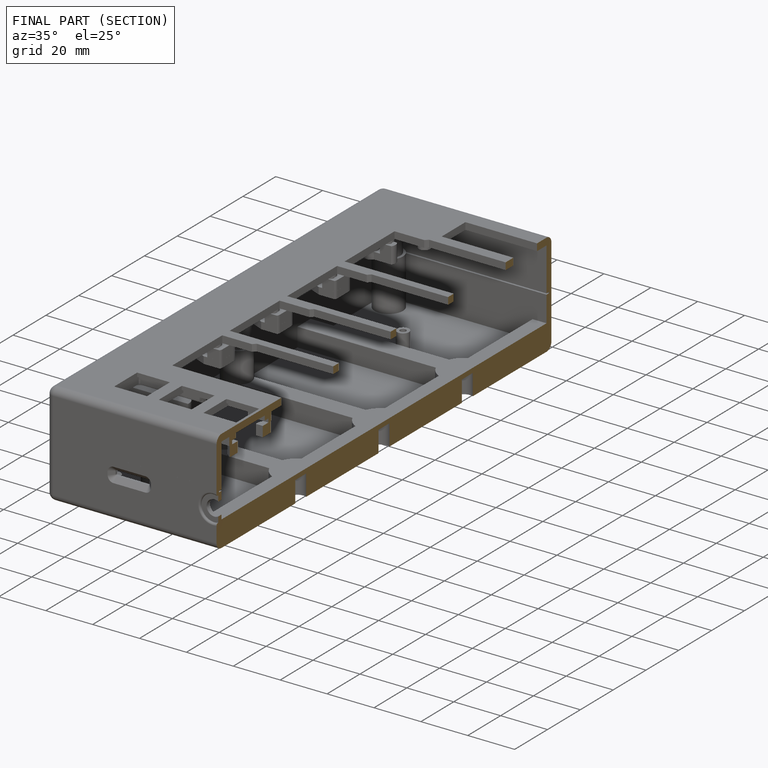
[diagram: finished part — half-section view (interior)]
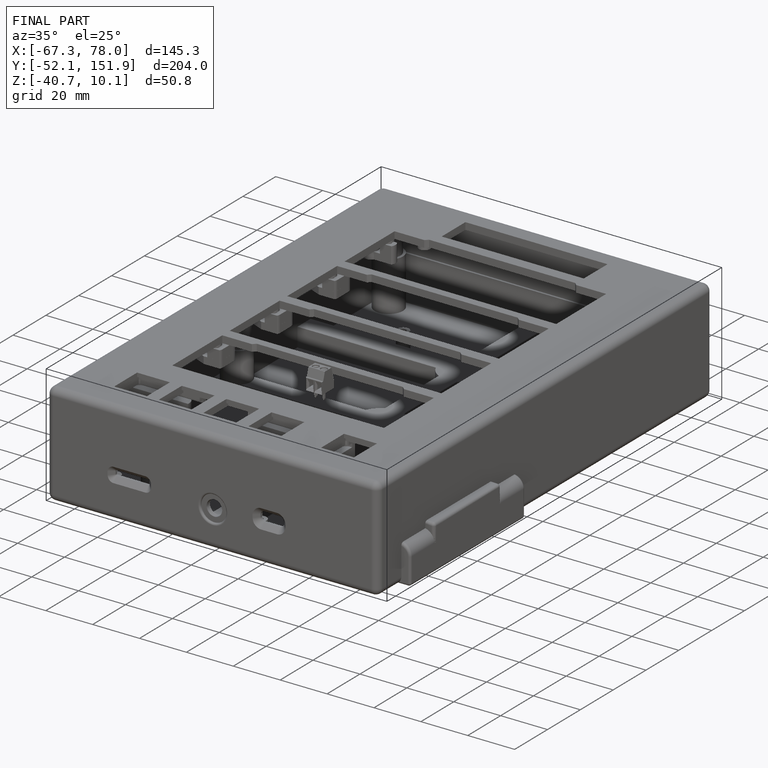
[diagram: finished part — iso view with bounding-box wireframe]
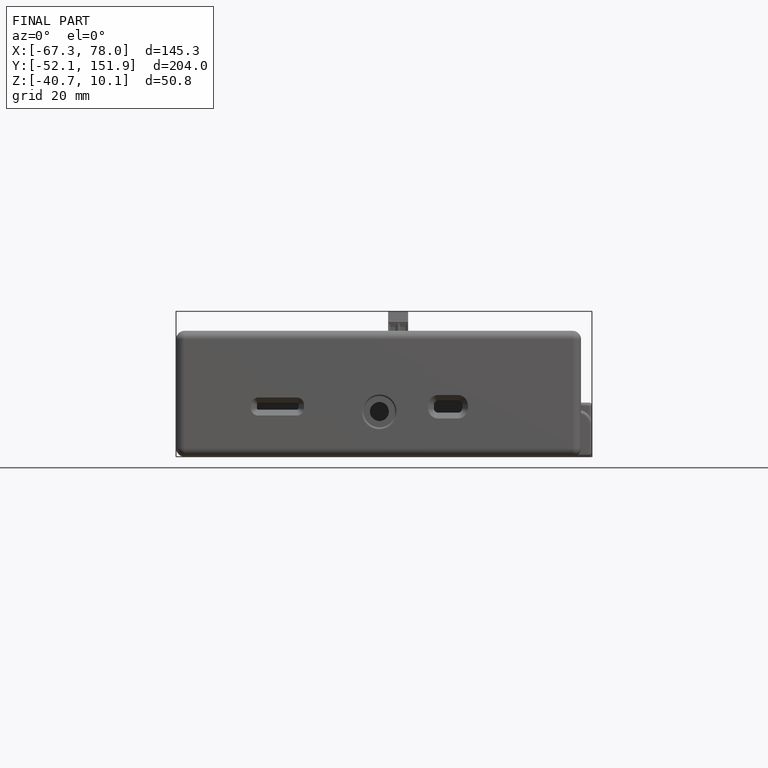
[diagram: finished part — front view with bounding-box wireframe]
